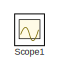
[diagram: root canvas - part 1/7, top left region]
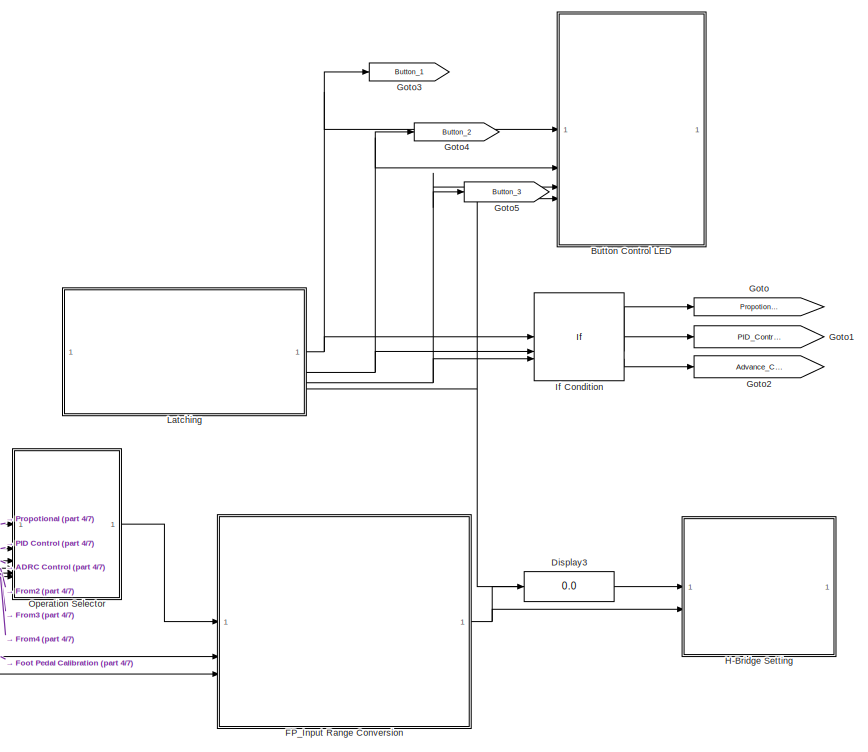
[diagram: root canvas - part 2/7, top center region]
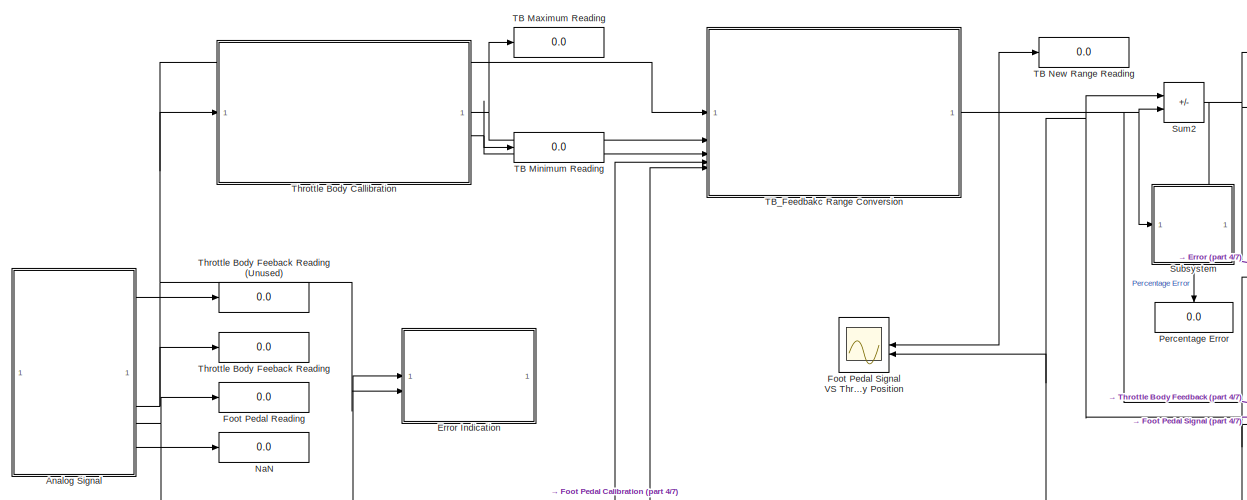
[diagram: root canvas - part 3/7, top left region]
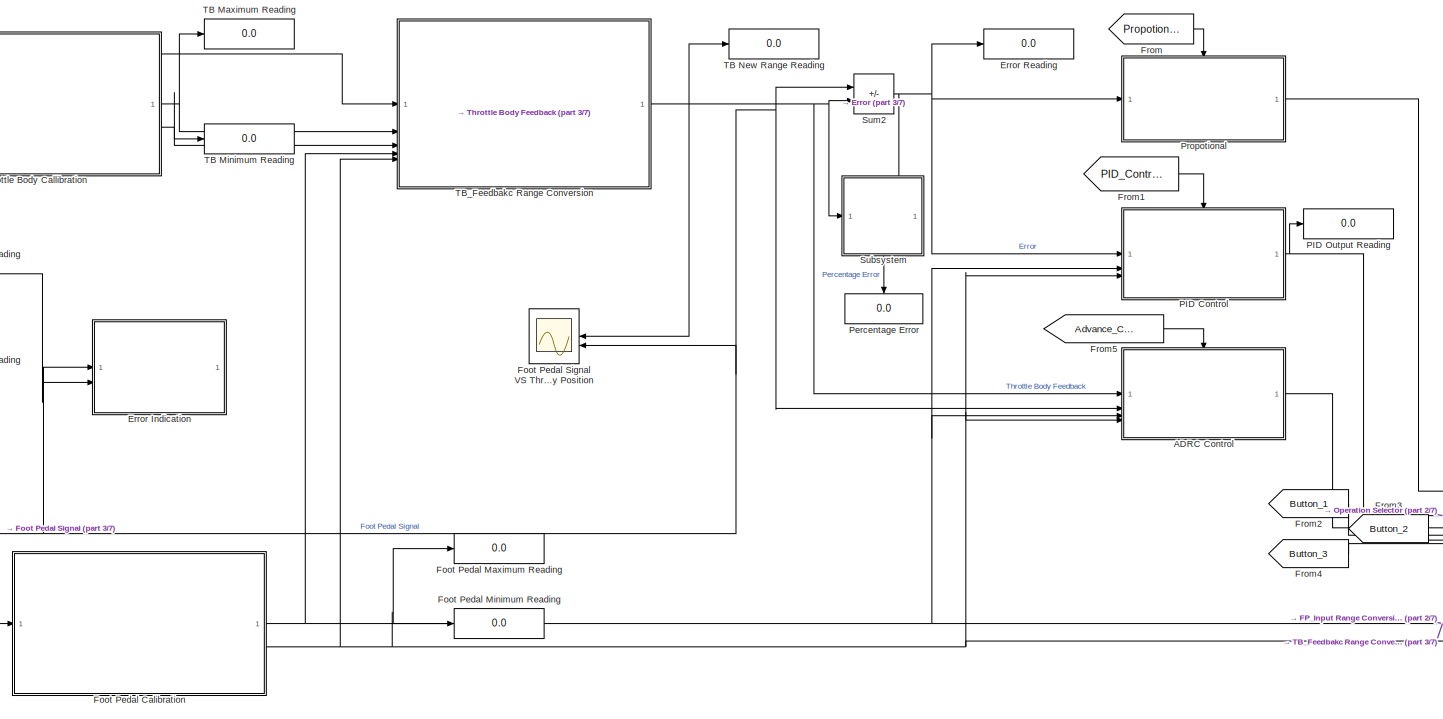
[diagram: root canvas - part 4/7, top center region]
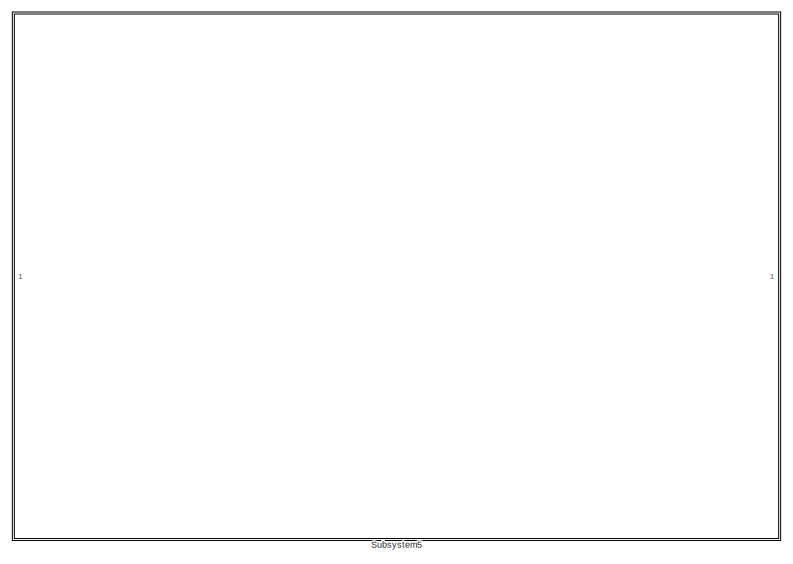
[diagram: root canvas - part 5/7, top right region]
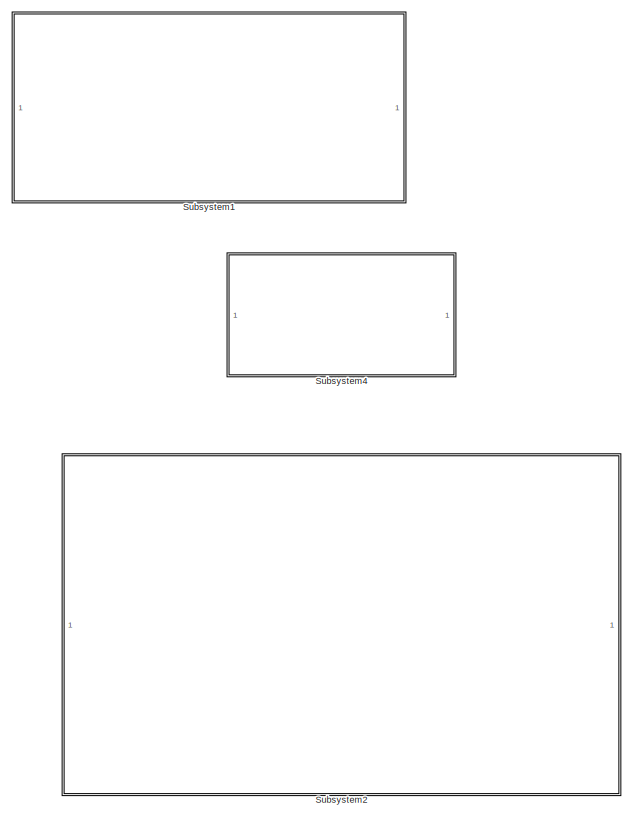
[diagram: root canvas - part 6/7, bottom center region]
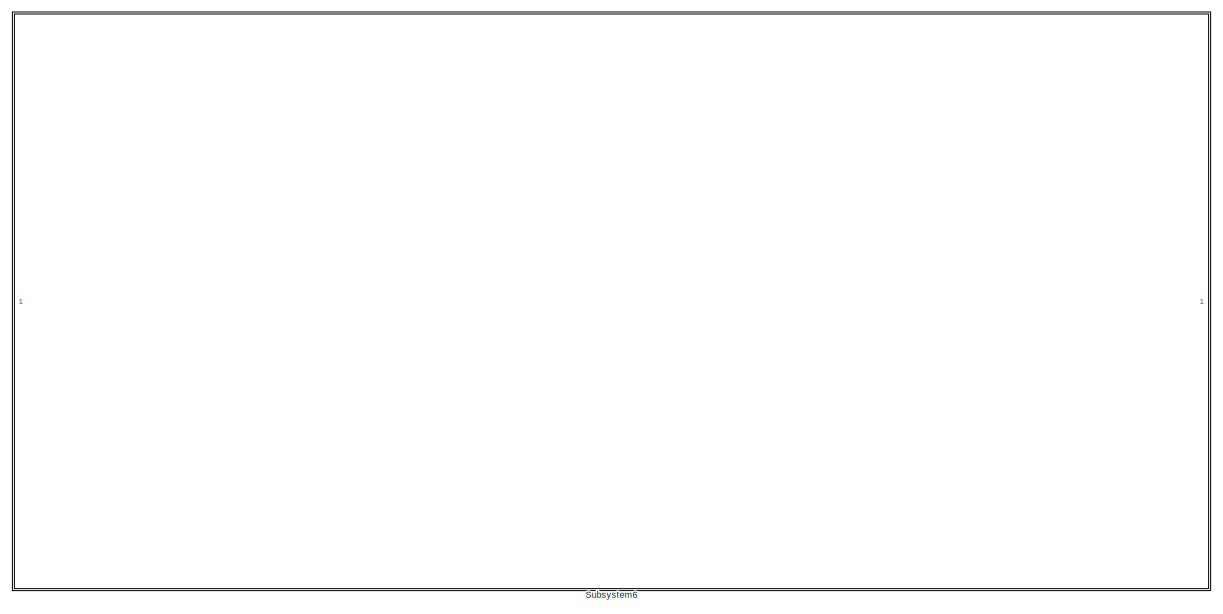
[diagram: root canvas - part 7/7, bottom left region]
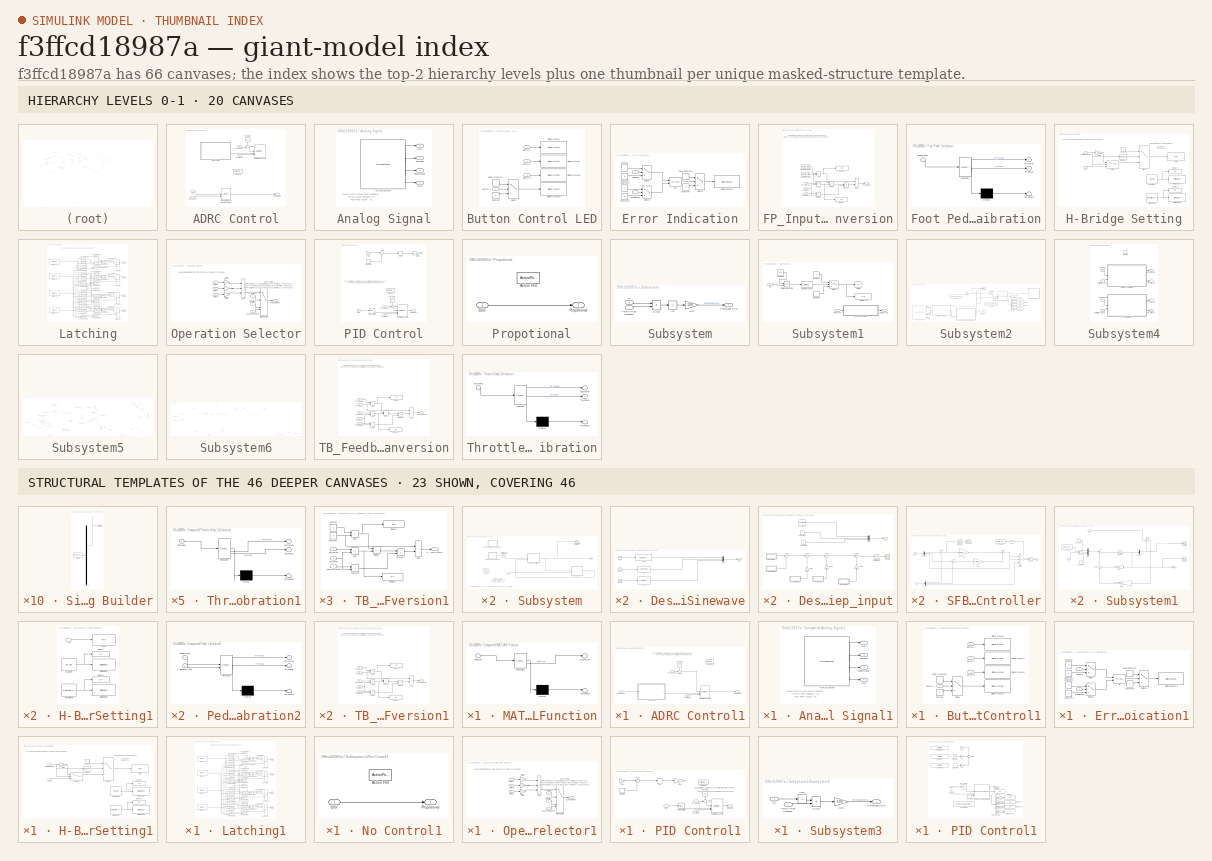
[diagram: thumbnail index - top-2 hierarchy levels (20 canvases) + 23 structural-template representatives of the remaining 46 canvases]
MODEL slx_f3ffcd18987a
KIND model
CONFIG AbsTol = auto
CONFIG EnableMultiTasking = off
CONFIG FixedStep = 0.01
CONFIG MaxStep = auto
CONFIG MinStep = auto
CONFIG RelTol = 1e-5
CONFIG SampleTimeConstraint = Unconstrained
CONFIG SolverName = ode1
CONFIG StartTime = 0.0
CONFIG StopTime = inf
BLOCK [SubSystem] ADRC Control
  Commented = on
BLOCK [Outport] ADRC Control/ADRC Output
BLOCK [ActionPort] ADRC Control/Action Port
  ActionPortLabel = elseif( u3 == 1)
BLOCK [Reference] ADRC Control/Active Disturbance Rejection Control  REF=slctrl_adaptive/Active Disturbance Rejection Control
  Commented = on
  LibrarySourceBlock = slctrlblks/Adaptive Control/Active Disturbance Rejection Control
  SourceBlock = slctrl_adaptive/Active Disturbance Rejection Control
  SourceType = Active Disturbance Rejection Control (ADRC)
BLOCK [Constant] ADRC Control/Constant
  Commented = on
  NameLocation = left
  Value = 0.01
BLOCK [Inport] ADRC Control/FP_maxVal
  Port = 3
BLOCK [Inport] ADRC Control/FP_minVal
  Port = 4
BLOCK [Inport] ADRC Control/Feedback
BLOCK [Inport] ADRC Control/In2
  Port = 2
BLOCK [Reference] ADRC Control/Saturation Dynamic  REF=simulink/Discontinuities/Saturation
Dynamic
  Commented = on
  SourceBlock = simulink/Discontinuities/Saturation\nDynamic
  SourceType = Saturation Dynamic
BLOCK [SubSystem] ADRC Control/Subsystem
  Commented = on
BLOCK [Scope] ADRC Control/Subsystem/Contro_input (Voltages)
  Floating = off
  NumInputPorts = 1
  ScopeSpecificationString = Simulink.scopes.TimeScopeBlockCfg('CurrentConfiguration', extmgr.ConfigurationSet(extmgr.Configuration('Core','General UI',true),extmgr.Configuration('Core','Source UI',true),extmgr.Configuration('Sources','WiredSimulink',true,'DataLogging',true,'DataLoggingVariableName','Scope_V_ADRC','DataLoggingSaveFormat','StructureWithTime','DataLoggingDecimation','1','DataLoggingDecimateData',true),extmgr.Co...<+898ch>
BLOCK [Reference] ADRC Control/Subsystem/Degrees to Radians1  REF=simulink_extras/Transformations/Degrees to
Radians
  SourceBlock = simulink_extras/Transformations/Degrees to\nRadians
  SourceType = DegreesToRadians
BLOCK [SubSystem] ADRC Control/Subsystem/Desired signals_Sinewave
BLOCK [Clock] ADRC Control/Subsystem/Desired signals_Sinewave/Clock
  DisplayTime = on
BLOCK [Clock] ADRC Control/Subsystem/Desired signals_Sinewave/Clock1
BLOCK [Clock] ADRC Control/Subsystem/Desired signals_Sinewave/Clock2
BLOCK [Fcn] ADRC Control/Subsystem/Desired signals_Sinewave/Fcn1
  Expr = 10*sin(2*u)+10+7
BLOCK [Fcn] ADRC Control/Subsystem/Desired signals_Sinewave/Fcn2
  Expr = 10*2*cos(2*u)
BLOCK [Fcn] ADRC Control/Subsystem/Desired signals_Sinewave/Fcn3
  Expr = -10*2*2*sin(2*u)
BLOCK [Mux] ADRC Control/Subsystem/Desired signals_Sinewave/Mux
  DisplayOption = bar
  Inputs = 3
BLOCK [Outport] ADRC Control/Subsystem/Desired signals_Sinewave/xi_d
BLOCK [SubSystem] ADRC Control/Subsystem/Desired_Reference_step_input
BLOCK [Constant] ADRC Control/Subsystem/Desired_Reference_step_input/Constant
  Value = 45*pi/180
BLOCK [Constant] ADRC Control/Subsystem/Desired_Reference_step_input/Constant1
  Value = 0
BLOCK [Constant] ADRC Control/Subsystem/Desired_Reference_step_input/Constant2
  Value = 0
BLOCK [Gain] ADRC Control/Subsystem/Desired_Reference_step_input/Gain
  Gain = -1
  NameLocation = right
BLOCK [Gain] ADRC Control/Subsystem/Desired_Reference_step_input/Gain1
  Gain = -1
  NameLocation = right
BLOCK [Gain] ADRC Control/Subsystem/Desired_Reference_step_input/Gain2
  NameLocation = right
BLOCK [Mux] ADRC Control/Subsystem/Desired_Reference_step_input/Mux
  DisplayOption = bar
  Inputs = 3
BLOCK [Reference] ADRC Control/Subsystem/Desired_Reference_step_input/Radians to Degrees2  REF=simulink_extras/Transformations/Radians
to Degrees
  SourceBlock = simulink_extras/Transformations/Radians\nto Degrees
  SourceType = RadiansToDegrees
BLOCK [Scope] ADRC Control/Subsystem/Desired_Reference_step_input/Scope
  Floating = off
  NumInputPorts = 1
  ScopeSpecificationString = C++SS(StrPVP('Location','[10, 60, 1376, 738]'),StrPVP('Open','off'),MxPVP('AxesTitles',54,'struct(''axes1'',''%<SignalLabel>'')'),MxPVP('ScopeGraphics',57,'struct(''FigureColor'',''[0.5 0.5 0.5]'',''AxesColor'',''[0 0 0]'',''AxesTickColor'',''[1 1 1]'',''LineColors'',''[1 1 0;1 0 1;0 1 1;1 0 0;0 1 0;0 0 1]'',''LineStyles'',''-|-|-|-|-|-'',''LineWidths'',''[0.5 0.5 0.5 0.5 0.5 0.5]'',''MarkerStyles...<+275ch>
BLOCK [SubSystem] ADRC Control/Subsystem/Desired_Reference_step_input/Signal Builder
  ClipboardFcn = sigbuilder_block('clipboard');
  CloseFcn = sigbuilder_block('close');
  ContinueFcn = sigbuilder_block('continue')
  CopyFcn = sigbuilder_block('copy');
  DeleteFcn = sigbuilder_block('delete');
  LoadFcn = sigbuilder_block('load');
  MaskHideContents = on
  ModelCloseFcn = sigbuilder_block('modelClose');
  NameChangeFcn = sigbuilder_block('namechange');
  OpenFcn = sigbuilder_block('open',[437.25 117.75 550.5 394.5 ]);
  PauseFcn = sigbuilder_block('pause')
  PreSaveFcn = sigbuilder_block('preSave');
  StartFcn = sigbuilder_block('start');
  StopFcn = sigbuilder_block('stop');
  Tag = STV Subsys
BLOCK [Demux] ADRC Control/Subsystem/Desired_Reference_step_input/Signal Builder/Demux
  DisplayOption = none
  Outputs = 1
  Tag = STV Demux
BLOCK [FromWorkspace] ADRC Control/Subsystem/Desired_Reference_step_input/Signal Builder/FromWs
  Tag = STV FromWs
  VariableName = tuvar
BLOCK [Outport] ADRC Control/Subsystem/Desired_Reference_step_input/Signal Builder/Signal 1
  Tag = STV Outport
BLOCK [SubSystem] ADRC Control/Subsystem/Desired_Reference_step_input/Signal Builder1
  ClipboardFcn = sigbuilder_block('clipboard');
  CloseFcn = sigbuilder_block('close');
  ContinueFcn = sigbuilder_block('continue')
  CopyFcn = sigbuilder_block('copy');
  DeleteFcn = sigbuilder_block('delete');
  LoadFcn = sigbuilder_block('load');
  MaskHideContents = on
  ModelCloseFcn = sigbuilder_block('modelClose');
  NameChangeFcn = sigbuilder_block('namechange');
  OpenFcn = sigbuilder_block('open',[153 72 550.2 394.8 ]);
  PauseFcn = sigbuilder_block('pause')
  PreSaveFcn = sigbuilder_block('preSave');
  StartFcn = sigbuilder_block('start');
  StopFcn = sigbuilder_block('stop');
  Tag = STV Subsys
BLOCK [Demux] ADRC Control/Subsystem/Desired_Reference_step_input/Signal Builder1/Demux
  DisplayOption = none
  Outputs = 1
  Tag = STV Demux
BLOCK [FromWorkspace] ADRC Control/Subsystem/Desired_Reference_step_input/Signal Builder1/FromWs
  Tag = STV FromWs
  VariableName = tuvar
BLOCK [Outport] ADRC Control/Subsystem/Desired_Reference_step_input/Signal Builder1/Signal 1
  Tag = STV Outport
BLOCK [SubSystem] ADRC Control/Subsystem/Desired_Reference_step_input/Signal Builder2
  ClipboardFcn = sigbuilder_block('clipboard');
  CloseFcn = sigbuilder_block('close');
  ContinueFcn = sigbuilder_block('continue')
  CopyFcn = sigbuilder_block('copy');
  DeleteFcn = sigbuilder_block('delete');
  LoadFcn = sigbuilder_block('load');
  MaskHideContents = on
  ModelCloseFcn = sigbuilder_block('modelClose');
  NameChangeFcn = sigbuilder_block('namechange');
  OpenFcn = sigbuilder_block('open',[437.25 117.75 550.5 394.5 ]);
  PauseFcn = sigbuilder_block('pause')
  PreSaveFcn = sigbuilder_block('preSave');
  StartFcn = sigbuilder_block('start');
  StopFcn = sigbuilder_block('stop');
  Tag = STV Subsys
BLOCK [Demux] ADRC Control/Subsystem/Desired_Reference_step_input/Signal Builder2/Demux
  DisplayOption = none
  Outputs = 1
  Tag = STV Demux
BLOCK [FromWorkspace] ADRC Control/Subsystem/Desired_Reference_step_input/Signal Builder2/FromWs
  Tag = STV FromWs
  VariableName = tuvar
BLOCK [Outport] ADRC Control/Subsystem/Desired_Reference_step_input/Signal Builder2/Signal 1
  Tag = STV Outport
BLOCK [SubSystem] ADRC Control/Subsystem/Desired_Reference_step_input/Signal Builder3
  ClipboardFcn = sigbuilder_block('clipboard');
  CloseFcn = sigbuilder_block('close');
  ContinueFcn = sigbuilder_block('continue')
  CopyFcn = sigbuilder_block('copy');
  DeleteFcn = sigbuilder_block('delete');
  LoadFcn = sigbuilder_block('load');
  MaskHideContents = on
  ModelCloseFcn = sigbuilder_block('modelClose');
  NameChangeFcn = sigbuilder_block('namechange');
  OpenFcn = sigbuilder_block('open',[437.25 117.75 550.5 394.5 ]);
  PauseFcn = sigbuilder_block('pause')
  PreSaveFcn = sigbuilder_block('preSave');
  StartFcn = sigbuilder_block('start');
  StopFcn = sigbuilder_block('stop');
  Tag = STV Subsys
BLOCK [Demux] ADRC Control/Subsystem/Desired_Reference_step_input/Signal Builder3/Demux
  DisplayOption = none
  Outputs = 1
  Tag = STV Demux
BLOCK [FromWorkspace] ADRC Control/Subsystem/Desired_Reference_step_input/Signal Builder3/FromWs
  Tag = STV FromWs
  VariableName = tuvar
BLOCK [Outport] ADRC Control/Subsystem/Desired_Reference_step_input/Signal Builder3/Signal 1
  Tag = STV Outport
BLOCK [SubSystem] ADRC Control/Subsystem/Desired_Reference_step_input/Signal Builder4
  ClipboardFcn = sigbuilder_block('clipboard');
  CloseFcn = sigbuilder_block('close');
  ContinueFcn = sigbuilder_block('continue')
  CopyFcn = sigbuilder_block('copy');
  DeleteFcn = sigbuilder_block('delete');
  LoadFcn = sigbuilder_block('load');
  MaskHideContents = on
  ModelCloseFcn = sigbuilder_block('modelClose');
  NameChangeFcn = sigbuilder_block('namechange');
  OpenFcn = sigbuilder_block('open',[437.25 117.75 550.5 394.5 ]);
  PauseFcn = sigbuilder_block('pause')
  PreSaveFcn = sigbuilder_block('preSave');
  StartFcn = sigbuilder_block('start');
  StopFcn = sigbuilder_block('stop');
  Tag = STV Subsys
BLOCK [Demux] ADRC Control/Subsystem/Desired_Reference_step_input/Signal Builder4/Demux
  DisplayOption = none
  Outputs = 1
  Tag = STV Demux
BLOCK [FromWorkspace] ADRC Control/Subsystem/Desired_Reference_step_input/Signal Builder4/FromWs
  Tag = STV FromWs
  VariableName = tuvar
BLOCK [Outport] ADRC Control/Subsystem/Desired_Reference_step_input/Signal Builder4/Signal 1
  Tag = STV Outport
BLOCK [Sum] ADRC Control/Subsystem/Desired_Reference_step_input/Sum2
  Inputs = |++
BLOCK [Sum] ADRC Control/Subsystem/Desired_Reference_step_input/Sum3
  Inputs = |++
BLOCK [Sum] ADRC Control/Subsystem/Desired_Reference_step_input/Sum4
  Inputs = |++
BLOCK [Sum] ADRC Control/Subsystem/Desired_Reference_step_input/Sum5
  Inputs = |+-
BLOCK [Outport] ADRC Control/Subsystem/Desired_Reference_step_input/xi_d
BLOCK [SubSystem] ADRC Control/Subsystem/SFBC_Controller
BLOCK [Constant] ADRC Control/Subsystem/SFBC_Controller/Constant2
  Value = roa/J_aet
BLOCK [Demux] ADRC Control/Subsystem/SFBC_Controller/Demux
  Outputs = 3
BLOCK [Demux] ADRC Control/Subsystem/SFBC_Controller/Demux1
  Outputs = 3
BLOCK [Fcn] ADRC Control/Subsystem/SFBC_Controller/Fcn
  Expr = 1/u
BLOCK [Gain] ADRC Control/Subsystem/SFBC_Controller/Gain
  Gain = (omga_c)^2
BLOCK [Gain] ADRC Control/Subsystem/SFBC_Controller/Gain1
  Gain = (2*(omga_c))
BLOCK [Product] ADRC Control/Subsystem/SFBC_Controller/Product
  RndMeth = Zero
BLOCK [Reference] ADRC Control/Subsystem/SFBC_Controller/Radians to Degrees4  REF=simulink_extras/Transformations/Radians
to Degrees
  NameLocation = top
  SourceBlock = simulink_extras/Transformations/Radians\nto Degrees
  SourceType = RadiansToDegrees
BLOCK [Sum] ADRC Control/Subsystem/SFBC_Controller/Sum1
  Inputs = |++
BLOCK [Sum] ADRC Control/Subsystem/SFBC_Controller/Sum2
  IconShape = rectangular
  Inputs = |++-
BLOCK [Sum] ADRC Control/Subsystem/SFBC_Controller/Sum3
  Inputs = |+-
BLOCK [Sum] ADRC Control/Subsystem/SFBC_Controller/Sum4
  Inputs = |+-
BLOCK [Scope] ADRC Control/Subsystem/SFBC_Controller/Tracking erro
  Floating = off
  NumInputPorts = 1
  ScopeSpecificationString = C++SS(StrPVP('Location','[188, 390, 512, 629]'),StrPVP('Open','off'),MxPVP('AxesTitles',54,'struct(''axes1'',''%<SignalLabel>'')'),MxPVP('ScopeGraphics',57,'struct(''FigureColor'',''[0.5 0.5 0.5]'',''AxesColor'',''[0 0 0]'',''AxesTickColor'',''[1 1 1]'',''LineColors'',''[1 1 0;1 0 1;0 1 1;1 0 0;0 1 0;0 0 1]'',''LineStyles'',''-|-|-|-|-|-'',''LineWidths'',''[0.5 0.5 0.5 0.5 0.5 0.5]'',''MarkerStyle...<+277ch>
BLOCK [Outport] ADRC Control/Subsystem/SFBC_Controller/V(t)
BLOCK [Inport] ADRC Control/Subsystem/SFBC_Controller/Xd_i
BLOCK [Inport] ADRC Control/Subsystem/SFBC_Controller/Xi^
  Port = 2
BLOCK [SubSystem] ADRC Control/Subsystem/Subsystem1
  NameLocation = top
BLOCK [Constant] ADRC Control/Subsystem/Subsystem1/Constant
  Value = 0
BLOCK [Constant] ADRC Control/Subsystem/Subsystem1/Constant1
  Value = 0
BLOCK [Constant] ADRC Control/Subsystem/Subsystem1/Constant2
  Value = roa/J_aet
BLOCK [Demux] ADRC Control/Subsystem/Subsystem1/Demux
  Outputs = 3
BLOCK [Gain] ADRC Control/Subsystem/Subsystem1/Gain
  Gain = [0 1 0;0 0 1;0 0 0]
  Multiplication = Matrix(K*u)
  NameLocation = top
BLOCK [Gain] ADRC Control/Subsystem/Subsystem1/Gain2
  Gain = [Beta1 Beta2 Beta3]'
  NameLocation = top
BLOCK [Integrator] ADRC Control/Subsystem/Subsystem1/Integrator1
  InitialCondition = [12*pi/180 0 0]'
BLOCK [Mux] ADRC Control/Subsystem/Subsystem1/Mux
  DisplayOption = bar
  Inputs = 3
BLOCK [Product] ADRC Control/Subsystem/Subsystem1/Product
  RndMeth = Zero
BLOCK [Scope] ADRC Control/Subsystem/Subsystem1/Scope
  Floating = off
  NumInputPorts = 1
  ScopeSpecificationString = C++SS(StrPVP('Location','[188, 390, 512, 629]'),StrPVP('Open','off'),MxPVP('AxesTitles',54,'struct(''axes1'',''%<SignalLabel>'')'),StrPVP('SaveName','ScopeData3'),StrPVP('DataFormat','StructureWithTime'),StrPVP('BlockParamSampleTime','0'),StrPVP('LimitDataPoints','on'),StrPVP('Decimation','1'),StrPVP('BlockParamSampleInput','off'))
BLOCK [Scope] ADRC Control/Subsystem/Subsystem1/Scope1
  Floating = off
  NumInputPorts = 1
  ScopeSpecificationString = C++SS(StrPVP('Location','[188, 390, 512, 629]'),StrPVP('Open','off'),MxPVP('AxesTitles',54,'struct(''axes1'',''%<SignalLabel>'')'),MxPVP('ScopeGraphics',57,'struct(''FigureColor'',''[0.5 0.5 0.5]'',''AxesColor'',''[0 0 0]'',''AxesTickColor'',''[1 1 1]'',''LineColors'',''[1 1 0;1 0 1;0 1 1;1 0 0;0 1 0;0 0 1]'',''LineStyles'',''-|-|-|-|-|-'',''LineWidths'',''[0.5 0.5 0.5 0.5 0.5 0.5]'',''MarkerStyle...<+243ch>
BLOCK [Sum] ADRC Control/Subsystem/Subsystem1/Sum
  Inputs = |++
BLOCK [Sum] ADRC Control/Subsystem/Subsystem1/Sum1
  Inputs = |++
  NameLocation = right
BLOCK [Sum] ADRC Control/Subsystem/Subsystem1/Sum2
  Inputs = |+-
BLOCK [Inport] ADRC Control/Subsystem/Subsystem1/U(t)
BLOCK [Inport] ADRC Control/Subsystem/Subsystem1/X1(t)
  Port = 2
BLOCK [Outport] ADRC Control/Subsystem/Subsystem1/Xi^
BLOCK [Outport] ADRC Control/Subsystem/V(t)
BLOCK [Inport] ADRC Control/Subsystem/X1(t)
BLOCK [Sum] ADRC Control/Sum1
  Commented = on
  Inputs = ++|
BLOCK [SubSystem] Analog Signal
BLOCK [MATLABSystem] Analog Signal/MATLAB System
  MaskDisplay = color('white');plot([100,100,100,100]*1,[100,100,100,100]*1);plot([100,100,100,100]*0,[100,100,100,100]*0);color('blue');text(38, 92, 'IO Device Builder','horizontalAlignment', 'right');\ncolor('black');text(52,50,' ADS1115_Vread','horizontalAlignment','center');\nport_label('output',1,'V0');port_label('output',2,'V1');port_label('output',3,'V2');port_label('output',4,'V3');  <repeated x4 — deduplicated; at blocks: MATLAB System, MATLAB System1, MATLAB System2>
  MaskType = ADS1115_Vread
  SampleTime = -1
  SetGain = int16( 16 )
  System = ADS1115_Vread
BLOCK [Outport] Analog Signal/Out1
BLOCK [Outport] Analog Signal/Out4
  Port = 4
BLOCK [Outport] Analog Signal/PedalRange
  Port = 3
BLOCK [Outport] Analog Signal/TBRange
  Port = 2
BLOCK [SubSystem] Button Control LED
BLOCK [Inport] Button Control LED/Bottun 2
  Port = 2
BLOCK [Inport] Button Control LED/Button 1
BLOCK [Inport] Button Control LED/Button 3
  Port = 3
BLOCK [Inport] Button Control LED/Button 4
  Port = 4
BLOCK [Constant] Button Control LED/Constant
  Value = 0
BLOCK [Reference] Button Control LED/Digital Output  REF=arduinolib/Digital Output
  SourceBlock = arduinolib/Digital Output
  SourceType = Arduino Digital Output
BLOCK [Reference] Button Control LED/Digital Output1  REF=arduinolib/Digital Output
  SourceBlock = arduinolib/Digital Output
  SourceType = Arduino Digital Output
BLOCK [Reference] Button Control LED/Digital Output2  REF=arduinolib/Digital Output
  SourceBlock = arduinolib/Digital Output
  SourceType = Arduino Digital Output
BLOCK [Reference] Button Control LED/Digital Output3  REF=arduinolib/Digital Output
  SourceBlock = arduinolib/Digital Output
  SourceType = Arduino Digital Output
BLOCK [DiscretePulseGenerator] Button Control LED/Pulse Generator
  Period = 0.5
  PulseType = Time based
  PulseWidth = 50
BLOCK [Switch] Button Control LED/Switch
  Criteria = u2 ~= 0
  InputSameDT = off
  SaturateOnIntegerOverflow = off
BLOCK [Display] Display3
  Decimation = 2
BLOCK [SubSystem] Error Indication
  PortSchema = {"entries":[{"content":{"sides":[{"content":{},"type":"ConnectorPlacement.EquallySpacedRectSide","uuid":"6bb27259-0fc4-412b-bd28-187413250838"},{"content":{"connectorIds":["In1","In2"],"side":"RIGHT"},"type":"ConnectorPlacement.EquallySpacedRectSide","uuid":"b38a583a-7cdb-4b72-8a0e-445370b0f03f"},{"content":{"side":"TOP"},"type":"ConnectorPlacement.EquallySpacedRectSide","uuid":"477ad40e-8e68-4653...<+205ch>
BLOCK [Constant] Error Indication/Constant
BLOCK [Constant] Error Indication/Constant1
  Value = 0
BLOCK [Constant] Error Indication/Constant2
BLOCK [Constant] Error Indication/Constant3
  Value = 0
BLOCK [Constant] Error Indication/Constant4
  Value = 0
BLOCK [Reference] Error Indication/Digital Output4  REF=arduinolib/Digital Output
  SourceBlock = arduinolib/Digital Output
  SourceType = Arduino Digital Output
BLOCK [Logic] Error Indication/OR
  AllPortsSameDT = off
  IconShape = distinctive
  Operator = NAND
  OutDataTypeStr = boolean
BLOCK [Inport] Error Indication/PedalRange
BLOCK [DiscretePulseGenerator] Error Indication/Pulse Generator
  Period = 0.1
  PulseType = Time based
  PulseWidth = 50
BLOCK [Switch] Error Indication/Switch
  Criteria = u2 > Threshold
  InputSameDT = off
  SaturateOnIntegerOverflow = off
BLOCK [Switch] Error Indication/Switch2
  Criteria = u2 > Threshold
  InputSameDT = off
  SaturateOnIntegerOverflow = off
BLOCK [Switch] Error Indication/Switch3
  Criteria = u2 > Threshold
  InputSameDT = off
  SaturateOnIntegerOverflow = off
BLOCK [Inport] Error Indication/TBRange
  Port = 2
BLOCK [Display] Error Reading
  Decimation = 2
BLOCK [SubSystem] FP_Input Range Conversion
BLOCK [Outport] FP_Input Range Conversion/0 - 255 Output
BLOCK [Sum] FP_Input Range Conversion/Add2
  IconShape = rectangular
  Inputs = +-
BLOCK [Sum] FP_Input Range Conversion/Add3
  IconShape = rectangular
  Inputs = +-
BLOCK [Inport] FP_Input Range Conversion/Control Output
BLOCK [Constant] FP_Input Range Conversion/Desire Max Value
  Value = Desire_Max
BLOCK [Constant] FP_Input Range Conversion/Desire Min Value
  Value = Desire_Min
BLOCK [Display] FP_Input Range Conversion/Display1
  Decimation = 1
BLOCK [Display] FP_Input Range Conversion/Display3
  Decimation = 1
BLOCK [Product] FP_Input Range Conversion/Divide1
  Inputs = */
BLOCK [Inport] FP_Input Range Conversion/FP_maxVal
  Port = 2
BLOCK [Inport] FP_Input Range Conversion/FP_minVal
  Port = 3
BLOCK [Product] FP_Input Range Conversion/Product1
BLOCK [Sum] FP_Input Range Conversion/Subtract
  IconShape = rectangular
  Inputs = +-
BLOCK [Sum] FP_Input Range Conversion/Sum
  IconShape = rectangular
BLOCK [SubSystem] Foot Pedal Calibration
  ErrorFcn = Stateflow.Translate.translate
  PermitHierarchicalResolution = ExplicitOnly
  SFBlockType = MATLAB Function
  TreatAsAtomicUnit = on
BLOCK [Demux] Foot Pedal Calibration/ Demux 
  Outputs = 1
BLOCK [S-Function] Foot Pedal Calibration/ SFunction 
  EnableBusSupport = on
  FunctionName = sf_sfun
  PortCounts = [1 3]
  SFcnIsStateOwnerBlock = off
  SFunctionDeploymentMode = off
  Tag = Stateflow S-Function 9
BLOCK [Terminator] Foot Pedal Calibration/ Terminator 
BLOCK [Outport] Foot Pedal Calibration/FP_maxVal
BLOCK [Outport] Foot Pedal Calibration/FP_minVal
  Port = 2
BLOCK [Inport] Foot Pedal Calibration/PedalRange
BLOCK [Display] Foot Pedal Maximum Reading
  Decimation = 2
BLOCK [Display] Foot Pedal Minimum Reading
  Decimation = 2
BLOCK [Display] Foot Pedal Reading
  Decimation = 2
BLOCK [Scope] Foot Pedal Signal VS Throttle Body Position
  Floating = off
  NameLocation = top
  NumInputPorts = 2
  ScopeSpecificationString = Simulink.scopes.TimeScopeBlockCfg('CurrentConfiguration', extmgr.ConfigurationSet(extmgr.Configuration('Core','General UI',true),extmgr.Configuration('Core','Source UI',true),extmgr.Configuration('Sources','WiredSimulink',true,'DataLoggingVariableName','ScopeData1'),extmgr.Configuration('Visuals','Time Domain',true,'SerializedDisplays',{struct('MinYLimReal','0.01441','MaxYLimReal','0.23215','YLabe...<+1911ch>
BLOCK [From] From
  GotoTag = Propotional
BLOCK [From] From1
  GotoTag = PID_Control
BLOCK [From] From2
  GotoTag = Button_1
BLOCK [From] From3
  GotoTag = Button_2
BLOCK [From] From4
  GotoTag = Button_3
BLOCK [From] From5
  GotoTag = Advance_Control
BLOCK [Goto] Goto
  GotoTag = Propotional
BLOCK [Goto] Goto1
  GotoTag = PID_Control
BLOCK [Goto] Goto2
  GotoTag = Advance_Control
BLOCK [Goto] Goto3
  GotoTag = Button_1
BLOCK [Goto] Goto4
  GotoTag = Button_2
BLOCK [Goto] Goto5
  GotoTag = Button_3
BLOCK [SubSystem] H-Bridge Setting
BLOCK [Inport] H-Bridge Setting/0 - 255
  Port = 2
BLOCK [Inport] H-Bridge Setting/Calibration Mode
BLOCK [Constant] H-Bridge Setting/Constant
  Value = 0
BLOCK [Reference] H-Bridge Setting/Digital Output  REF=arduinolib/Digital Output
  SourceBlock = arduinolib/Digital Output
  SourceType = Arduino Digital Output
BLOCK [Reference] H-Bridge Setting/Digital Output1  REF=arduinolib/Digital Output
  SourceBlock = arduinolib/Digital Output
  SourceType = Arduino Digital Output
BLOCK [Constant] H-Bridge Setting/Direction Pin
  Value = Direction_Pin
BLOCK [Display] H-Bridge Setting/Display3
  Decimation = 1
BLOCK [Display] H-Bridge Setting/Display4
  Decimation = 1
BLOCK [Constant] H-Bridge Setting/Enable Pin
  Value = EN_Pin
BLOCK [Gain] H-Bridge Setting/Gain
  Gain = 100
BLOCK [Reference] H-Bridge Setting/On Delay  REF=spsOnDelayLib/On Delay
  LibrarySourceBlock = sps_lib/Control/On Delay
  SourceBlock = spsOnDelayLib/On Delay
  SourceType = On/Off Delay
BLOCK [Reference] H-Bridge Setting/PWM  REF=arduinolib/PWM
  SourceBlock = arduinolib/PWM
  SourceType = Arduino PWM
BLOCK [Switch] H-Bridge Setting/Switch1
  Criteria = u2 ~= 0
  InputSameDT = off
  SaturateOnIntegerOverflow = off
BLOCK [Switch] H-Bridge Setting/Switch2
  Criteria = u2 ~= 0
  InputSameDT = off
  SaturateOnIntegerOverflow = off
BLOCK [If] If Condition
  ElseIfExpressions = u2 == 1, u3 == 1
  IfExpression = u1 == 1
  NumInputs = 3
  ShowElse = off
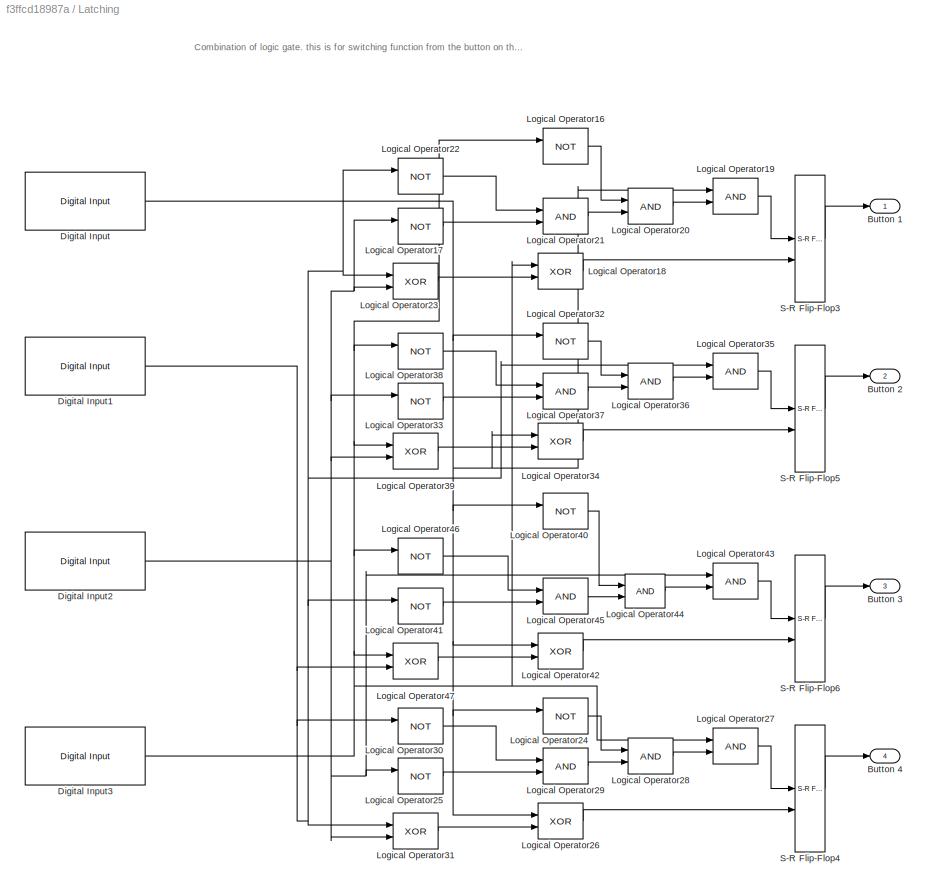
BLOCK [SubSystem] Latching
BLOCK [Outport] Latching/Button 1
BLOCK [Outport] Latching/Button 2
  Port = 2
BLOCK [Outport] Latching/Button 3
  Port = 3
BLOCK [Outport] Latching/Button 4
  Port = 4
BLOCK [Reference] Latching/Digital Input  REF=arduinolib/Digital Input
  SourceBlock = arduinolib/Digital Input
  SourceType = Arduino Digital Input
BLOCK [Reference] Latching/Digital Input1  REF=arduinolib/Digital Input
  SourceBlock = arduinolib/Digital Input
  SourceType = Arduino Digital Input
BLOCK [Reference] Latching/Digital Input2  REF=arduinolib/Digital Input
  SourceBlock = arduinolib/Digital Input
  SourceType = Arduino Digital Input
BLOCK [Reference] Latching/Digital Input3  REF=arduinolib/Digital Input
  SourceBlock = arduinolib/Digital Input
  SourceType = Arduino Digital Input
BLOCK [Logic] Latching/Logical Operator16
  AllPortsSameDT = off
  IconShape = distinctive
  Operator = NOT
  OutDataTypeStr = boolean
BLOCK [Logic] Latching/Logical Operator17
  AllPortsSameDT = off
  IconShape = distinctive
  Operator = NOT
  OutDataTypeStr = boolean
BLOCK [Logic] Latching/Logical Operator18
  AllPortsSameDT = off
  IconShape = distinctive
  Operator = XOR
  OutDataTypeStr = boolean
BLOCK [Logic] Latching/Logical Operator19
  AllPortsSameDT = off
  IconShape = distinctive
  OutDataTypeStr = boolean
BLOCK [Logic] Latching/Logical Operator20
  AllPortsSameDT = off
  IconShape = distinctive
  OutDataTypeStr = boolean
BLOCK [Logic] Latching/Logical Operator21
  AllPortsSameDT = off
  IconShape = distinctive
  OutDataTypeStr = boolean
BLOCK [Logic] Latching/Logical Operator22
  AllPortsSameDT = off
  IconShape = distinctive
  Operator = NOT
  OutDataTypeStr = boolean
BLOCK [Logic] Latching/Logical Operator23
  AllPortsSameDT = off
  IconShape = distinctive
  Operator = XOR
  OutDataTypeStr = boolean
BLOCK [Logic] Latching/Logical Operator24
  AllPortsSameDT = off
  IconShape = distinctive
  Operator = NOT
  OutDataTypeStr = boolean
BLOCK [Logic] Latching/Logical Operator25
  AllPortsSameDT = off
  IconShape = distinctive
  Operator = NOT
  OutDataTypeStr = boolean
BLOCK [Logic] Latching/Logical Operator26
  AllPortsSameDT = off
  IconShape = distinctive
  Operator = XOR
  OutDataTypeStr = boolean
BLOCK [Logic] Latching/Logical Operator27
  AllPortsSameDT = off
  IconShape = distinctive
  OutDataTypeStr = boolean
BLOCK [Logic] Latching/Logical Operator28
  AllPortsSameDT = off
  IconShape = distinctive
  OutDataTypeStr = boolean
BLOCK [Logic] Latching/Logical Operator29
  AllPortsSameDT = off
  IconShape = distinctive
  OutDataTypeStr = boolean
BLOCK [Logic] Latching/Logical Operator30
  AllPortsSameDT = off
  IconShape = distinctive
  Operator = NOT
  OutDataTypeStr = boolean
BLOCK [Logic] Latching/Logical Operator31
  AllPortsSameDT = off
  IconShape = distinctive
  Operator = XOR
  OutDataTypeStr = boolean
BLOCK [Logic] Latching/Logical Operator32
  AllPortsSameDT = off
  IconShape = distinctive
  Operator = NOT
  OutDataTypeStr = boolean
BLOCK [Logic] Latching/Logical Operator33
  AllPortsSameDT = off
  IconShape = distinctive
  Operator = NOT
  OutDataTypeStr = boolean
BLOCK [Logic] Latching/Logical Operator34
  AllPortsSameDT = off
  IconShape = distinctive
  Operator = XOR
  OutDataTypeStr = boolean
BLOCK [Logic] Latching/Logical Operator35
  AllPortsSameDT = off
  IconShape = distinctive
  OutDataTypeStr = boolean
BLOCK [Logic] Latching/Logical Operator36
  AllPortsSameDT = off
  IconShape = distinctive
  OutDataTypeStr = boolean
BLOCK [Logic] Latching/Logical Operator37
  AllPortsSameDT = off
  IconShape = distinctive
  OutDataTypeStr = boolean
BLOCK [Logic] Latching/Logical Operator38
  AllPortsSameDT = off
  IconShape = distinctive
  Operator = NOT
  OutDataTypeStr = boolean
BLOCK [Logic] Latching/Logical Operator39
  AllPortsSameDT = off
  IconShape = distinctive
  Operator = XOR
  OutDataTypeStr = boolean
BLOCK [Logic] Latching/Logical Operator40
  AllPortsSameDT = off
  IconShape = distinctive
  Operator = NOT
  OutDataTypeStr = boolean
BLOCK [Logic] Latching/Logical Operator41
  AllPortsSameDT = off
  IconShape = distinctive
  Operator = NOT
  OutDataTypeStr = boolean
BLOCK [Logic] Latching/Logical Operator42
  AllPortsSameDT = off
  IconShape = distinctive
  Operator = XOR
  OutDataTypeStr = boolean
BLOCK [Logic] Latching/Logical Operator43
  AllPortsSameDT = off
  IconShape = distinctive
  OutDataTypeStr = boolean
BLOCK [Logic] Latching/Logical Operator44
  AllPortsSameDT = off
  IconShape = distinctive
  OutDataTypeStr = boolean
BLOCK [Logic] Latching/Logical Operator45
  AllPortsSameDT = off
  IconShape = distinctive
  OutDataTypeStr = boolean
BLOCK [Logic] Latching/Logical Operator46
  AllPortsSameDT = off
  IconShape = distinctive
  Operator = NOT
  OutDataTypeStr = boolean
BLOCK [Logic] Latching/Logical Operator47
  AllPortsSameDT = off
  IconShape = distinctive
  Operator = XOR
  OutDataTypeStr = boolean
BLOCK [Reference] Latching/S-R Flip-Flop3  REF=simulink_extras/Flip Flops/S-R
Flip-Flop
  SourceBlock = simulink_extras/Flip Flops/S-R\nFlip-Flop
  SourceType = SRFlipFlop
BLOCK [Reference] Latching/S-R Flip-Flop4  REF=simulink_extras/Flip Flops/S-R
Flip-Flop
  SourceBlock = simulink_extras/Flip Flops/S-R\nFlip-Flop
  SourceType = SRFlipFlop
BLOCK [Reference] Latching/S-R Flip-Flop5  REF=simulink_extras/Flip Flops/S-R
Flip-Flop
  SourceBlock = simulink_extras/Flip Flops/S-R\nFlip-Flop
  SourceType = SRFlipFlop
BLOCK [Reference] Latching/S-R Flip-Flop6  REF=simulink_extras/Flip Flops/S-R
Flip-Flop
  SourceBlock = simulink_extras/Flip Flops/S-R\nFlip-Flop
  SourceType = SRFlipFlop
BLOCK [Display] NaN
  Decimation = 2
BLOCK [SubSystem] Operation Selector
BLOCK [Sum] Operation Selector/Add
  IconShape = rectangular
  Inputs = +++
BLOCK [Inport] Operation Selector/Advanced Control
  Port = 3
BLOCK [Outport] Operation Selector/Control Output
BLOCK [Gain] Operation Selector/Multiply
BLOCK [Gain] Operation Selector/Multiply1
  Gain = 2
BLOCK [Gain] Operation Selector/Multiply2
  Gain = 3
BLOCK [MultiPortSwitch] Operation Selector/Multiport Switch
  DiagnosticForDefault = None
  InputSameDT = off
  SaturateOnIntegerOverflow = off
BLOCK [Inport] Operation Selector/PID Output
  Port = 2
BLOCK [Inport] Operation Selector/Propotional
BLOCK [Inport] Operation Selector/Switch 1
  Port = 4
BLOCK [Inport] Operation Selector/Switch 2
  Port = 5
BLOCK [Inport] Operation Selector/Switch 3
  Port = 6
BLOCK [SubSystem] PID Control
BLOCK [ActionPort] PID Control/Action Port
  ActionPortLabel = elseif(u2 == 1)
BLOCK [Constant] PID Control/Constant
  NameLocation = left
  Value = 0.01
BLOCK [Derivative] PID Control/Derivative
  Commented = on
BLOCK [Inport] PID Control/Error
BLOCK [Inport] PID Control/FP_maxVal
  Port = 2
BLOCK [Inport] PID Control/FP_minVal
  Port = 3
BLOCK [Gain] PID Control/Gain
  Commented = on
  Gain = 5
BLOCK [Gain] PID Control/Gain1
  Commented = on
  Gain = 0.1
BLOCK [Reference] PID Control/PID Controller1  REF=slpidlib/PID Controller
  LibrarySourceBlock = simulink/Continuous/PID Controller
  SourceBlock = slpidlib/PID Controller
  SourceType = PID 1dof
BLOCK [Outport] PID Control/PID Output
BLOCK [Reference] PID Control/Saturation Dynamic  REF=simulink/Discontinuities/Saturation
Dynamic
  SourceBlock = simulink/Discontinuities/Saturation\nDynamic
  SourceType = Saturation Dynamic
BLOCK [Signum] PID Control/Sign
  Commented = on
BLOCK [Sum] PID Control/Sum
  Commented = on
  Inputs = |++
BLOCK [Sum] PID Control/Sum1
  Inputs = ++|
BLOCK [Display] PID Output Reading
  Decimation = 2
BLOCK [Display] Percentage Error
  Decimation = 2
BLOCK [SubSystem] Propotional
  TreatAsAtomicUnit = on
BLOCK [ActionPort] Propotional/Action Port
  ActionPortLabel = if(u1 == 1)
BLOCK [Inport] Propotional/Error
BLOCK [Outport] Propotional/Propotional
BLOCK [Scope] Scope1
  Floating = off
  IOType = viewer
  NumInputPorts = 1
  ScopeSpecificationString = Simulink.scopes.TimeScopeBlockCfg('CurrentConfiguration', extmgr.ConfigurationSet(extmgr.Configuration('Core','General UI',true),extmgr.Configuration('Core','Source UI',true),extmgr.Configuration('Sources','WiredSimulink',true,'DataLoggingVariableName','ScopeData2'),extmgr.Configuration('Visuals','Time Domain',true,'SerializedDisplays',{struct('MinYLimReal','-10','MaxYLimReal','10','YLabelReal',''...<+877ch>
BLOCK [SubSystem] Subsystem
  PortSchema = {"entries":[{"content":{"sides":[{"content":{},"type":"ConnectorPlacement.EquallySpacedRectSide","uuid":"06ab9b8c-dc11-4e78-9aea-2a49b899d383"},{"content":{"side":"RIGHT"},"type":"ConnectorPlacement.EquallySpacedRectSide","uuid":"ea81575a-6f3e-44ea-98d6-a15110b05ea2"},{"content":{"connectorIds":["In1","In2"],"side":"TOP"},"type":"ConnectorPlacement.EquallySpacedRectSide","uuid":"b4582e74-93d2-4cba...<+355ch>
BLOCK [Abs] Subsystem/Abs
  SaturateOnIntegerOverflow = off
BLOCK [Product] Subsystem/Divide
  Inputs = */
BLOCK [Gain] Subsystem/Gain
  Gain = 100
BLOCK [Inport] Subsystem/In1
  Port = 2
BLOCK [Outport] Subsystem/Percentage Error
  NameLocation = top
BLOCK [Inport] Subsystem/Throttle Body Feedback
BLOCK [SubSystem] Subsystem1
  Commented = on
BLOCK [Constant] Subsystem1/Constant
  Value = 0
BLOCK [Constant] Subsystem1/Constant1
BLOCK [Constant] Subsystem1/Constant2
  Value = 0.02
BLOCK [Outport] Subsystem1/Desire_Val
BLOCK [Reference] Subsystem1/Detect Increase1  REF=simulink/Logic and Bit
Operations/Detect
Increase
  SourceBlock = simulink/Logic and Bit\nOperations/Detect\nIncrease
  SourceType = Detect Increase
BLOCK [Display] Subsystem1/Display13
  Decimation = 2
BLOCK [Goto] Subsystem1/Goto5
  GotoTag = try
BLOCK [Inport] Subsystem1/In1
BLOCK [SubSystem] Subsystem1/MATLAB Function
  ErrorFcn = Stateflow.Translate.translate
  PermitHierarchicalResolution = ExplicitOnly
  SFBlockType = MATLAB Function
  TreatAsAtomicUnit = on
BLOCK [Demux] Subsystem1/MATLAB Function/ Demux 
  Outputs = 1
BLOCK [S-Function] Subsystem1/MATLAB Function/ SFunction 
  EnableBusSupport = on
  FunctionName = sf_sfun
  PortCounts = [1 2]
  SFcnIsStateOwnerBlock = off
  SFunctionDeploymentMode = off
  Tag = Stateflow S-Function 3
BLOCK [Terminator] Subsystem1/MATLAB Function/ Terminator 
BLOCK [Outport] Subsystem1/MATLAB Function/Desire_Val
BLOCK [Inport] Subsystem1/MATLAB Function/Pedal_Val
BLOCK [Inport] Subsystem1/Pedal_Val
  Port = 2
BLOCK [RelationalOperator] Subsystem1/Relational Operator
  InputSameDT = off
  OutDataTypeStr = boolean
  RndMeth = Simplest
BLOCK [Switch] Subsystem1/Switch
  Criteria = u2 ~= 0
  InputSameDT = off
  SaturateOnIntegerOverflow = off
  Threshold = 1
BLOCK [SubSystem] Subsystem2
  Commented = on
BLOCK [BusSelector] Subsystem2/Bus Selector
  OutputSignals = P,I,D,N
BLOCK [Reference] Subsystem2/Closed-Loop PID Autotuner  REF=slctrl_autotuning/Closed-Loop PID Autotuner
  LibrarySourceBlock = slctrlblks/Autotuning/Closed-Loop PID Autotuner
  SourceBlock = slctrl_autotuning/Closed-Loop PID Autotuner
  SourceType = ClosedLoopOnlinePIDTuner
BLOCK [Constant] Subsystem2/Constant
  Value = 0
BLOCK [Constant] Subsystem2/Constant1
BLOCK [Display] Subsystem2/Display
  Decimation = 1
BLOCK [Display] Subsystem2/Display11
  Decimation = 1
BLOCK [Display] Subsystem2/Display15
  Decimation = 1
BLOCK [Display] Subsystem2/Display16
  Decimation = 1
BLOCK [Display] Subsystem2/Display17
  Decimation = 1
BLOCK [Display] Subsystem2/Display18
  Decimation = 1
BLOCK [SubSystem] Subsystem2/H-Bridge Setting1
BLOCK [Inport] Subsystem2/H-Bridge Setting1/1 - 100
BLOCK [Reference] Subsystem2/H-Bridge Setting1/Digital Output  REF=arduinolib/Digital Output
  SourceBlock = arduinolib/Digital Output
  SourceType = Arduino Digital Output
BLOCK [Reference] Subsystem2/H-Bridge Setting1/Digital Output1  REF=arduinolib/Digital Output
  SourceBlock = arduinolib/Digital Output
  SourceType = Arduino Digital Output
BLOCK [Constant] Subsystem2/H-Bridge Setting1/Direction Pin
  Value = Direction_Pin
BLOCK [Display] Subsystem2/H-Bridge Setting1/Display3
  Decimation = 1
BLOCK [Display] Subsystem2/H-Bridge Setting1/Display4
  Decimation = 1
BLOCK [Constant] Subsystem2/H-Bridge Setting1/Enable Pin
  Value = EN_Pin
BLOCK [Reference] Subsystem2/H-Bridge Setting1/PWM  REF=arduinolib/PWM
  SourceBlock = arduinolib/PWM
  SourceType = Arduino PWM
BLOCK [MATLABSystem] Subsystem2/MATLAB System1
  MaskType = ADS1115_Vread
  SampleTime = -1
  SetGain = int16( 16 )
  System = ADS1115_Vread
BLOCK [Outport] Subsystem2/Out1
BLOCK [Outport] Subsystem2/Out2
  Port = 2
BLOCK [Outport] Subsystem2/Out3
  Port = 3
BLOCK [Reference] Subsystem2/PID Controller1  REF=slpidlib/PID Controller
  LibrarySourceBlock = simulink/Continuous/PID Controller
  SourceBlock = slpidlib/PID Controller
  SourceType = PID 1dof
BLOCK [CustomTuningWebBlock] Subsystem2/Push Button
  Configuration = {"components":[{"name":"BackgroundImageComponent","settings":{"image":{"size":[0,0],"src":"default","srcOrientation":"horizontal"},"position":[0,0,1,1],"scaleMode":"0"}},{"name":"ButtonStateComponent","settings":{"buttonType":"latch","clickFcn":"","image":{"size":[180,45],"srcOrientation":"Right"},"latched":false,"offValue":null,"onValue":"1","position":[0,0,1,1],"pressDelay":"500","pressFcn":"","...<+16099ch>
  LabelPosition = Hide
  ShowInitialText = on
BLOCK [CustomTuningWebBlock] Subsystem2/Push Button1
  Configuration = {"components":[{"name":"BackgroundImageComponent","settings":{"image":{"size":[0,0],"src":"default","srcOrientation":"horizontal"},"position":[0,0,1,1],"scaleMode":"0"}},{"name":"ButtonStateComponent","settings":{"buttonType":"latch","clickFcn":"","image":{"size":[180,45],"srcOrientation":"Right"},"latched":true,"offValue":0,"onValue":"1","position":[0,0,1,1],"pressDelay":"500","pressFcn":"","repe...<+16095ch>
  LabelPosition = Hide
  ShowInitialText = on
BLOCK [Scope] Subsystem2/Scope
  Floating = off
  NumInputPorts = 2
  ScopeSpecificationString = Simulink.scopes.TimeScopeBlockCfg('CurrentConfiguration', extmgr.ConfigurationSet(extmgr.Configuration('Core','General UI',true),extmgr.Configuration('Core','Source UI',true),extmgr.Configuration('Sources','WiredSimulink',true),extmgr.Configuration('Visuals','Time Domain',true,'SerializedDisplays',{struct('MinYLimReal','-0.08281','MaxYLimReal','1.12031','YLabelReal','','MinYLimMag','0.00000','MaxY...<+1463ch>
BLOCK [SignalConversion] Subsystem2/Signal Copy
  OverrideOpt = off
BLOCK [SignalConversion] Subsystem2/Signal Copy1
  OverrideOpt = off
BLOCK [SignalConversion] Subsystem2/Signal Copy2
  OverrideOpt = off
BLOCK [SignalConversion] Subsystem2/Signal Copy3
  OverrideOpt = off
BLOCK [Sum] Subsystem2/Sum
  Inputs = |+-
BLOCK [SubSystem] Subsystem2/TB_Feedbakc Range Conversion1
BLOCK [Outport] Subsystem2/TB_Feedbakc Range Conversion1/0 - 100 Output1
BLOCK [Sum] Subsystem2/TB_Feedbakc Range Conversion1/Add2
  IconShape = rectangular
  Inputs = +-
BLOCK [Sum] Subsystem2/TB_Feedbakc Range Conversion1/Add3
  IconShape = rectangular
  Inputs = +-
BLOCK [Constant] Subsystem2/TB_Feedbakc Range Conversion1/Constant
BLOCK [Constant] Subsystem2/TB_Feedbakc Range Conversion1/Constant1
  Value = 0
BLOCK [Inport] Subsystem2/TB_Feedbakc Range Conversion1/Control Output
BLOCK [Display] Subsystem2/TB_Feedbakc Range Conversion1/Display1
  Decimation = 1
BLOCK [Display] Subsystem2/TB_Feedbakc Range Conversion1/Display3
  Decimation = 1
BLOCK [Product] Subsystem2/TB_Feedbakc Range Conversion1/Divide1
  Inputs = */
BLOCK [Product] Subsystem2/TB_Feedbakc Range Conversion1/Product1
BLOCK [Sum] Subsystem2/TB_Feedbakc Range Conversion1/Subtract
  IconShape = rectangular
  Inputs = +-
BLOCK [Sum] Subsystem2/TB_Feedbakc Range Conversion1/Sum
  IconShape = rectangular
BLOCK [Inport] Subsystem2/TB_Feedbakc Range Conversion1/TB_maxVal
  Port = 2
BLOCK [Inport] Subsystem2/TB_Feedbakc Range Conversion1/TB_minVal
  Port = 3
BLOCK [SubSystem] Subsystem2/Throttle Body Callibration1
  ErrorFcn = Stateflow.Translate.translate
  PermitHierarchicalResolution = ExplicitOnly
  SFBlockType = MATLAB Function
  TreatAsAtomicUnit = on
BLOCK [Demux] Subsystem2/Throttle Body Callibration1/ Demux 
  Outputs = 1
BLOCK [S-Function] Subsystem2/Throttle Body Callibration1/ SFunction 
  EnableBusSupport = on
  FunctionName = sf_sfun
  PortCounts = [1 3]
  SFcnIsStateOwnerBlock = off
  SFunctionDeploymentMode = off
  Tag = Stateflow S-Function 4
BLOCK [Terminator] Subsystem2/Throttle Body Callibration1/ Terminator 
BLOCK [Inport] Subsystem2/Throttle Body Callibration1/TBRange
BLOCK [Outport] Subsystem2/Throttle Body Callibration1/TB_maxVal
BLOCK [Outport] Subsystem2/Throttle Body Callibration1/TB_minVal
  Port = 2
BLOCK [SubSystem] Subsystem4
  Commented = on
BLOCK [Inport] Subsystem4/Calibration_Input
  Port = 2
BLOCK [Inport] Subsystem4/Calibration_Input1
  Port = 4
BLOCK [EnablePort] Subsystem4/Enable
BLOCK [Outport] Subsystem4/FP_maxVal
  Port = 3
BLOCK [Outport] Subsystem4/FP_minVal
  Port = 4
BLOCK [SubSystem] Subsystem4/Pedal Calibration2
  ErrorFcn = Stateflow.Translate.translate
  PermitHierarchicalResolution = ExplicitOnly
  SFBlockType = MATLAB Function
  TreatAsAtomicUnit = on
BLOCK [Demux] Subsystem4/Pedal Calibration2/ Demux 
  Outputs = 1
BLOCK [S-Function] Subsystem4/Pedal Calibration2/ SFunction 
  EnableBusSupport = on
  FunctionName = sf_sfun
  PortCounts = [2 3]
  SFcnIsStateOwnerBlock = off
  SFunctionDeploymentMode = off
  Tag = Stateflow S-Function 6
BLOCK [Terminator] Subsystem4/Pedal Calibration2/ Terminator 
BLOCK [Inport] Subsystem4/Pedal Calibration2/Calibration_Input
  Port = 2
BLOCK [Outport] Subsystem4/Pedal Calibration2/FP_maxVal
BLOCK [Outport] Subsystem4/Pedal Calibration2/FP_minVal
  Port = 2
BLOCK [Inport] Subsystem4/Pedal Calibration2/PedalRange
BLOCK [Inport] Subsystem4/PedalRange
  Port = 3
BLOCK [Inport] Subsystem4/TBRange
BLOCK [Outport] Subsystem4/TB_maxVal
BLOCK [Outport] Subsystem4/TB_minVal
  Port = 2
BLOCK [SubSystem] Subsystem4/Throttle Body Callibration1
  ErrorFcn = Stateflow.Translate.translate
  PermitHierarchicalResolution = ExplicitOnly
  SFBlockType = MATLAB Function
  TreatAsAtomicUnit = on
BLOCK [Demux] Subsystem4/Throttle Body Callibration1/ Demux 
  Outputs = 1
BLOCK [S-Function] Subsystem4/Throttle Body Callibration1/ SFunction 
  EnableBusSupport = on
  FunctionName = sf_sfun
  PortCounts = [2 3]
  SFcnIsStateOwnerBlock = off
  SFunctionDeploymentMode = off
  Tag = Stateflow S-Function 8
BLOCK [Terminator] Subsystem4/Throttle Body Callibration1/ Terminator 
BLOCK [Inport] Subsystem4/Throttle Body Callibration1/Calibration_Input
  Port = 2
BLOCK [Inport] Subsystem4/Throttle Body Callibration1/TBRange
BLOCK [Outport] Subsystem4/Throttle Body Callibration1/TB_maxVal
BLOCK [Outport] Subsystem4/Throttle Body Callibration1/TB_minVal
  Port = 2
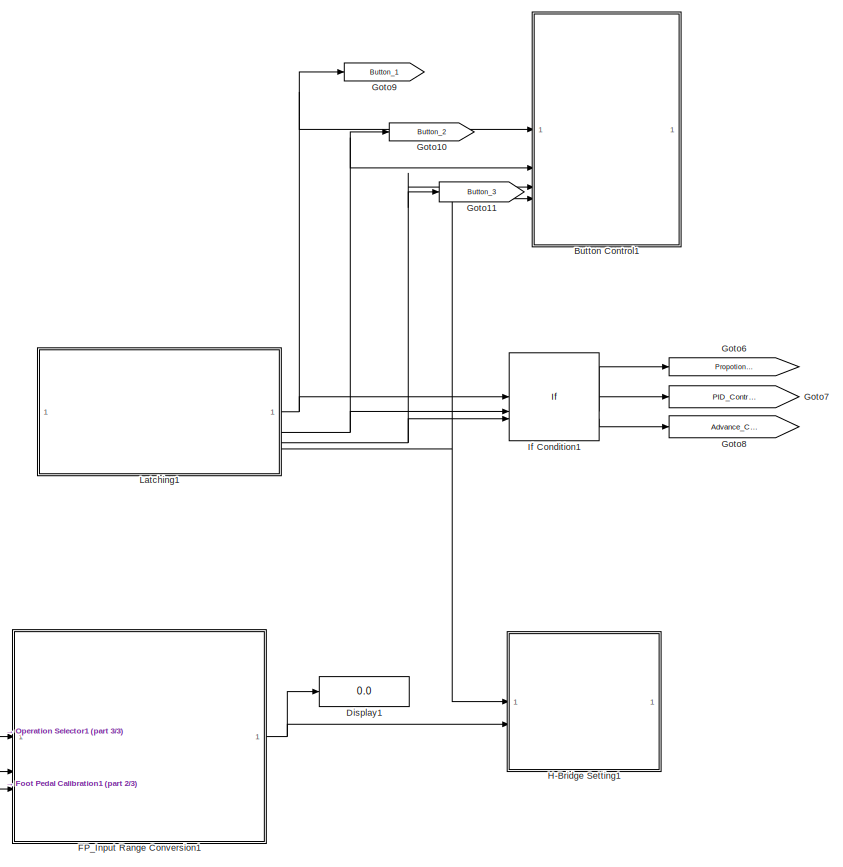
[diagram: Subsystem5 - part 1/3, right side, full height]
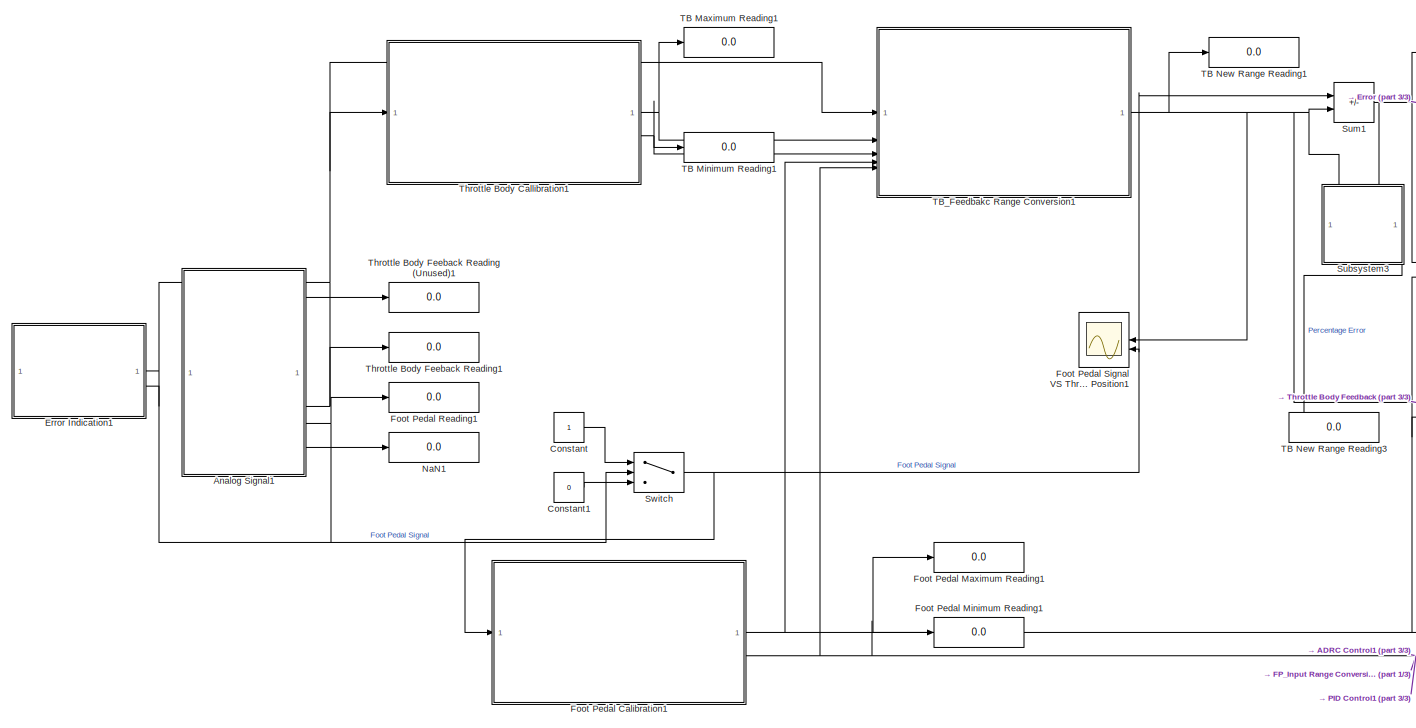
[diagram: Subsystem5 - part 2/3, left side, full height]
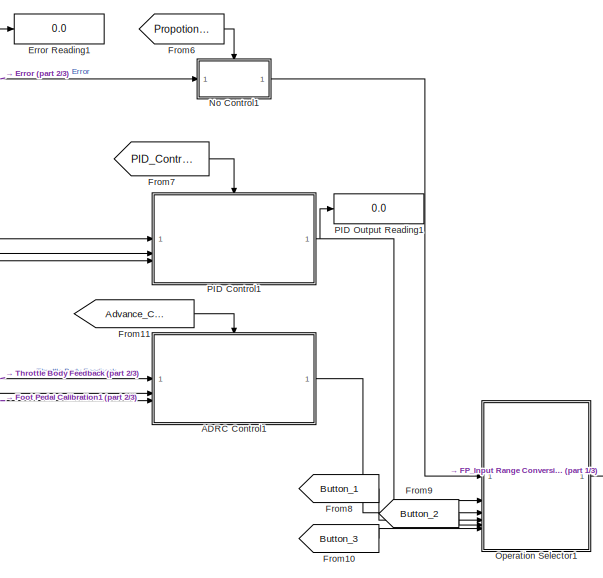
[diagram: Subsystem5 - part 3/3, central region]
BLOCK [SubSystem] Subsystem5
  Commented = on
BLOCK [SubSystem] Subsystem5/ADRC Control1
BLOCK [Outport] Subsystem5/ADRC Control1/ADRC Output
BLOCK [ActionPort] Subsystem5/ADRC Control1/Action Port
  ActionPortLabel = elseif( u3 == 1)
BLOCK [Constant] Subsystem5/ADRC Control1/Constant
  NameLocation = left
  Value = 0.01
BLOCK [Inport] Subsystem5/ADRC Control1/FP_maxVal
  Port = 2
BLOCK [Inport] Subsystem5/ADRC Control1/FP_minVal
  Port = 3
BLOCK [Inport] Subsystem5/ADRC Control1/Feedback
BLOCK [Reference] Subsystem5/ADRC Control1/Saturation Dynamic  REF=simulink/Discontinuities/Saturation
Dynamic
  SourceBlock = simulink/Discontinuities/Saturation\nDynamic
  SourceType = Saturation Dynamic
BLOCK [SubSystem] Subsystem5/ADRC Control1/Subsystem
BLOCK [Scope] Subsystem5/ADRC Control1/Subsystem/Contro_input (Voltages)
  Floating = off
  NumInputPorts = 1
  ScopeSpecificationString = Simulink.scopes.TimeScopeBlockCfg('CurrentConfiguration', extmgr.ConfigurationSet(extmgr.Configuration('Core','General UI',true),extmgr.Configuration('Core','Source UI',true),extmgr.Configuration('Sources','WiredSimulink',true,'DataLogging',true,'DataLoggingVariableName','Scope_V_ADRC','DataLoggingSaveFormat','StructureWithTime','DataLoggingDecimation','1','DataLoggingDecimateData',true),extmgr.Co...<+898ch>
BLOCK [Reference] Subsystem5/ADRC Control1/Subsystem/Degrees to Radians1  REF=simulink_extras/Transformations/Degrees to
Radians
  SourceBlock = simulink_extras/Transformations/Degrees to\nRadians
  SourceType = DegreesToRadians
BLOCK [SubSystem] Subsystem5/ADRC Control1/Subsystem/Desired signals_Sinewave
BLOCK [Clock] Subsystem5/ADRC Control1/Subsystem/Desired signals_Sinewave/Clock
  DisplayTime = on
BLOCK [Clock] Subsystem5/ADRC Control1/Subsystem/Desired signals_Sinewave/Clock1
BLOCK [Clock] Subsystem5/ADRC Control1/Subsystem/Desired signals_Sinewave/Clock2
BLOCK [Fcn] Subsystem5/ADRC Control1/Subsystem/Desired signals_Sinewave/Fcn1
  Expr = 10*sin(2*u)+10+7
BLOCK [Fcn] Subsystem5/ADRC Control1/Subsystem/Desired signals_Sinewave/Fcn2
  Expr = 10*2*cos(2*u)
BLOCK [Fcn] Subsystem5/ADRC Control1/Subsystem/Desired signals_Sinewave/Fcn3
  Expr = -10*2*2*sin(2*u)
BLOCK [Mux] Subsystem5/ADRC Control1/Subsystem/Desired signals_Sinewave/Mux
  DisplayOption = bar
  Inputs = 3
BLOCK [Outport] Subsystem5/ADRC Control1/Subsystem/Desired signals_Sinewave/xi_d
BLOCK [SubSystem] Subsystem5/ADRC Control1/Subsystem/Desired_Reference_step_input
BLOCK [Constant] Subsystem5/ADRC Control1/Subsystem/Desired_Reference_step_input/Constant
  Value = 45*pi/180
BLOCK [Constant] Subsystem5/ADRC Control1/Subsystem/Desired_Reference_step_input/Constant1
  Value = 0
BLOCK [Constant] Subsystem5/ADRC Control1/Subsystem/Desired_Reference_step_input/Constant2
  Value = 0
BLOCK [Gain] Subsystem5/ADRC Control1/Subsystem/Desired_Reference_step_input/Gain
  Gain = -1
  NameLocation = right
BLOCK [Gain] Subsystem5/ADRC Control1/Subsystem/Desired_Reference_step_input/Gain1
  Gain = -1
  NameLocation = right
BLOCK [Gain] Subsystem5/ADRC Control1/Subsystem/Desired_Reference_step_input/Gain2
  NameLocation = right
BLOCK [Mux] Subsystem5/ADRC Control1/Subsystem/Desired_Reference_step_input/Mux
  DisplayOption = bar
  Inputs = 3
BLOCK [Reference] Subsystem5/ADRC Control1/Subsystem/Desired_Reference_step_input/Radians to Degrees2  REF=simulink_extras/Transformations/Radians
to Degrees
  SourceBlock = simulink_extras/Transformations/Radians\nto Degrees
  SourceType = RadiansToDegrees
BLOCK [Scope] Subsystem5/ADRC Control1/Subsystem/Desired_Reference_step_input/Scope
  Floating = off
  NumInputPorts = 1
  ScopeSpecificationString = C++SS(StrPVP('Location','[10, 60, 1376, 738]'),StrPVP('Open','off'),MxPVP('AxesTitles',54,'struct(''axes1'',''%<SignalLabel>'')'),MxPVP('ScopeGraphics',57,'struct(''FigureColor'',''[0.5 0.5 0.5]'',''AxesColor'',''[0 0 0]'',''AxesTickColor'',''[1 1 1]'',''LineColors'',''[1 1 0;1 0 1;0 1 1;1 0 0;0 1 0;0 0 1]'',''LineStyles'',''-|-|-|-|-|-'',''LineWidths'',''[0.5 0.5 0.5 0.5 0.5 0.5]'',''MarkerStyles...<+275ch>
BLOCK [SubSystem] Subsystem5/ADRC Control1/Subsystem/Desired_Reference_step_input/Signal Builder
  ClipboardFcn = sigbuilder_block('clipboard');
  CloseFcn = sigbuilder_block('close');
  ContinueFcn = sigbuilder_block('continue')
  CopyFcn = sigbuilder_block('copy');
  DeleteFcn = sigbuilder_block('delete');
  LoadFcn = sigbuilder_block('load');
  MaskHideContents = on
  ModelCloseFcn = sigbuilder_block('modelClose');
  NameChangeFcn = sigbuilder_block('namechange');
  OpenFcn = sigbuilder_block('open',[437.25 117.75 550.5 394.5 ]);
  PauseFcn = sigbuilder_block('pause')
  PreSaveFcn = sigbuilder_block('preSave');
  StartFcn = sigbuilder_block('start');
  StopFcn = sigbuilder_block('stop');
  Tag = STV Subsys
BLOCK [Demux] Subsystem5/ADRC Control1/Subsystem/Desired_Reference_step_input/Signal Builder/Demux
  DisplayOption = none
  Outputs = 1
  Tag = STV Demux
BLOCK [FromWorkspace] Subsystem5/ADRC Control1/Subsystem/Desired_Reference_step_input/Signal Builder/FromWs
  Tag = STV FromWs
  VariableName = tuvar
BLOCK [Outport] Subsystem5/ADRC Control1/Subsystem/Desired_Reference_step_input/Signal Builder/Signal 1
  Tag = STV Outport
BLOCK [SubSystem] Subsystem5/ADRC Control1/Subsystem/Desired_Reference_step_input/Signal Builder1
  ClipboardFcn = sigbuilder_block('clipboard');
  CloseFcn = sigbuilder_block('close');
  ContinueFcn = sigbuilder_block('continue')
  CopyFcn = sigbuilder_block('copy');
  DeleteFcn = sigbuilder_block('delete');
  LoadFcn = sigbuilder_block('load');
  MaskHideContents = on
  ModelCloseFcn = sigbuilder_block('modelClose');
  NameChangeFcn = sigbuilder_block('namechange');
  OpenFcn = sigbuilder_block('open',[153 72 550.2 394.8 ]);
  PauseFcn = sigbuilder_block('pause')
  PreSaveFcn = sigbuilder_block('preSave');
  StartFcn = sigbuilder_block('start');
  StopFcn = sigbuilder_block('stop');
  Tag = STV Subsys
BLOCK [Demux] Subsystem5/ADRC Control1/Subsystem/Desired_Reference_step_input/Signal Builder1/Demux
  DisplayOption = none
  Outputs = 1
  Tag = STV Demux
BLOCK [FromWorkspace] Subsystem5/ADRC Control1/Subsystem/Desired_Reference_step_input/Signal Builder1/FromWs
  Tag = STV FromWs
  VariableName = tuvar
BLOCK [Outport] Subsystem5/ADRC Control1/Subsystem/Desired_Reference_step_input/Signal Builder1/Signal 1
  Tag = STV Outport
BLOCK [SubSystem] Subsystem5/ADRC Control1/Subsystem/Desired_Reference_step_input/Signal Builder2
  ClipboardFcn = sigbuilder_block('clipboard');
  CloseFcn = sigbuilder_block('close');
  ContinueFcn = sigbuilder_block('continue')
  CopyFcn = sigbuilder_block('copy');
  DeleteFcn = sigbuilder_block('delete');
  LoadFcn = sigbuilder_block('load');
  MaskHideContents = on
  ModelCloseFcn = sigbuilder_block('modelClose');
  NameChangeFcn = sigbuilder_block('namechange');
  OpenFcn = sigbuilder_block('open',[437.25 117.75 550.5 394.5 ]);
  PauseFcn = sigbuilder_block('pause')
  PreSaveFcn = sigbuilder_block('preSave');
  StartFcn = sigbuilder_block('start');
  StopFcn = sigbuilder_block('stop');
  Tag = STV Subsys
BLOCK [Demux] Subsystem5/ADRC Control1/Subsystem/Desired_Reference_step_input/Signal Builder2/Demux
  DisplayOption = none
  Outputs = 1
  Tag = STV Demux
BLOCK [FromWorkspace] Subsystem5/ADRC Control1/Subsystem/Desired_Reference_step_input/Signal Builder2/FromWs
  Tag = STV FromWs
  VariableName = tuvar
BLOCK [Outport] Subsystem5/ADRC Control1/Subsystem/Desired_Reference_step_input/Signal Builder2/Signal 1
  Tag = STV Outport
BLOCK [SubSystem] Subsystem5/ADRC Control1/Subsystem/Desired_Reference_step_input/Signal Builder3
  ClipboardFcn = sigbuilder_block('clipboard');
  CloseFcn = sigbuilder_block('close');
  ContinueFcn = sigbuilder_block('continue')
  CopyFcn = sigbuilder_block('copy');
  DeleteFcn = sigbuilder_block('delete');
  LoadFcn = sigbuilder_block('load');
  MaskHideContents = on
  ModelCloseFcn = sigbuilder_block('modelClose');
  NameChangeFcn = sigbuilder_block('namechange');
  OpenFcn = sigbuilder_block('open',[437.25 117.75 550.5 394.5 ]);
  PauseFcn = sigbuilder_block('pause')
  PreSaveFcn = sigbuilder_block('preSave');
  StartFcn = sigbuilder_block('start');
  StopFcn = sigbuilder_block('stop');
  Tag = STV Subsys
BLOCK [Demux] Subsystem5/ADRC Control1/Subsystem/Desired_Reference_step_input/Signal Builder3/Demux
  DisplayOption = none
  Outputs = 1
  Tag = STV Demux
BLOCK [FromWorkspace] Subsystem5/ADRC Control1/Subsystem/Desired_Reference_step_input/Signal Builder3/FromWs
  Tag = STV FromWs
  VariableName = tuvar
BLOCK [Outport] Subsystem5/ADRC Control1/Subsystem/Desired_Reference_step_input/Signal Builder3/Signal 1
  Tag = STV Outport
BLOCK [SubSystem] Subsystem5/ADRC Control1/Subsystem/Desired_Reference_step_input/Signal Builder4
  ClipboardFcn = sigbuilder_block('clipboard');
  CloseFcn = sigbuilder_block('close');
  ContinueFcn = sigbuilder_block('continue')
  CopyFcn = sigbuilder_block('copy');
  DeleteFcn = sigbuilder_block('delete');
  LoadFcn = sigbuilder_block('load');
  MaskHideContents = on
  ModelCloseFcn = sigbuilder_block('modelClose');
  NameChangeFcn = sigbuilder_block('namechange');
  OpenFcn = sigbuilder_block('open',[437.25 117.75 550.5 394.5 ]);
  PauseFcn = sigbuilder_block('pause')
  PreSaveFcn = sigbuilder_block('preSave');
  StartFcn = sigbuilder_block('start');
  StopFcn = sigbuilder_block('stop');
  Tag = STV Subsys
BLOCK [Demux] Subsystem5/ADRC Control1/Subsystem/Desired_Reference_step_input/Signal Builder4/Demux
  DisplayOption = none
  Outputs = 1
  Tag = STV Demux
BLOCK [FromWorkspace] Subsystem5/ADRC Control1/Subsystem/Desired_Reference_step_input/Signal Builder4/FromWs
  Tag = STV FromWs
  VariableName = tuvar
BLOCK [Outport] Subsystem5/ADRC Control1/Subsystem/Desired_Reference_step_input/Signal Builder4/Signal 1
  Tag = STV Outport
BLOCK [Sum] Subsystem5/ADRC Control1/Subsystem/Desired_Reference_step_input/Sum2
  Inputs = |++
BLOCK [Sum] Subsystem5/ADRC Control1/Subsystem/Desired_Reference_step_input/Sum3
  Inputs = |++
BLOCK [Sum] Subsystem5/ADRC Control1/Subsystem/Desired_Reference_step_input/Sum4
  Inputs = |++
BLOCK [Sum] Subsystem5/ADRC Control1/Subsystem/Desired_Reference_step_input/Sum5
  Inputs = |+-
BLOCK [Outport] Subsystem5/ADRC Control1/Subsystem/Desired_Reference_step_input/xi_d
BLOCK [SubSystem] Subsystem5/ADRC Control1/Subsystem/SFBC_Controller
BLOCK [Constant] Subsystem5/ADRC Control1/Subsystem/SFBC_Controller/Constant2
  Value = roa/J_aet
BLOCK [Demux] Subsystem5/ADRC Control1/Subsystem/SFBC_Controller/Demux
  Outputs = 3
BLOCK [Demux] Subsystem5/ADRC Control1/Subsystem/SFBC_Controller/Demux1
  Outputs = 3
BLOCK [Fcn] Subsystem5/ADRC Control1/Subsystem/SFBC_Controller/Fcn
  Expr = 1/u
BLOCK [Gain] Subsystem5/ADRC Control1/Subsystem/SFBC_Controller/Gain
  Gain = (omga_c)^2
BLOCK [Gain] Subsystem5/ADRC Control1/Subsystem/SFBC_Controller/Gain1
  Gain = (2*(omga_c))
BLOCK [Product] Subsystem5/ADRC Control1/Subsystem/SFBC_Controller/Product
  RndMeth = Zero
BLOCK [Reference] Subsystem5/ADRC Control1/Subsystem/SFBC_Controller/Radians to Degrees4  REF=simulink_extras/Transformations/Radians
to Degrees
  NameLocation = top
  SourceBlock = simulink_extras/Transformations/Radians\nto Degrees
  SourceType = RadiansToDegrees
BLOCK [Sum] Subsystem5/ADRC Control1/Subsystem/SFBC_Controller/Sum1
  Inputs = |++
BLOCK [Sum] Subsystem5/ADRC Control1/Subsystem/SFBC_Controller/Sum2
  IconShape = rectangular
  Inputs = |++-
BLOCK [Sum] Subsystem5/ADRC Control1/Subsystem/SFBC_Controller/Sum3
  Inputs = |+-
BLOCK [Sum] Subsystem5/ADRC Control1/Subsystem/SFBC_Controller/Sum4
  Inputs = |+-
BLOCK [Scope] Subsystem5/ADRC Control1/Subsystem/SFBC_Controller/Tracking erro
  Floating = off
  NumInputPorts = 1
  ScopeSpecificationString = C++SS(StrPVP('Location','[188, 390, 512, 629]'),StrPVP('Open','off'),MxPVP('AxesTitles',54,'struct(''axes1'',''%<SignalLabel>'')'),MxPVP('ScopeGraphics',57,'struct(''FigureColor'',''[0.5 0.5 0.5]'',''AxesColor'',''[0 0 0]'',''AxesTickColor'',''[1 1 1]'',''LineColors'',''[1 1 0;1 0 1;0 1 1;1 0 0;0 1 0;0 0 1]'',''LineStyles'',''-|-|-|-|-|-'',''LineWidths'',''[0.5 0.5 0.5 0.5 0.5 0.5]'',''MarkerStyle...<+277ch>
BLOCK [Outport] Subsystem5/ADRC Control1/Subsystem/SFBC_Controller/V(t)
BLOCK [Inport] Subsystem5/ADRC Control1/Subsystem/SFBC_Controller/Xd_i
BLOCK [Inport] Subsystem5/ADRC Control1/Subsystem/SFBC_Controller/Xi^
  Port = 2
BLOCK [SubSystem] Subsystem5/ADRC Control1/Subsystem/Subsystem1
  NameLocation = top
BLOCK [Constant] Subsystem5/ADRC Control1/Subsystem/Subsystem1/Constant
  Value = 0
BLOCK [Constant] Subsystem5/ADRC Control1/Subsystem/Subsystem1/Constant1
  Value = 0
BLOCK [Constant] Subsystem5/ADRC Control1/Subsystem/Subsystem1/Constant2
  Value = roa/J_aet
BLOCK [Demux] Subsystem5/ADRC Control1/Subsystem/Subsystem1/Demux
  Outputs = 3
BLOCK [Gain] Subsystem5/ADRC Control1/Subsystem/Subsystem1/Gain
  Gain = [0 1 0;0 0 1;0 0 0]
  Multiplication = Matrix(K*u)
  NameLocation = top
BLOCK [Gain] Subsystem5/ADRC Control1/Subsystem/Subsystem1/Gain2
  Gain = [Beta1 Beta2 Beta3]'
  NameLocation = top
BLOCK [Integrator] Subsystem5/ADRC Control1/Subsystem/Subsystem1/Integrator1
  InitialCondition = [12*pi/180 0 0]'
BLOCK [Mux] Subsystem5/ADRC Control1/Subsystem/Subsystem1/Mux
  DisplayOption = bar
  Inputs = 3
BLOCK [Product] Subsystem5/ADRC Control1/Subsystem/Subsystem1/Product
  RndMeth = Zero
BLOCK [Scope] Subsystem5/ADRC Control1/Subsystem/Subsystem1/Scope
  Floating = off
  NumInputPorts = 1
  ScopeSpecificationString = C++SS(StrPVP('Location','[188, 390, 512, 629]'),StrPVP('Open','off'),MxPVP('AxesTitles',54,'struct(''axes1'',''%<SignalLabel>'')'),StrPVP('SaveName','ScopeData3'),StrPVP('DataFormat','StructureWithTime'),StrPVP('BlockParamSampleTime','0'),StrPVP('LimitDataPoints','on'),StrPVP('Decimation','1'),StrPVP('BlockParamSampleInput','off'))
BLOCK [Scope] Subsystem5/ADRC Control1/Subsystem/Subsystem1/Scope1
  Floating = off
  NumInputPorts = 1
  ScopeSpecificationString = C++SS(StrPVP('Location','[188, 390, 512, 629]'),StrPVP('Open','off'),MxPVP('AxesTitles',54,'struct(''axes1'',''%<SignalLabel>'')'),MxPVP('ScopeGraphics',57,'struct(''FigureColor'',''[0.5 0.5 0.5]'',''AxesColor'',''[0 0 0]'',''AxesTickColor'',''[1 1 1]'',''LineColors'',''[1 1 0;1 0 1;0 1 1;1 0 0;0 1 0;0 0 1]'',''LineStyles'',''-|-|-|-|-|-'',''LineWidths'',''[0.5 0.5 0.5 0.5 0.5 0.5]'',''MarkerStyle...<+243ch>
BLOCK [Sum] Subsystem5/ADRC Control1/Subsystem/Subsystem1/Sum
  Inputs = |++
BLOCK [Sum] Subsystem5/ADRC Control1/Subsystem/Subsystem1/Sum1
  Inputs = |++
  NameLocation = right
BLOCK [Sum] Subsystem5/ADRC Control1/Subsystem/Subsystem1/Sum2
  Inputs = |+-
BLOCK [Inport] Subsystem5/ADRC Control1/Subsystem/Subsystem1/U(t)
BLOCK [Inport] Subsystem5/ADRC Control1/Subsystem/Subsystem1/X1(t)
  Port = 2
BLOCK [Outport] Subsystem5/ADRC Control1/Subsystem/Subsystem1/Xi^
BLOCK [Outport] Subsystem5/ADRC Control1/Subsystem/V(t)
BLOCK [Inport] Subsystem5/ADRC Control1/Subsystem/X1(t)
BLOCK [Sum] Subsystem5/ADRC Control1/Sum1
  Inputs = ++|
BLOCK [SubSystem] Subsystem5/Analog Signal1
BLOCK [MATLABSystem] Subsystem5/Analog Signal1/MATLAB System
  MaskType = ADS1115_Vread
  SampleTime = -1
  SetGain = int16( 16 )
  System = ADS1115_Vread
BLOCK [Outport] Subsystem5/Analog Signal1/Out1
BLOCK [Outport] Subsystem5/Analog Signal1/Out4
  Port = 4
BLOCK [Outport] Subsystem5/Analog Signal1/PedalRange
  Port = 3
BLOCK [Outport] Subsystem5/Analog Signal1/TBRange
  Port = 2
BLOCK [SubSystem] Subsystem5/Button Control1
BLOCK [Inport] Subsystem5/Button Control1/Bottun 2
  Port = 2
BLOCK [Inport] Subsystem5/Button Control1/Button 1
BLOCK [Inport] Subsystem5/Button Control1/Button 3
  Port = 3
BLOCK [Inport] Subsystem5/Button Control1/Button 4
  Port = 4
BLOCK [Constant] Subsystem5/Button Control1/Constant
  Value = 0
BLOCK [Reference] Subsystem5/Button Control1/Digital Output  REF=arduinolib/Digital Output
  SourceBlock = arduinolib/Digital Output
  SourceType = Arduino Digital Output
BLOCK [Reference] Subsystem5/Button Control1/Digital Output1  REF=arduinolib/Digital Output
  SourceBlock = arduinolib/Digital Output
  SourceType = Arduino Digital Output
BLOCK [Reference] Subsystem5/Button Control1/Digital Output2  REF=arduinolib/Digital Output
  SourceBlock = arduinolib/Digital Output
  SourceType = Arduino Digital Output
BLOCK [Reference] Subsystem5/Button Control1/Digital Output3  REF=arduinolib/Digital Output
  SourceBlock = arduinolib/Digital Output
  SourceType = Arduino Digital Output
BLOCK [DiscretePulseGenerator] Subsystem5/Button Control1/Pulse Generator
  Period = 0.5
  PulseType = Time based
  PulseWidth = 50
BLOCK [Switch] Subsystem5/Button Control1/Switch
  Criteria = u2 ~= 0
  InputSameDT = off
  SaturateOnIntegerOverflow = off
BLOCK [Constant] Subsystem5/Constant
BLOCK [Constant] Subsystem5/Constant1
  Value = 0
BLOCK [Display] Subsystem5/Display1
  Decimation = 2
BLOCK [SubSystem] Subsystem5/Error Indication1
  PortSchema = {"entries":[{"content":{"sides":[{"content":{},"type":"ConnectorPlacement.EquallySpacedRectSide","uuid":"6bb27259-0fc4-412b-bd28-187413250838"},{"content":{"connectorIds":["In1","In2"],"side":"RIGHT"},"type":"ConnectorPlacement.EquallySpacedRectSide","uuid":"b38a583a-7cdb-4b72-8a0e-445370b0f03f"},{"content":{"side":"TOP"},"type":"ConnectorPlacement.EquallySpacedRectSide","uuid":"477ad40e-8e68-4653...<+205ch>
BLOCK [Constant] Subsystem5/Error Indication1/Constant
BLOCK [Constant] Subsystem5/Error Indication1/Constant1
  Value = 0
BLOCK [Constant] Subsystem5/Error Indication1/Constant2
BLOCK [Constant] Subsystem5/Error Indication1/Constant3
  Value = 0
BLOCK [Constant] Subsystem5/Error Indication1/Constant4
  Value = 0
BLOCK [Reference] Subsystem5/Error Indication1/Digital Output4  REF=arduinolib/Digital Output
  SourceBlock = arduinolib/Digital Output
  SourceType = Arduino Digital Output
BLOCK [Logic] Subsystem5/Error Indication1/OR
  AllPortsSameDT = off
  IconShape = distinctive
  Operator = NAND
  OutDataTypeStr = boolean
BLOCK [Inport] Subsystem5/Error Indication1/PedalRange
  Port = 2
BLOCK [DiscretePulseGenerator] Subsystem5/Error Indication1/Pulse Generator
  Period = 0.1
  PulseType = Time based
  PulseWidth = 50
BLOCK [Switch] Subsystem5/Error Indication1/Switch
  Criteria = u2 > Threshold
  InputSameDT = off
  SaturateOnIntegerOverflow = off
BLOCK [Switch] Subsystem5/Error Indication1/Switch2
  Criteria = u2 > Threshold
  InputSameDT = off
  SaturateOnIntegerOverflow = off
BLOCK [Switch] Subsystem5/Error Indication1/Switch3
  Criteria = u2 > Threshold
  InputSameDT = off
  SaturateOnIntegerOverflow = off
BLOCK [Inport] Subsystem5/Error Indication1/TBRange
BLOCK [Display] Subsystem5/Error Reading1
  Decimation = 2
BLOCK [SubSystem] Subsystem5/FP_Input Range Conversion1
BLOCK [Outport] Subsystem5/FP_Input Range Conversion1/0 - 255 Output
BLOCK [Sum] Subsystem5/FP_Input Range Conversion1/Add2
  IconShape = rectangular
  Inputs = +-
BLOCK [Sum] Subsystem5/FP_Input Range Conversion1/Add3
  IconShape = rectangular
  Inputs = +-
BLOCK [Inport] Subsystem5/FP_Input Range Conversion1/Control Output
BLOCK [Constant] Subsystem5/FP_Input Range Conversion1/Desire Max Value
  Value = Desire_Max
BLOCK [Constant] Subsystem5/FP_Input Range Conversion1/Desire Min Value
  Value = Desire_Min
BLOCK [Display] Subsystem5/FP_Input Range Conversion1/Display1
  Decimation = 1
BLOCK [Display] Subsystem5/FP_Input Range Conversion1/Display3
  Decimation = 1
BLOCK [Product] Subsystem5/FP_Input Range Conversion1/Divide1
  Inputs = */
BLOCK [Inport] Subsystem5/FP_Input Range Conversion1/FP_maxVal
  Port = 2
BLOCK [Inport] Subsystem5/FP_Input Range Conversion1/FP_minVal
  Port = 3
BLOCK [Product] Subsystem5/FP_Input Range Conversion1/Product1
BLOCK [Sum] Subsystem5/FP_Input Range Conversion1/Subtract
  IconShape = rectangular
  Inputs = +-
BLOCK [Sum] Subsystem5/FP_Input Range Conversion1/Sum
  IconShape = rectangular
BLOCK [SubSystem] Subsystem5/Foot Pedal Calibration1
  ErrorFcn = Stateflow.Translate.translate
  PermitHierarchicalResolution = ExplicitOnly
  SFBlockType = MATLAB Function
  TreatAsAtomicUnit = on
BLOCK [Demux] Subsystem5/Foot Pedal Calibration1/ Demux 
  Outputs = 1
BLOCK [S-Function] Subsystem5/Foot Pedal Calibration1/ SFunction 
  EnableBusSupport = on
  FunctionName = sf_sfun
  PortCounts = [1 3]
  SFcnIsStateOwnerBlock = off
  SFunctionDeploymentMode = off
  Tag = Stateflow S-Function 1
BLOCK [Terminator] Subsystem5/Foot Pedal Calibration1/ Terminator 
BLOCK [Outport] Subsystem5/Foot Pedal Calibration1/FP_maxVal
BLOCK [Outport] Subsystem5/Foot Pedal Calibration1/FP_minVal
  Port = 2
BLOCK [Inport] Subsystem5/Foot Pedal Calibration1/PedalRange
BLOCK [Display] Subsystem5/Foot Pedal Maximum Reading1
  Decimation = 2
BLOCK [Display] Subsystem5/Foot Pedal Minimum Reading1
  Decimation = 2
BLOCK [Display] Subsystem5/Foot Pedal Reading1
  Decimation = 2
BLOCK [Scope] Subsystem5/Foot Pedal Signal VS Throttle Body Position1
  Floating = off
  NameLocation = top
  NumInputPorts = 2
  ScopeSpecificationString = Simulink.scopes.TimeScopeBlockCfg('CurrentConfiguration', extmgr.ConfigurationSet(extmgr.Configuration('Core','General UI',true,'FigureColor',[1 1 1]),extmgr.Configuration('Core','Source UI',true),extmgr.Configuration('Sources','WiredSimulink',true,'DataLoggingVariableName','ScopeData1'),extmgr.Configuration('Visuals','Time Domain',true,'SerializedDisplays',{struct('MinYLimReal','-0.125','MaxYLimR...<+2520ch>
BLOCK [From] Subsystem5/From10
  GotoTag = Button_3
BLOCK [From] Subsystem5/From11
  GotoTag = Advance_Control
BLOCK [From] Subsystem5/From6
  GotoTag = Propotional
BLOCK [From] Subsystem5/From7
  GotoTag = PID_Control
BLOCK [From] Subsystem5/From8
  GotoTag = Button_1
BLOCK [From] Subsystem5/From9
  GotoTag = Button_2
BLOCK [Goto] Subsystem5/Goto10
  GotoTag = Button_2
BLOCK [Goto] Subsystem5/Goto11
  GotoTag = Button_3
BLOCK [Goto] Subsystem5/Goto6
  GotoTag = Propotional
BLOCK [Goto] Subsystem5/Goto7
  GotoTag = PID_Control
BLOCK [Goto] Subsystem5/Goto8
  GotoTag = Advance_Control
BLOCK [Goto] Subsystem5/Goto9
  GotoTag = Button_1
BLOCK [SubSystem] Subsystem5/H-Bridge Setting1
BLOCK [Inport] Subsystem5/H-Bridge Setting1/0 - 255
  Port = 2
BLOCK [Inport] Subsystem5/H-Bridge Setting1/Calibration Mode
BLOCK [Constant] Subsystem5/H-Bridge Setting1/Constant
  Value = 0
BLOCK [Reference] Subsystem5/H-Bridge Setting1/Digital Output  REF=arduinolib/Digital Output
  SourceBlock = arduinolib/Digital Output
  SourceType = Arduino Digital Output
BLOCK [Reference] Subsystem5/H-Bridge Setting1/Digital Output1  REF=arduinolib/Digital Output
  SourceBlock = arduinolib/Digital Output
  SourceType = Arduino Digital Output
BLOCK [Constant] Subsystem5/H-Bridge Setting1/Direction Pin
  Value = Direction_Pin
BLOCK [Display] Subsystem5/H-Bridge Setting1/Display3
  Decimation = 1
BLOCK [Display] Subsystem5/H-Bridge Setting1/Display4
  Decimation = 1
BLOCK [Constant] Subsystem5/H-Bridge Setting1/Enable Pin
  Value = EN_Pin
BLOCK [Gain] Subsystem5/H-Bridge Setting1/Gain
  Gain = 100
BLOCK [Reference] Subsystem5/H-Bridge Setting1/On Delay  REF=spsOnDelayLib/On Delay
  LibrarySourceBlock = sps_lib/Control/On Delay
  SourceBlock = spsOnDelayLib/On Delay
  SourceType = On/Off Delay
BLOCK [Reference] Subsystem5/H-Bridge Setting1/PWM  REF=arduinolib/PWM
  SourceBlock = arduinolib/PWM
  SourceType = Arduino PWM
BLOCK [Switch] Subsystem5/H-Bridge Setting1/Switch1
  Criteria = u2 ~= 0
  InputSameDT = off
  SaturateOnIntegerOverflow = off
BLOCK [Switch] Subsystem5/H-Bridge Setting1/Switch2
  Criteria = u2 ~= 0
  InputSameDT = off
  SaturateOnIntegerOverflow = off
BLOCK [If] Subsystem5/If Condition1
  ElseIfExpressions = u2 == 1, u3 == 1
  IfExpression = u1 == 1
  NumInputs = 3
  ShowElse = off
BLOCK [SubSystem] Subsystem5/Latching1
BLOCK [Outport] Subsystem5/Latching1/Button 1
BLOCK [Outport] Subsystem5/Latching1/Button 2
  Port = 2
BLOCK [Outport] Subsystem5/Latching1/Button 3
  Port = 3
BLOCK [Outport] Subsystem5/Latching1/Button 4
  Port = 4
BLOCK [Reference] Subsystem5/Latching1/Digital Input  REF=arduinolib/Digital Input
  SourceBlock = arduinolib/Digital Input
  SourceType = Arduino Digital Input
BLOCK [Reference] Subsystem5/Latching1/Digital Input1  REF=arduinolib/Digital Input
  SourceBlock = arduinolib/Digital Input
  SourceType = Arduino Digital Input
BLOCK [Reference] Subsystem5/Latching1/Digital Input2  REF=arduinolib/Digital Input
  SourceBlock = arduinolib/Digital Input
  SourceType = Arduino Digital Input
BLOCK [Reference] Subsystem5/Latching1/Digital Input3  REF=arduinolib/Digital Input
  SourceBlock = arduinolib/Digital Input
  SourceType = Arduino Digital Input
BLOCK [Logic] Subsystem5/Latching1/Logical Operator16
  AllPortsSameDT = off
  IconShape = distinctive
  Operator = NOT
  OutDataTypeStr = boolean
BLOCK [Logic] Subsystem5/Latching1/Logical Operator17
  AllPortsSameDT = off
  IconShape = distinctive
  Operator = NOT
  OutDataTypeStr = boolean
BLOCK [Logic] Subsystem5/Latching1/Logical Operator18
  AllPortsSameDT = off
  IconShape = distinctive
  Operator = XOR
  OutDataTypeStr = boolean
BLOCK [Logic] Subsystem5/Latching1/Logical Operator19
  AllPortsSameDT = off
  IconShape = distinctive
  OutDataTypeStr = boolean
BLOCK [Logic] Subsystem5/Latching1/Logical Operator20
  AllPortsSameDT = off
  IconShape = distinctive
  OutDataTypeStr = boolean
BLOCK [Logic] Subsystem5/Latching1/Logical Operator21
  AllPortsSameDT = off
  IconShape = distinctive
  OutDataTypeStr = boolean
BLOCK [Logic] Subsystem5/Latching1/Logical Operator22
  AllPortsSameDT = off
  IconShape = distinctive
  Operator = NOT
  OutDataTypeStr = boolean
BLOCK [Logic] Subsystem5/Latching1/Logical Operator23
  AllPortsSameDT = off
  IconShape = distinctive
  Operator = XOR
  OutDataTypeStr = boolean
BLOCK [Logic] Subsystem5/Latching1/Logical Operator24
  AllPortsSameDT = off
  IconShape = distinctive
  Operator = NOT
  OutDataTypeStr = boolean
BLOCK [Logic] Subsystem5/Latching1/Logical Operator25
  AllPortsSameDT = off
  IconShape = distinctive
  Operator = NOT
  OutDataTypeStr = boolean
BLOCK [Logic] Subsystem5/Latching1/Logical Operator26
  AllPortsSameDT = off
  IconShape = distinctive
  Operator = XOR
  OutDataTypeStr = boolean
BLOCK [Logic] Subsystem5/Latching1/Logical Operator27
  AllPortsSameDT = off
  IconShape = distinctive
  OutDataTypeStr = boolean
BLOCK [Logic] Subsystem5/Latching1/Logical Operator28
  AllPortsSameDT = off
  IconShape = distinctive
  OutDataTypeStr = boolean
BLOCK [Logic] Subsystem5/Latching1/Logical Operator29
  AllPortsSameDT = off
  IconShape = distinctive
  OutDataTypeStr = boolean
BLOCK [Logic] Subsystem5/Latching1/Logical Operator30
  AllPortsSameDT = off
  IconShape = distinctive
  Operator = NOT
  OutDataTypeStr = boolean
BLOCK [Logic] Subsystem5/Latching1/Logical Operator31
  AllPortsSameDT = off
  IconShape = distinctive
  Operator = XOR
  OutDataTypeStr = boolean
BLOCK [Logic] Subsystem5/Latching1/Logical Operator32
  AllPortsSameDT = off
  IconShape = distinctive
  Operator = NOT
  OutDataTypeStr = boolean
BLOCK [Logic] Subsystem5/Latching1/Logical Operator33
  AllPortsSameDT = off
  IconShape = distinctive
  Operator = NOT
  OutDataTypeStr = boolean
BLOCK [Logic] Subsystem5/Latching1/Logical Operator34
  AllPortsSameDT = off
  IconShape = distinctive
  Operator = XOR
  OutDataTypeStr = boolean
BLOCK [Logic] Subsystem5/Latching1/Logical Operator35
  AllPortsSameDT = off
  IconShape = distinctive
  OutDataTypeStr = boolean
BLOCK [Logic] Subsystem5/Latching1/Logical Operator36
  AllPortsSameDT = off
  IconShape = distinctive
  OutDataTypeStr = boolean
BLOCK [Logic] Subsystem5/Latching1/Logical Operator37
  AllPortsSameDT = off
  IconShape = distinctive
  OutDataTypeStr = boolean
BLOCK [Logic] Subsystem5/Latching1/Logical Operator38
  AllPortsSameDT = off
  IconShape = distinctive
  Operator = NOT
  OutDataTypeStr = boolean
BLOCK [Logic] Subsystem5/Latching1/Logical Operator39
  AllPortsSameDT = off
  IconShape = distinctive
  Operator = XOR
  OutDataTypeStr = boolean
BLOCK [Logic] Subsystem5/Latching1/Logical Operator40
  AllPortsSameDT = off
  IconShape = distinctive
  Operator = NOT
  OutDataTypeStr = boolean
BLOCK [Logic] Subsystem5/Latching1/Logical Operator41
  AllPortsSameDT = off
  IconShape = distinctive
  Operator = NOT
  OutDataTypeStr = boolean
BLOCK [Logic] Subsystem5/Latching1/Logical Operator42
  AllPortsSameDT = off
  IconShape = distinctive
  Operator = XOR
  OutDataTypeStr = boolean
BLOCK [Logic] Subsystem5/Latching1/Logical Operator43
  AllPortsSameDT = off
  IconShape = distinctive
  OutDataTypeStr = boolean
BLOCK [Logic] Subsystem5/Latching1/Logical Operator44
  AllPortsSameDT = off
  IconShape = distinctive
  OutDataTypeStr = boolean
BLOCK [Logic] Subsystem5/Latching1/Logical Operator45
  AllPortsSameDT = off
  IconShape = distinctive
  OutDataTypeStr = boolean
BLOCK [Logic] Subsystem5/Latching1/Logical Operator46
  AllPortsSameDT = off
  IconShape = distinctive
  Operator = NOT
  OutDataTypeStr = boolean
BLOCK [Logic] Subsystem5/Latching1/Logical Operator47
  AllPortsSameDT = off
  IconShape = distinctive
  Operator = XOR
  OutDataTypeStr = boolean
BLOCK [Reference] Subsystem5/Latching1/S-R Flip-Flop3  REF=simulink_extras/Flip Flops/S-R
Flip-Flop
  SourceBlock = simulink_extras/Flip Flops/S-R\nFlip-Flop
  SourceType = SRFlipFlop
BLOCK [Reference] Subsystem5/Latching1/S-R Flip-Flop4  REF=simulink_extras/Flip Flops/S-R
Flip-Flop
  SourceBlock = simulink_extras/Flip Flops/S-R\nFlip-Flop
  SourceType = SRFlipFlop
BLOCK [Reference] Subsystem5/Latching1/S-R Flip-Flop5  REF=simulink_extras/Flip Flops/S-R
Flip-Flop
  SourceBlock = simulink_extras/Flip Flops/S-R\nFlip-Flop
  SourceType = SRFlipFlop
BLOCK [Reference] Subsystem5/Latching1/S-R Flip-Flop6  REF=simulink_extras/Flip Flops/S-R
Flip-Flop
  SourceBlock = simulink_extras/Flip Flops/S-R\nFlip-Flop
  SourceType = SRFlipFlop
BLOCK [Display] Subsystem5/NaN1
  Decimation = 2
BLOCK [SubSystem] Subsystem5/No Control1
  TreatAsAtomicUnit = on
BLOCK [ActionPort] Subsystem5/No Control1/Action Port
  ActionPortLabel = if(u1 == 1)
BLOCK [Inport] Subsystem5/No Control1/Error
BLOCK [Outport] Subsystem5/No Control1/Propotional
BLOCK [SubSystem] Subsystem5/Operation Selector1
BLOCK [Sum] Subsystem5/Operation Selector1/Add
  IconShape = rectangular
  Inputs = +++
BLOCK [Inport] Subsystem5/Operation Selector1/Advanced Control
  Port = 3
BLOCK [Outport] Subsystem5/Operation Selector1/Control Output
BLOCK [Gain] Subsystem5/Operation Selector1/Multiply
BLOCK [Gain] Subsystem5/Operation Selector1/Multiply1
  Gain = 2
BLOCK [Gain] Subsystem5/Operation Selector1/Multiply2
  Gain = 3
BLOCK [MultiPortSwitch] Subsystem5/Operation Selector1/Multiport Switch
  DiagnosticForDefault = None
  InputSameDT = off
  SaturateOnIntegerOverflow = off
BLOCK [Inport] Subsystem5/Operation Selector1/PID Output
  Port = 2
BLOCK [Inport] Subsystem5/Operation Selector1/Propotional
BLOCK [Inport] Subsystem5/Operation Selector1/Switch 1
  Port = 4
BLOCK [Inport] Subsystem5/Operation Selector1/Switch 2
  Port = 5
BLOCK [Inport] Subsystem5/Operation Selector1/Switch 3
  Port = 6
BLOCK [SubSystem] Subsystem5/PID Control1
BLOCK [ActionPort] Subsystem5/PID Control1/Action Port
  ActionPortLabel = elseif(u2 == 1)
BLOCK [Constant] Subsystem5/PID Control1/Constant
  NameLocation = left
  Value = 0.01
BLOCK [Derivative] Subsystem5/PID Control1/Derivative
  Commented = on
BLOCK [Inport] Subsystem5/PID Control1/Error
BLOCK [Inport] Subsystem5/PID Control1/FP_maxVal
  Port = 2
BLOCK [Inport] Subsystem5/PID Control1/FP_minVal
  Port = 3
BLOCK [Gain] Subsystem5/PID Control1/Gain
  Commented = on
  Gain = 5
BLOCK [Gain] Subsystem5/PID Control1/Gain1
  Commented = on
  Gain = 0.1
BLOCK [Reference] Subsystem5/PID Control1/PID Controller1  REF=slpidlib/PID Controller
  LibrarySourceBlock = simulink/Continuous/PID Controller
  SourceBlock = slpidlib/PID Controller
  SourceType = PID 1dof
BLOCK [Outport] Subsystem5/PID Control1/PID Output
BLOCK [Reference] Subsystem5/PID Control1/Saturation Dynamic  REF=simulink/Discontinuities/Saturation
Dynamic
  SourceBlock = simulink/Discontinuities/Saturation\nDynamic
  SourceType = Saturation Dynamic
BLOCK [Signum] Subsystem5/PID Control1/Sign
  Commented = on
BLOCK [Sum] Subsystem5/PID Control1/Sum
  Commented = on
  Inputs = |++
BLOCK [Sum] Subsystem5/PID Control1/Sum1
  Inputs = ++|
BLOCK [Display] Subsystem5/PID Output Reading1
  Decimation = 2
BLOCK [SubSystem] Subsystem5/Subsystem3
  PortSchema = {"entries":[{"content":{"sides":[{"content":{},"type":"ConnectorPlacement.EquallySpacedRectSide","uuid":"06ab9b8c-dc11-4e78-9aea-2a49b899d383"},{"content":{"side":"RIGHT"},"type":"ConnectorPlacement.EquallySpacedRectSide","uuid":"ea81575a-6f3e-44ea-98d6-a15110b05ea2"},{"content":{"connectorIds":["In1","In2"],"side":"TOP"},"type":"ConnectorPlacement.EquallySpacedRectSide","uuid":"b4582e74-93d2-4cba...<+355ch>
BLOCK [Abs] Subsystem5/Subsystem3/Abs1
  SaturateOnIntegerOverflow = off
BLOCK [Product] Subsystem5/Subsystem3/Divide
  Inputs = */
BLOCK [Gain] Subsystem5/Subsystem3/Gain
  Gain = 100
BLOCK [Inport] Subsystem5/Subsystem3/In1
  Port = 2
BLOCK [Outport] Subsystem5/Subsystem3/Percentage Error
  NameLocation = top
BLOCK [Inport] Subsystem5/Subsystem3/Throttle Body Feedback
BLOCK [Sum] Subsystem5/Sum1
  IconShape = rectangular
  Inputs = +-
BLOCK [Switch] Subsystem5/Switch
  Criteria = u2 > Threshold
  InputSameDT = off
  SaturateOnIntegerOverflow = off
  Threshold = 0.1
BLOCK [Display] Subsystem5/TB Maximum Reading1
  Decimation = 2
BLOCK [Display] Subsystem5/TB Minimum Reading1
  Decimation = 2
BLOCK [Display] Subsystem5/TB New Range Reading1
  Decimation = 2
BLOCK [Display] Subsystem5/TB New Range Reading3
  Decimation = 2
BLOCK [SubSystem] Subsystem5/TB_Feedbakc Range Conversion1
BLOCK [Sum] Subsystem5/TB_Feedbakc Range Conversion1/Add2
  IconShape = rectangular
  Inputs = +-
BLOCK [Sum] Subsystem5/TB_Feedbakc Range Conversion1/Add3
  IconShape = rectangular
  Inputs = +-
BLOCK [Inport] Subsystem5/TB_Feedbakc Range Conversion1/Control Output
BLOCK [Display] Subsystem5/TB_Feedbakc Range Conversion1/Display1
  Decimation = 1
BLOCK [Display] Subsystem5/TB_Feedbakc Range Conversion1/Display3
  Decimation = 1
BLOCK [Product] Subsystem5/TB_Feedbakc Range Conversion1/Divide1
  Inputs = */
BLOCK [Inport] Subsystem5/TB_Feedbakc Range Conversion1/FP_maxVal
  Port = 4
BLOCK [Inport] Subsystem5/TB_Feedbakc Range Conversion1/FP_minVal
  Port = 5
BLOCK [Product] Subsystem5/TB_Feedbakc Range Conversion1/Product1
BLOCK [Sum] Subsystem5/TB_Feedbakc Range Conversion1/Subtract
  IconShape = rectangular
  Inputs = +-
BLOCK [Sum] Subsystem5/TB_Feedbakc Range Conversion1/Sum
  IconShape = rectangular
BLOCK [Outport] Subsystem5/TB_Feedbakc Range Conversion1/TB New Range
BLOCK [Inport] Subsystem5/TB_Feedbakc Range Conversion1/TB_maxVal
  Port = 2
BLOCK [Inport] Subsystem5/TB_Feedbakc Range Conversion1/TB_minVal
  Port = 3
BLOCK [SubSystem] Subsystem5/Throttle Body Callibration1
  ErrorFcn = Stateflow.Translate.translate
  PermitHierarchicalResolution = ExplicitOnly
  SFBlockType = MATLAB Function
  TreatAsAtomicUnit = on
BLOCK [Demux] Subsystem5/Throttle Body Callibration1/ Demux 
  Outputs = 1
BLOCK [S-Function] Subsystem5/Throttle Body Callibration1/ SFunction 
  EnableBusSupport = on
  FunctionName = sf_sfun
  PortCounts = [1 3]
  SFcnIsStateOwnerBlock = off
  SFunctionDeploymentMode = off
  Tag = Stateflow S-Function 2
BLOCK [Terminator] Subsystem5/Throttle Body Callibration1/ Terminator 
BLOCK [Inport] Subsystem5/Throttle Body Callibration1/TB_Range
BLOCK [Outport] Subsystem5/Throttle Body Callibration1/TB_maxVal
BLOCK [Outport] Subsystem5/Throttle Body Callibration1/TB_minVal
  Port = 2
BLOCK [Display] Subsystem5/Throttle Body Feeback Reading (Unused)1
  Decimation = 2
BLOCK [Display] Subsystem5/Throttle Body Feeback Reading1
  Decimation = 2
BLOCK [SubSystem] Subsystem6
  Commented = on
BLOCK [Display] Subsystem6/Display19
  Decimation = 2
BLOCK [Display] Subsystem6/Display20
  Decimation = 2
BLOCK [Display] Subsystem6/Display22
  Decimation = 2
BLOCK [Display] Subsystem6/Display23
  Decimation = 2
BLOCK [Display] Subsystem6/Display24
  Decimation = 2
BLOCK [Display] Subsystem6/Display25
  Decimation = 2
BLOCK [Display] Subsystem6/Display26
  Decimation = 2
BLOCK [Display] Subsystem6/Display27
  Decimation = 2
BLOCK [Display] Subsystem6/Display28
  Decimation = 2
BLOCK [Display] Subsystem6/Display29
  Decimation = 2
BLOCK [Display] Subsystem6/Display30
  Decimation = 2
BLOCK [Display] Subsystem6/Display31
  Decimation = 2
BLOCK [SubSystem] Subsystem6/FP_Input Range Conversion2
BLOCK [Outport] Subsystem6/FP_Input Range Conversion2/0 - 255 Output
BLOCK [Sum] Subsystem6/FP_Input Range Conversion2/Add2
  IconShape = rectangular
  Inputs = +-
BLOCK [Sum] Subsystem6/FP_Input Range Conversion2/Add3
  IconShape = rectangular
  Inputs = +-
BLOCK [Inport] Subsystem6/FP_Input Range Conversion2/Control Output
BLOCK [Constant] Subsystem6/FP_Input Range Conversion2/Desire Max Value
  Value = Desire_Max
BLOCK [Constant] Subsystem6/FP_Input Range Conversion2/Desire Min Value
  Value = Desire_Min
BLOCK [Display] Subsystem6/FP_Input Range Conversion2/Display1
  Decimation = 1
BLOCK [Display] Subsystem6/FP_Input Range Conversion2/Display3
  Decimation = 1
BLOCK [Product] Subsystem6/FP_Input Range Conversion2/Divide1
  Inputs = */
BLOCK [Inport] Subsystem6/FP_Input Range Conversion2/FP_maxVal
  Port = 2
BLOCK [Inport] Subsystem6/FP_Input Range Conversion2/FP_minVal
  Port = 3
BLOCK [Product] Subsystem6/FP_Input Range Conversion2/Product1
BLOCK [Sum] Subsystem6/FP_Input Range Conversion2/Subtract
  IconShape = rectangular
  Inputs = +-
BLOCK [Sum] Subsystem6/FP_Input Range Conversion2/Sum
  IconShape = rectangular
BLOCK [SubSystem] Subsystem6/H-Bridge Setting2
BLOCK [Inport] Subsystem6/H-Bridge Setting2/1 - 100
BLOCK [Reference] Subsystem6/H-Bridge Setting2/Digital Output  REF=arduinolib/Digital Output
  SourceBlock = arduinolib/Digital Output
  SourceType = Arduino Digital Output
BLOCK [Reference] Subsystem6/H-Bridge Setting2/Digital Output1  REF=arduinolib/Digital Output
  SourceBlock = arduinolib/Digital Output
  SourceType = Arduino Digital Output
BLOCK [Constant] Subsystem6/H-Bridge Setting2/Direction Pin
  Value = Direction_Pin
BLOCK [Display] Subsystem6/H-Bridge Setting2/Display3
  Decimation = 1
BLOCK [Display] Subsystem6/H-Bridge Setting2/Display4
  Decimation = 1
BLOCK [Constant] Subsystem6/H-Bridge Setting2/Enable Pin
  Value = EN_Pin
BLOCK [Reference] Subsystem6/H-Bridge Setting2/PWM  REF=arduinolib/PWM
  SourceBlock = arduinolib/PWM
  SourceType = Arduino PWM
BLOCK [MATLABSystem] Subsystem6/MATLAB System2
  MaskType = ADS1115_Vread
  SampleTime = -1
  SetGain = int16( 16 )
  System = ADS1115_Vread
BLOCK [SubSystem] Subsystem6/PID Control1
BLOCK [BusSelector] Subsystem6/PID Control1/Bus Selector
  OutputSignals = P,I,D,N
BLOCK [Reference] Subsystem6/PID Control1/Closed-Loop PID Autotuner1  REF=slctrl_autotuning/Closed-Loop PID Autotuner
  LibrarySourceBlock = slctrlblks/Autotuning/Closed-Loop PID Autotuner
  SourceBlock = slctrl_autotuning/Closed-Loop PID Autotuner
  SourceType = ClosedLoopOnlinePIDTuner
BLOCK [Constant] Subsystem6/PID Control1/Constant
BLOCK [EditField] Subsystem6/PID Control1/Delivertive
  Alignment = Center
  Commented = on
  LabelPosition = Hide
  ShowInitialText = on
BLOCK [Derivative] Subsystem6/PID Control1/Derivative
  Commented = on
BLOCK [Display] Subsystem6/PID Control1/Display
  Decimation = 1
BLOCK [Display] Subsystem6/PID Control1/Display11
  Decimation = 1
BLOCK [Display] Subsystem6/PID Control1/Display15
  Decimation = 1
BLOCK [Display] Subsystem6/PID Control1/Display16
  Decimation = 1
BLOCK [Display] Subsystem6/PID Control1/Display17
  Decimation = 1
BLOCK [Inport] Subsystem6/PID Control1/In1
BLOCK [Inport] Subsystem6/PID Control1/Input
  Port = 2
BLOCK [EditField] Subsystem6/PID Control1/Integration
  Alignment = Center
  Commented = on
  LabelPosition = Hide
  ShowInitialText = on
BLOCK [Integrator] Subsystem6/PID Control1/Integrator
  Commented = on
BLOCK [Gain] Subsystem6/PID Control1/Kd
  Commented = on
  Gain = Kd
BLOCK [Gain] Subsystem6/PID Control1/Ki
  Commented = on
  Gain = Ki
BLOCK [Gain] Subsystem6/PID Control1/Kp
  Commented = on
  Gain = Kp
BLOCK [Reference] Subsystem6/PID Control1/PID Controller1  REF=slpidlib/PID Controller
  LibrarySourceBlock = simulink/Continuous/PID Controller
  SourceBlock = slpidlib/PID Controller
  SourceType = PID 1dof
BLOCK [Outport] Subsystem6/PID Control1/PID Output
BLOCK [EditField] Subsystem6/PID Control1/Proprotional
  Alignment = Center
  Commented = on
  LabelPosition = Hide
  ShowInitialText = on
BLOCK [CustomTuningWebBlock] Subsystem6/PID Control1/Push Button
  Configuration = {"components":[{"name":"BackgroundImageComponent","settings":{"image":{"size":[0,0],"src":"default","srcOrientation":"horizontal"},"position":[0,0,1,1],"scaleMode":"0"}},{"name":"ButtonStateComponent","settings":{"buttonType":"latch","clickFcn":"","image":{"size":[180,45],"srcOrientation":"Right"},"latched":true,"offValue":0,"onValue":"1","position":[0,0,1,1],"pressDelay":"500","pressFcn":"","repe...<+16095ch>
  LabelPosition = Hide
  ShowInitialText = on
BLOCK [SignalConversion] Subsystem6/PID Control1/Signal Copy
  OverrideOpt = off
BLOCK [SignalConversion] Subsystem6/PID Control1/Signal Copy1
  OverrideOpt = off
BLOCK [SignalConversion] Subsystem6/PID Control1/Signal Copy2
  OverrideOpt = off
BLOCK [SignalConversion] Subsystem6/PID Control1/Signal Copy3
  OverrideOpt = off
BLOCK [Sum] Subsystem6/PID Control1/Sum
  Commented = on
  Inputs = +++
BLOCK [SubSystem] Subsystem6/Pedal Calibration1
  ErrorFcn = Stateflow.Translate.translate
  PermitHierarchicalResolution = ExplicitOnly
  SFBlockType = MATLAB Function
  TreatAsAtomicUnit = on
BLOCK [Demux] Subsystem6/Pedal Calibration1/ Demux 
  Outputs = 1
BLOCK [S-Function] Subsystem6/Pedal Calibration1/ SFunction 
  EnableBusSupport = on
  FunctionName = sf_sfun
  PortCounts = [1 3]
  SFcnIsStateOwnerBlock = off
  SFunctionDeploymentMode = off
  Tag = Stateflow S-Function 5
BLOCK [Terminator] Subsystem6/Pedal Calibration1/ Terminator 
BLOCK [Outport] Subsystem6/Pedal Calibration1/FP_maxVal
BLOCK [Outport] Subsystem6/Pedal Calibration1/FP_minVal
  Port = 2
BLOCK [Inport] Subsystem6/Pedal Calibration1/PedalRange
BLOCK [Sum] Subsystem6/Sum1
  IconShape = rectangular
  Inputs = +-
BLOCK [SubSystem] Subsystem6/TB_Feedbakc Range Conversion1
BLOCK [Outport] Subsystem6/TB_Feedbakc Range Conversion1/0 - 100 Output1
BLOCK [Sum] Subsystem6/TB_Feedbakc Range Conversion1/Add2
  IconShape = rectangular
  Inputs = +-
BLOCK [Sum] Subsystem6/TB_Feedbakc Range Conversion1/Add3
  IconShape = rectangular
  Inputs = +-
BLOCK [Inport] Subsystem6/TB_Feedbakc Range Conversion1/Control Output
BLOCK [Display] Subsystem6/TB_Feedbakc Range Conversion1/Display1
  Decimation = 1
BLOCK [Display] Subsystem6/TB_Feedbakc Range Conversion1/Display3
  Decimation = 1
BLOCK [Product] Subsystem6/TB_Feedbakc Range Conversion1/Divide1
  Inputs = */
BLOCK [Inport] Subsystem6/TB_Feedbakc Range Conversion1/FP_maxVal
  Port = 4
BLOCK [Inport] Subsystem6/TB_Feedbakc Range Conversion1/FP_minVal
  Port = 5
BLOCK [Product] Subsystem6/TB_Feedbakc Range Conversion1/Product1
BLOCK [Sum] Subsystem6/TB_Feedbakc Range Conversion1/Subtract
  IconShape = rectangular
  Inputs = +-
BLOCK [Sum] Subsystem6/TB_Feedbakc Range Conversion1/Sum
  IconShape = rectangular
BLOCK [Inport] Subsystem6/TB_Feedbakc Range Conversion1/TB_maxVal
  Port = 2
BLOCK [Inport] Subsystem6/TB_Feedbakc Range Conversion1/TB_minVal
  Port = 3
BLOCK [SubSystem] Subsystem6/Throttle Body Callibration2
  ErrorFcn = Stateflow.Translate.translate
  PermitHierarchicalResolution = ExplicitOnly
  SFBlockType = MATLAB Function
  TreatAsAtomicUnit = on
BLOCK [Demux] Subsystem6/Throttle Body Callibration2/ Demux 
  Outputs = 1
BLOCK [S-Function] Subsystem6/Throttle Body Callibration2/ SFunction 
  EnableBusSupport = on
  FunctionName = sf_sfun
  PortCounts = [1 3]
  SFcnIsStateOwnerBlock = off
  SFunctionDeploymentMode = off
  Tag = Stateflow S-Function 7
BLOCK [Terminator] Subsystem6/Throttle Body Callibration2/ Terminator 
BLOCK [Inport] Subsystem6/Throttle Body Callibration2/TBRange
BLOCK [Outport] Subsystem6/Throttle Body Callibration2/TB_maxVal
BLOCK [Outport] Subsystem6/Throttle Body Callibration2/TB_minVal
  Port = 2
BLOCK [Sum] Sum2
  IconShape = rectangular
  Inputs = +-
BLOCK [Display] TB Maximum Reading
  Decimation = 2
BLOCK [Display] TB Minimum Reading
  Decimation = 2
BLOCK [Display] TB New Range Reading
  Decimation = 2
BLOCK [SubSystem] TB_Feedbakc Range Conversion
BLOCK [Sum] TB_Feedbakc Range Conversion/Add2
  IconShape = rectangular
  Inputs = +-
BLOCK [Sum] TB_Feedbakc Range Conversion/Add3
  IconShape = rectangular
  Inputs = +-
BLOCK [Inport] TB_Feedbakc Range Conversion/Control Output
BLOCK [Display] TB_Feedbakc Range Conversion/Display1
  Decimation = 1
BLOCK [Display] TB_Feedbakc Range Conversion/Display3
  Decimation = 1
BLOCK [Product] TB_Feedbakc Range Conversion/Divide1
  Inputs = */
BLOCK [Inport] TB_Feedbakc Range Conversion/FP_maxVal
  Port = 4
BLOCK [Inport] TB_Feedbakc Range Conversion/FP_minVal
  Port = 5
BLOCK [Product] TB_Feedbakc Range Conversion/Product1
BLOCK [Sum] TB_Feedbakc Range Conversion/Subtract
  IconShape = rectangular
  Inputs = +-
BLOCK [Sum] TB_Feedbakc Range Conversion/Sum
  IconShape = rectangular
BLOCK [Outport] TB_Feedbakc Range Conversion/TB New Range
BLOCK [Inport] TB_Feedbakc Range Conversion/TB_maxVal
  Port = 2
BLOCK [Inport] TB_Feedbakc Range Conversion/TB_minVal
  Port = 3
BLOCK [SubSystem] Throttle Body Callibration
  ErrorFcn = Stateflow.Translate.translate
  PermitHierarchicalResolution = ExplicitOnly
  SFBlockType = MATLAB Function
  TreatAsAtomicUnit = on
BLOCK [Demux] Throttle Body Callibration/ Demux 
  Outputs = 1
BLOCK [S-Function] Throttle Body Callibration/ SFunction 
  EnableBusSupport = on
  FunctionName = sf_sfun
  PortCounts = [1 3]
  SFcnIsStateOwnerBlock = off
  SFunctionDeploymentMode = off
  Tag = Stateflow S-Function 10
BLOCK [Terminator] Throttle Body Callibration/ Terminator 
BLOCK [Inport] Throttle Body Callibration/TB_Range
BLOCK [Outport] Throttle Body Callibration/TB_maxVal
BLOCK [Outport] Throttle Body Callibration/TB_minVal
  Port = 2
BLOCK [Display] Throttle Body Feeback Reading
  Decimation = 2
BLOCK [Display] Throttle Body Feeback Reading (Unused)
  Decimation = 2
ANNOTATION ADRC Control/Subsystem: Omega_o=120 >> Beta1=3*Omega_o >> Beta2=3*(Omega_o^2) >> Beta3=(Omega_o^3)
ANNOTATION ADRC Control/Subsystem: kb=0.016 >> Ra=2.8 >> kt=0.016 >> J=4.0e-6 >> ktf=4.8e-3 >> kf=4e-4 >> theta_o=0.0349 >> ksp=0.0247 >> n=16.95 >> kpre=0.107 >> Vbat=0.24 omga_c=40
ANNOTATION ADRC Control/Subsystem: plot(Scope_e_ADRC.time, squeeze(Scope_e_ADRC.signals.values),Scope_e_AADRC.time, squeeze(Scope_e_AADRC.signals.values))
ANNOTATION Analog Signal: Analog Read Custom Block reaading; - Throttle Body Feedback (V1) - Foot Padel Signal (V2)
ANNOTATION FP_Input Range Conversion: Interpolation Equation to convert one range of value to another. In this case, convert value range of foot padle to value range of 0-255 (which is how Arduino output port reads)
ANNOTATION H-Bridge Setting: Setting for H-Bridge to control the throttle body Enable Pin = 0 Direction Pin = 1
ANNOTATION H-Bridge Setting: The setup is for calibration the throttle body after pressing the calibration button (Button_4). This will force the throttle body to open for 2 seconds before it close
ANNOTATION Latching: Combination of logic gate. this is for switching function from the button on the hardware while prevent any conflict when buttons are pressed at the ssame time.
ANNOTATION Operation Selector: As the output of button is binary, therefore there are either 0 or 1. the simple equation for this is (Button_1 * 1) + (Button_2 * 2) + (Button_3 * 3) = Desired Mode
ANNOTATION Operation Selector: Switch condition: If the first button is pressed (output = 1), the system will run "No Control" mode If the second button is pressed (output = 2), the system will run "PID Control" Mode If the third button is pressed (output = 3), the system will run "Advanced Control" Mode
ANNOTATION PID Control: PID control, with the saturation block to control the integral wind-up or any over shooting the value of 0.01 is to give a room for slight over shooting value
ANNOTATION Subsystem5/ADRC Control1: PID control, with the saturation block to control the integral wind-up or any over shooting the value of 0.01 is to give a room for slight over shooting value
ANNOTATION Subsystem5/ADRC Control1/Subsystem: Omega_o=120 >> Beta1=3*Omega_o >> Beta2=3*(Omega_o^2) >> Beta3=(Omega_o^3)
ANNOTATION Subsystem5/ADRC Control1/Subsystem: kb=0.016 >> Ra=2.8 >> kt=0.016 >> J=4.0e-6 >> ktf=4.8e-3 >> kf=4e-4 >> theta_o=0.0349 >> ksp=0.0247 >> n=16.95 >> kpre=0.107 >> Vbat=0.24 omga_c=40
ANNOTATION Subsystem5/ADRC Control1/Subsystem: plot(Scope_e_ADRC.time, squeeze(Scope_e_ADRC.signals.values),Scope_e_AADRC.time, squeeze(Scope_e_AADRC.signals.values))
ANNOTATION Subsystem5/Analog Signal1: Analog Read Custom Block reaading; - Throttle Body Feedback (V1) - Foot Padel Signal (V2)
ANNOTATION Subsystem5/FP_Input Range Conversion1: Interpolation Equation to convert one range of value to another. In this case, convert value range of foot padle to value range of 0-255 (which is how Arduino output port reads)
ANNOTATION Subsystem5/H-Bridge Setting1: Setting for H-Bridge to control the throttle body Enable Pin = 0 Direction Pin = 1
ANNOTATION Subsystem5/H-Bridge Setting1: The setup is for calibration the throttle body after pressing the calibration button (Button_4). This will force the throttle body to open for 2 seconds before it close
ANNOTATION Subsystem5/Latching1: Combination of logic gate. this is for switching function from the button on the hardware while prevent any conflict when buttons are pressed at the ssame time.
ANNOTATION Subsystem5/Operation Selector1: As the output of button is binary, therefore there are either 0 or 1. the simple equation for this is (Button_1 * 1) + (Button_2 * 2) + (Button_3 * 3) = Desired Mode
ANNOTATION Subsystem5/Operation Selector1: Switch condition: If the first button is pressed (output = 1), the system will run "No Control" mode If the second button is pressed (output = 2), the system will run "PID Control" Mode If the third button is pressed (output = 3), the system will run "Advanced Control" Mode
ANNOTATION Subsystem5/PID Control1: PID control, with the saturation block to control the integral wind-up or any over shooting the value of 0.01 is to give a room for slight over shooting value
ANNOTATION Subsystem5/TB_Feedbakc Range Conversion1: Interpolation Equation to convert one range of value to another. In this case, convert value range of throttle body to value range of foot pade
ANNOTATION TB_Feedbakc Range Conversion: Interpolation Equation to convert one range of value to another. In this case, convert value range of throttle body to value range of foot pade
LINE ADRC Control/Active Disturbance Rejection Control:1 -> ADRC Control/ADRC Output:1
LINE ADRC Control/Constant:1 -> ADRC Control/Sum1:1
LINE ADRC Control/FP_maxVal:1 -> ADRC Control/Sum1:2
LINE ADRC Control/FP_minVal:1 -> ADRC Control/Saturation Dynamic:3
LINE ADRC Control/Feedback:1 -> ADRC Control/Active Disturbance Rejection Control:2
LINE ADRC Control/In2:1 -> ADRC Control/Active Disturbance Rejection Control:1
LINE ADRC Control/Subsystem/Degrees to Radians1:1 -> ADRC Control/Subsystem/SFBC_Controller:1
LINE ADRC Control/Subsystem/Desired signals_Sinewave/Clock1:1 -> ADRC Control/Subsystem/Desired signals_Sinewave/Fcn2:1
LINE ADRC Control/Subsystem/Desired signals_Sinewave/Clock2:1 -> ADRC Control/Subsystem/Desired signals_Sinewave/Fcn3:1
LINE ADRC Control/Subsystem/Desired signals_Sinewave/Clock:1 -> ADRC Control/Subsystem/Desired signals_Sinewave/Fcn1:1
LINE ADRC Control/Subsystem/Desired signals_Sinewave/Fcn1:1 -> ADRC Control/Subsystem/Desired signals_Sinewave/Mux:1
LINE ADRC Control/Subsystem/Desired signals_Sinewave/Fcn2:1 -> ADRC Control/Subsystem/Desired signals_Sinewave/Mux:2
LINE ADRC Control/Subsystem/Desired signals_Sinewave/Fcn3:1 -> ADRC Control/Subsystem/Desired signals_Sinewave/Mux:3
LINE ADRC Control/Subsystem/Desired signals_Sinewave/Mux:1 -> ADRC Control/Subsystem/Desired signals_Sinewave/xi_d:1
LINE ADRC Control/Subsystem/Desired signals_Sinewave:1 -> ADRC Control/Subsystem/Degrees to Radians1:1
LINE ADRC Control/Subsystem/Desired_Reference_step_input/Constant1:1 -> ADRC Control/Subsystem/Desired_Reference_step_input/Mux:2
LINE ADRC Control/Subsystem/Desired_Reference_step_input/Constant2:1 -> ADRC Control/Subsystem/Desired_Reference_step_input/Mux:3
LINE ADRC Control/Subsystem/Desired_Reference_step_input/Constant:1 -> ADRC Control/Subsystem/Desired_Reference_step_input/Mux:1
LINE ADRC Control/Subsystem/Desired_Reference_step_input/Gain1:1 -> ADRC Control/Subsystem/Desired_Reference_step_input/Sum3:2
LINE ADRC Control/Subsystem/Desired_Reference_step_input/Gain2:1 -> ADRC Control/Subsystem/Desired_Reference_step_input/Sum5:2
LINE ADRC Control/Subsystem/Desired_Reference_step_input/Gain:1 -> ADRC Control/Subsystem/Desired_Reference_step_input/Sum4:2
LINE ADRC Control/Subsystem/Desired_Reference_step_input/Mux:1 -> ADRC Control/Subsystem/Desired_Reference_step_input/xi_d:1
LINE ADRC Control/Subsystem/Desired_Reference_step_input/Radians to Degrees2:1 -> ADRC Control/Subsystem/Desired_Reference_step_input/Scope:1
LINE ADRC Control/Subsystem/Desired_Reference_step_input/Signal Builder1:1 -> ADRC Control/Subsystem/Desired_Reference_step_input/Sum2:2
LINE ADRC Control/Subsystem/Desired_Reference_step_input/Signal Builder2:1 -> ADRC Control/Subsystem/Desired_Reference_step_input/Gain:1
LINE ADRC Control/Subsystem/Desired_Reference_step_input/Signal Builder3:1 -> ADRC Control/Subsystem/Desired_Reference_step_input/Gain1:1
LINE ADRC Control/Subsystem/Desired_Reference_step_input/Signal Builder4:1 -> ADRC Control/Subsystem/Desired_Reference_step_input/Gain2:1
LINE ADRC Control/Subsystem/Desired_Reference_step_input/Signal Builder:1 -> ADRC Control/Subsystem/Desired_Reference_step_input/Sum2:1
LINE ADRC Control/Subsystem/Desired_Reference_step_input/Sum2:1 -> ADRC Control/Subsystem/Desired_Reference_step_input/Sum4:1
LINE ADRC Control/Subsystem/Desired_Reference_step_input/Sum3:1 -> ADRC Control/Subsystem/Desired_Reference_step_input/Sum5:1
LINE ADRC Control/Subsystem/Desired_Reference_step_input/Sum4:1 -> ADRC Control/Subsystem/Desired_Reference_step_input/Sum3:1
LINE ADRC Control/Subsystem/Desired_Reference_step_input/Sum5:1 -> ADRC Control/Subsystem/Desired_Reference_step_input/Radians to Degrees2:1
LINE ADRC Control/Subsystem/SFBC_Controller/Constant2:1 -> ADRC Control/Subsystem/SFBC_Controller/Fcn:1
LINE ADRC Control/Subsystem/SFBC_Controller/Demux1:1 -> ADRC Control/Subsystem/SFBC_Controller/Sum3:2
LINE ADRC Control/Subsystem/SFBC_Controller/Demux1:2 -> ADRC Control/Subsystem/SFBC_Controller/Sum4:2
LINE ADRC Control/Subsystem/SFBC_Controller/Demux1:3 -> ADRC Control/Subsystem/SFBC_Controller/Sum2:3
LINE ADRC Control/Subsystem/SFBC_Controller/Demux:1 -> ADRC Control/Subsystem/SFBC_Controller/Sum3:1
LINE ADRC Control/Subsystem/SFBC_Controller/Demux:2 -> ADRC Control/Subsystem/SFBC_Controller/Sum4:1
LINE ADRC Control/Subsystem/SFBC_Controller/Demux:3 -> ADRC Control/Subsystem/SFBC_Controller/Sum2:2
LINE ADRC Control/Subsystem/SFBC_Controller/Fcn:1 -> ADRC Control/Subsystem/SFBC_Controller/Product:1
LINE ADRC Control/Subsystem/SFBC_Controller/Gain1:1 -> ADRC Control/Subsystem/SFBC_Controller/Sum1:2
LINE ADRC Control/Subsystem/SFBC_Controller/Gain:1 -> ADRC Control/Subsystem/SFBC_Controller/Sum1:1
LINE ADRC Control/Subsystem/SFBC_Controller/Product:1 -> ADRC Control/Subsystem/SFBC_Controller/V(t):1
LINE ADRC Control/Subsystem/SFBC_Controller/Radians to Degrees4:1 -> ADRC Control/Subsystem/SFBC_Controller/Tracking erro:1
LINE ADRC Control/Subsystem/SFBC_Controller/Sum1:1 -> ADRC Control/Subsystem/SFBC_Controller/Sum2:1
LINE ADRC Control/Subsystem/SFBC_Controller/Sum2:1 -> ADRC Control/Subsystem/SFBC_Controller/Product:2
NET ADRC Control/Subsystem/SFBC_Controller/Sum3:1 -> ADRC Control/Subsystem/SFBC_Controller/Gain:1, ADRC Control/Subsystem/SFBC_Controller/Radians to Degrees4:1
LINE ADRC Control/Subsystem/SFBC_Controller/Sum4:1 -> ADRC Control/Subsystem/SFBC_Controller/Gain1:1
LINE ADRC Control/Subsystem/SFBC_Controller/Xd_i:1 -> ADRC Control/Subsystem/SFBC_Controller/Demux:1
LINE ADRC Control/Subsystem/SFBC_Controller/Xi^:1 -> ADRC Control/Subsystem/SFBC_Controller/Demux1:1
NET ADRC Control/Subsystem/SFBC_Controller:1 -> ADRC Control/Subsystem/Contro_input (Voltages):1, ADRC Control/Subsystem/Subsystem1:1, ADRC Control/Subsystem/V(t):1
LINE ADRC Control/Subsystem/Subsystem1/Constant1:1 -> ADRC Control/Subsystem/Subsystem1/Mux:3
LINE ADRC Control/Subsystem/Subsystem1/Constant2:1 -> ADRC Control/Subsystem/Subsystem1/Product:1
LINE ADRC Control/Subsystem/Subsystem1/Constant:1 -> ADRC Control/Subsystem/Subsystem1/Mux:1
NET ADRC Control/Subsystem/Subsystem1/Demux:1 -> ADRC Control/Subsystem/Subsystem1/Scope:1, ADRC Control/Subsystem/Subsystem1/Sum2:2
LINE ADRC Control/Subsystem/Subsystem1/Gain2:1 -> ADRC Control/Subsystem/Subsystem1/Sum1:1
LINE ADRC Control/Subsystem/Subsystem1/Gain:1 -> ADRC Control/Subsystem/Subsystem1/Sum1:2
NET ADRC Control/Subsystem/Subsystem1/Integrator1:1 -> ADRC Control/Subsystem/Subsystem1/Demux:1, ADRC Control/Subsystem/Subsystem1/Gain:1, ADRC Control/Subsystem/Subsystem1/Scope1:1, ADRC Control/Subsystem/Subsystem1/Xi^:1
LINE ADRC Control/Subsystem/Subsystem1/Mux:1 -> ADRC Control/Subsystem/Subsystem1/Sum:1
LINE ADRC Control/Subsystem/Subsystem1/Product:1 -> ADRC Control/Subsystem/Subsystem1/Mux:2
LINE ADRC Control/Subsystem/Subsystem1/Sum1:1 -> ADRC Control/Subsystem/Subsystem1/Sum:2
LINE ADRC Control/Subsystem/Subsystem1/Sum2:1 -> ADRC Control/Subsystem/Subsystem1/Gain2:1
LINE ADRC Control/Subsystem/Subsystem1/Sum:1 -> ADRC Control/Subsystem/Subsystem1/Integrator1:1
LINE ADRC Control/Subsystem/Subsystem1/U(t):1 -> ADRC Control/Subsystem/Subsystem1/Product:2
LINE ADRC Control/Subsystem/Subsystem1/X1(t):1 -> ADRC Control/Subsystem/Subsystem1/Sum2:1
LINE ADRC Control/Subsystem/Subsystem1:1 -> ADRC Control/Subsystem/SFBC_Controller:2
LINE ADRC Control/Subsystem/X1(t):1 -> ADRC Control/Subsystem/Subsystem1:2
LINE ADRC Control/Subsystem:1 -> ADRC Control/Saturation Dynamic:2
LINE ADRC Control/Sum1:1 -> ADRC Control/Saturation Dynamic:1
LINE ADRC Control:1 -> Operation Selector:3
LINE Analog Signal/MATLAB System:1 -> Analog Signal/Out1:1
LINE Analog Signal/MATLAB System:2 -> Analog Signal/TBRange:1
LINE Analog Signal/MATLAB System:3 -> Analog Signal/PedalRange:1
LINE Analog Signal/MATLAB System:4 -> Analog Signal/Out4:1
LINE Analog Signal:1 -> Throttle Body Feeback Reading (Unused):1
NET Analog Signal:2 -> Error Indication:2, TB_Feedbakc Range Conversion:1, Throttle Body Callibration:1, Throttle Body Feeback Reading:1
NET Analog Signal:3 -> ADRC Control:2, Error Indication:1, Foot Pedal Calibration:1, Foot Pedal Reading:1, Foot Pedal Signal VS Throttle Body Position:2, Sum2:1
LINE Analog Signal:4 -> NaN:1
LINE Button Control LED/Bottun 2:1 -> Button Control LED/Digital Output1:1
LINE Button Control LED/Button 1:1 -> Button Control LED/Digital Output:1
LINE Button Control LED/Button 3:1 -> Button Control LED/Digital Output2:1
LINE Button Control LED/Button 4:1 -> Button Control LED/Switch:2
LINE Button Control LED/Constant:1 -> Button Control LED/Switch:3
LINE Button Control LED/Pulse Generator:1 -> Button Control LED/Switch:1
LINE Button Control LED/Switch:1 -> Button Control LED/Digital Output3:1
LINE Error Indication/Constant1:1 -> Error Indication/Switch:3
LINE Error Indication/Constant2:1 -> Error Indication/Switch2:1
LINE Error Indication/Constant3:1 -> Error Indication/Switch2:3
LINE Error Indication/Constant4:1 -> Error Indication/Switch3:3
LINE Error Indication/Constant:1 -> Error Indication/Switch:1
LINE Error Indication/OR:1 -> Error Indication/Switch3:2
LINE Error Indication/PedalRange:1 -> Error Indication/Switch2:2
LINE Error Indication/Pulse Generator:1 -> Error Indication/Switch3:1
LINE Error Indication/Switch2:1 -> Error Indication/OR:2
LINE Error Indication/Switch3:1 -> Error Indication/Digital Output4:1
LINE Error Indication/Switch:1 -> Error Indication/OR:1
LINE Error Indication/TBRange:1 -> Error Indication/Switch:2
NET FP_Input Range Conversion/Add2:1 -> FP_Input Range Conversion/Display1:1, FP_Input Range Conversion/Divide1:1
NET FP_Input Range Conversion/Add3:1 -> FP_Input Range Conversion/Display3:1, FP_Input Range Conversion/Divide1:2
LINE FP_Input Range Conversion/Control Output:1 -> FP_Input Range Conversion/Subtract:1
LINE FP_Input Range Conversion/Desire Max Value:1 -> FP_Input Range Conversion/Add2:1
NET FP_Input Range Conversion/Desire Min Value:1 -> FP_Input Range Conversion/Add2:2, FP_Input Range Conversion/Sum:1
LINE FP_Input Range Conversion/Divide1:1 -> FP_Input Range Conversion/Product1:1
LINE FP_Input Range Conversion/FP_maxVal:1 -> FP_Input Range Conversion/Add3:1
NET FP_Input Range Conversion/FP_minVal:1 -> FP_Input Range Conversion/Add3:2, FP_Input Range Conversion/Subtract:2
LINE FP_Input Range Conversion/Product1:1 -> FP_Input Range Conversion/Sum:2
LINE FP_Input Range Conversion/Subtract:1 -> FP_Input Range Conversion/Product1:2
LINE FP_Input Range Conversion/Sum:1 -> FP_Input Range Conversion/0 - 255 Output:1
NET FP_Input Range Conversion:1 -> Display3:1, H-Bridge Setting:2
NET Foot Pedal Calibration:1 -> ADRC Control:3, FP_Input Range Conversion:2, Foot Pedal Maximum Reading:1, PID Control:2, TB_Feedbakc Range Conversion:4
NET Foot Pedal Calibration:2 -> ADRC Control:4, FP_Input Range Conversion:3, Foot Pedal Minimum Reading:1, PID Control:3, TB_Feedbakc Range Conversion:5
LINE From1:1 -> PID Control:ifaction
LINE From2:1 -> Operation Selector:4
LINE From3:1 -> Operation Selector:5
LINE From4:1 -> Operation Selector:6
LINE From5:1 -> ADRC Control:ifaction
LINE From:1 -> Propotional:ifaction
LINE H-Bridge Setting/0 - 255:1 -> H-Bridge Setting/Switch1:3
NET H-Bridge Setting/Calibration Mode:1 -> H-Bridge Setting/Gain:1, H-Bridge Setting/On Delay:1, H-Bridge Setting/Switch1:2
LINE H-Bridge Setting/Constant:1 -> H-Bridge Setting/Switch2:1
NET H-Bridge Setting/Direction Pin:1 -> H-Bridge Setting/Digital Output1:1, H-Bridge Setting/Display3:1
NET H-Bridge Setting/Enable Pin:1 -> H-Bridge Setting/Digital Output:1, H-Bridge Setting/Display4:1
LINE H-Bridge Setting/Gain:1 -> H-Bridge Setting/Switch1:1
LINE H-Bridge Setting/On Delay:1 -> H-Bridge Setting/Switch2:2
LINE H-Bridge Setting/Switch1:1 -> H-Bridge Setting/Switch2:3
LINE H-Bridge Setting/Switch2:1 -> H-Bridge Setting/PWM:1
LINE If Condition:1 -> Goto:1
LINE If Condition:2 -> Goto1:1
LINE If Condition:3 -> Goto2:1
NET Latching/Digital Input1:1 -> Latching/Logical Operator22:1, Latching/Logical Operator23:1, Latching/Logical Operator30:1, Latching/Logical Operator31:1, Latching/Logical Operator35:1, Latching/Logical Operator41:1, Latching/Logical Operator47:2
NET Latching/Digital Input2:1 -> Latching/Logical Operator17:1, Latching/Logical Operator23:2, Latching/Logical Operator25:1, Latching/Logical Operator31:2, Latching/Logical Operator33:1, Latching/Logical Operator39:2, Latching/Logical Operator43:1
NET Latching/Digital Input3:1 -> Latching/Logical Operator16:1, Latching/Logical Operator18:1, Latching/Logical Operator27:1, Latching/Logical Operator38:1, Latching/Logical Operator39:1, Latching/Logical Operator46:1, Latching/Logical Operator47:1
NET Latching/Digital Input:1 -> Latching/Logical Operator19:1, Latching/Logical Operator24:1, Latching/Logical Operator26:1, Latching/Logical Operator32:1, Latching/Logical Operator34:1, Latching/Logical Operator40:1, Latching/Logical Operator42:1
LINE Latching/Logical Operator16:1 -> Latching/Logical Operator20:1
LINE Latching/Logical Operator17:1 -> Latching/Logical Operator21:2
LINE Latching/Logical Operator18:1 -> Latching/S-R Flip-Flop3:2
LINE Latching/Logical Operator19:1 -> Latching/S-R Flip-Flop3:1
LINE Latching/Logical Operator20:1 -> Latching/Logical Operator19:2
LINE Latching/Logical Operator21:1 -> Latching/Logical Operator20:2
LINE Latching/Logical Operator22:1 -> Latching/Logical Operator21:1
LINE Latching/Logical Operator23:1 -> Latching/Logical Operator18:2
LINE Latching/Logical Operator24:1 -> Latching/Logical Operator28:1
LINE Latching/Logical Operator25:1 -> Latching/Logical Operator29:2
LINE Latching/Logical Operator26:1 -> Latching/S-R Flip-Flop4:2
LINE Latching/Logical Operator27:1 -> Latching/S-R Flip-Flop4:1
LINE Latching/Logical Operator28:1 -> Latching/Logical Operator27:2
LINE Latching/Logical Operator29:1 -> Latching/Logical Operator28:2
LINE Latching/Logical Operator30:1 -> Latching/Logical Operator29:1
LINE Latching/Logical Operator31:1 -> Latching/Logical Operator26:2
LINE Latching/Logical Operator32:1 -> Latching/Logical Operator36:1
LINE Latching/Logical Operator33:1 -> Latching/Logical Operator37:2
LINE Latching/Logical Operator34:1 -> Latching/S-R Flip-Flop5:2
LINE Latching/Logical Operator35:1 -> Latching/S-R Flip-Flop5:1
LINE Latching/Logical Operator36:1 -> Latching/Logical Operator35:2
LINE Latching/Logical Operator37:1 -> Latching/Logical Operator36:2
LINE Latching/Logical Operator38:1 -> Latching/Logical Operator37:1
LINE Latching/Logical Operator39:1 -> Latching/Logical Operator34:2
LINE Latching/Logical Operator40:1 -> Latching/Logical Operator44:1
LINE Latching/Logical Operator41:1 -> Latching/Logical Operator45:2
LINE Latching/Logical Operator42:1 -> Latching/S-R Flip-Flop6:2
LINE Latching/Logical Operator43:1 -> Latching/S-R Flip-Flop6:1
LINE Latching/Logical Operator44:1 -> Latching/Logical Operator43:2
LINE Latching/Logical Operator45:1 -> Latching/Logical Operator44:2
LINE Latching/Logical Operator46:1 -> Latching/Logical Operator45:1
LINE Latching/Logical Operator47:1 -> Latching/Logical Operator42:2
LINE Latching/S-R Flip-Flop3:1 -> Latching/Button 1:1
LINE Latching/S-R Flip-Flop4:1 -> Latching/Button 4:1
LINE Latching/S-R Flip-Flop5:1 -> Latching/Button 2:1
LINE Latching/S-R Flip-Flop6:1 -> Latching/Button 3:1
NET Latching:1 -> Button Control LED:1, Goto3:1, If Condition:1
NET Latching:2 -> Button Control LED:2, Goto4:1, If Condition:2
NET Latching:3 -> Button Control LED:3, Goto5:1, If Condition:3
NET Latching:4 -> Button Control LED:4, H-Bridge Setting:1
LINE Operation Selector/Add:1 -> Operation Selector/Multiport Switch:1
LINE Operation Selector/Advanced Control:1 -> Operation Selector/Multiport Switch:4
LINE Operation Selector/Multiply1:1 -> Operation Selector/Add:2
LINE Operation Selector/Multiply2:1 -> Operation Selector/Add:3
LINE Operation Selector/Multiply:1 -> Operation Selector/Add:1
LINE Operation Selector/Multiport Switch:1 -> Operation Selector/Control Output:1
LINE Operation Selector/PID Output:1 -> Operation Selector/Multiport Switch:3
LINE Operation Selector/Propotional:1 -> Operation Selector/Multiport Switch:2
LINE Operation Selector/Switch 1:1 -> Operation Selector/Multiply:1
LINE Operation Selector/Switch 2:1 -> Operation Selector/Multiply1:1
LINE Operation Selector/Switch 3:1 -> Operation Selector/Multiply2:1
LINE Operation Selector:1 -> FP_Input Range Conversion:1
LINE PID Control/Constant:1 -> PID Control/Sum1:1
LINE PID Control/Derivative:1 -> PID Control/Sum:2
LINE PID Control/Error:1 -> PID Control/PID Controller1:1
LINE PID Control/FP_maxVal:1 -> PID Control/Sum1:2
LINE PID Control/FP_minVal:1 -> PID Control/Saturation Dynamic:3
LINE PID Control/Gain:1 -> PID Control/Sum:1
LINE PID Control/PID Controller1:1 -> PID Control/Saturation Dynamic:2
LINE PID Control/Saturation Dynamic:1 -> PID Control/PID Output:1
LINE PID Control/Sign:1 -> PID Control/Gain1:1
LINE PID Control/Sum1:1 -> PID Control/Saturation Dynamic:1
LINE PID Control/Sum:1 -> PID Control/Sign:1
NET PID Control:1 -> Operation Selector:2, PID Output Reading:1
LINE Propotional/Error:1 -> Propotional/Propotional:1
LINE Propotional:1 -> Operation Selector:1
LINE Subsystem/Abs:1 -> Subsystem/Gain:1
LINE Subsystem/Divide:1 -> Subsystem/Abs:1
LINE Subsystem/Gain:1 -> Subsystem/Percentage Error:1
LINE Subsystem/In1:1 -> Subsystem/Divide:1
LINE Subsystem/Throttle Body Feedback:1 -> Subsystem/Divide:2
LINE Subsystem1/Constant1:1 -> Subsystem1/Switch:3
LINE Subsystem1/Constant2:1 -> Subsystem1/Relational Operator:1
LINE Subsystem1/Constant:1 -> Subsystem1/Switch:1
LINE Subsystem1/Detect Increase1:1 -> Subsystem1/Switch:2
LINE Subsystem1/In1:1 -> Subsystem1/Relational Operator:2
LINE Subsystem1/MATLAB Function:1 -> Subsystem1/Desire_Val:1
LINE Subsystem1/Pedal_Val:1 -> Subsystem1/MATLAB Function:1
LINE Subsystem1/Relational Operator:1 -> Subsystem1/Detect Increase1:1
NET Subsystem1/Switch:1 -> Subsystem1/Display13:1, Subsystem1/Goto5:1
LINE Subsystem2/Bus Selector:1 -> Subsystem2/Signal Copy:1
LINE Subsystem2/Bus Selector:2 -> Subsystem2/Signal Copy1:1
LINE Subsystem2/Bus Selector:3 -> Subsystem2/Signal Copy2:1
LINE Subsystem2/Bus Selector:4 -> Subsystem2/Signal Copy3:1
LINE Subsystem2/Closed-Loop PID Autotuner:1 -> Subsystem2/H-Bridge Setting1:1
LINE Subsystem2/Closed-Loop PID Autotuner:2 -> Subsystem2/Display17:1
LINE Subsystem2/Closed-Loop PID Autotuner:3 -> Subsystem2/Bus Selector:1
NET Subsystem2/Constant1:1 -> Subsystem2/Scope:1, Subsystem2/Sum:1
LINE Subsystem2/Constant:1 -> Subsystem2/Closed-Loop PID Autotuner:3
LINE Subsystem2/H-Bridge Setting1/1 - 100:1 -> Subsystem2/H-Bridge Setting1/PWM:1
NET Subsystem2/H-Bridge Setting1/Direction Pin:1 -> Subsystem2/H-Bridge Setting1/Digital Output1:1, Subsystem2/H-Bridge Setting1/Display3:1
NET Subsystem2/H-Bridge Setting1/Enable Pin:1 -> Subsystem2/H-Bridge Setting1/Digital Output:1, Subsystem2/H-Bridge Setting1/Display4:1
LINE Subsystem2/MATLAB System1:1 -> Subsystem2/Out1:1
NET Subsystem2/MATLAB System1:2 -> Subsystem2/Closed-Loop PID Autotuner:2, Subsystem2/Display18:1, Subsystem2/Scope:2, Subsystem2/Sum:2, Subsystem2/Throttle Body Callibration1:1
LINE Subsystem2/MATLAB System1:3 -> Subsystem2/Out2:1
LINE Subsystem2/MATLAB System1:4 -> Subsystem2/Out3:1
LINE Subsystem2/PID Controller1:1 -> Subsystem2/Closed-Loop PID Autotuner:1
LINE Subsystem2/Signal Copy1:1 -> Subsystem2/Display11:1
LINE Subsystem2/Signal Copy2:1 -> Subsystem2/Display15:1
LINE Subsystem2/Signal Copy3:1 -> Subsystem2/Display16:1
LINE Subsystem2/Signal Copy:1 -> Subsystem2/Display:1
LINE Subsystem2/Sum:1 -> Subsystem2/PID Controller1:1
NET Subsystem2/TB_Feedbakc Range Conversion1/Add2:1 -> Subsystem2/TB_Feedbakc Range Conversion1/Display1:1, Subsystem2/TB_Feedbakc Range Conversion1/Divide1:1
NET Subsystem2/TB_Feedbakc Range Conversion1/Add3:1 -> Subsystem2/TB_Feedbakc Range Conversion1/Display3:1, Subsystem2/TB_Feedbakc Range Conversion1/Divide1:2
NET Subsystem2/TB_Feedbakc Range Conversion1/Constant1:1 -> Subsystem2/TB_Feedbakc Range Conversion1/Add2:2, Subsystem2/TB_Feedbakc Range Conversion1/Sum:1
LINE Subsystem2/TB_Feedbakc Range Conversion1/Constant:1 -> Subsystem2/TB_Feedbakc Range Conversion1/Add2:1
LINE Subsystem2/TB_Feedbakc Range Conversion1/Control Output:1 -> Subsystem2/TB_Feedbakc Range Conversion1/Subtract:1
LINE Subsystem2/TB_Feedbakc Range Conversion1/Divide1:1 -> Subsystem2/TB_Feedbakc Range Conversion1/Product1:1
LINE Subsystem2/TB_Feedbakc Range Conversion1/Product1:1 -> Subsystem2/TB_Feedbakc Range Conversion1/Sum:2
LINE Subsystem2/TB_Feedbakc Range Conversion1/Subtract:1 -> Subsystem2/TB_Feedbakc Range Conversion1/Product1:2
LINE Subsystem2/TB_Feedbakc Range Conversion1/Sum:1 -> Subsystem2/TB_Feedbakc Range Conversion1/0 - 100 Output1:1
LINE Subsystem2/TB_Feedbakc Range Conversion1/TB_maxVal:1 -> Subsystem2/TB_Feedbakc Range Conversion1/Add3:1
NET Subsystem2/TB_Feedbakc Range Conversion1/TB_minVal:1 -> Subsystem2/TB_Feedbakc Range Conversion1/Add3:2, Subsystem2/TB_Feedbakc Range Conversion1/Subtract:2
LINE Subsystem2/Throttle Body Callibration1:1 -> Subsystem2/TB_Feedbakc Range Conversion1:2
LINE Subsystem2/Throttle Body Callibration1:2 -> Subsystem2/TB_Feedbakc Range Conversion1:3
LINE Subsystem4/Calibration_Input1:1 -> Subsystem4/Pedal Calibration2:2
LINE Subsystem4/Calibration_Input:1 -> Subsystem4/Throttle Body Callibration1:2
LINE Subsystem4/Pedal Calibration2:1 -> Subsystem4/FP_maxVal:1
LINE Subsystem4/Pedal Calibration2:2 -> Subsystem4/FP_minVal:1
LINE Subsystem4/PedalRange:1 -> Subsystem4/Pedal Calibration2:1
LINE Subsystem4/TBRange:1 -> Subsystem4/Throttle Body Callibration1:1
LINE Subsystem4/Throttle Body Callibration1:1 -> Subsystem4/TB_maxVal:1
LINE Subsystem4/Throttle Body Callibration1:2 -> Subsystem4/TB_minVal:1
LINE Subsystem5/ADRC Control1/Constant:1 -> Subsystem5/ADRC Control1/Sum1:1
LINE Subsystem5/ADRC Control1/FP_maxVal:1 -> Subsystem5/ADRC Control1/Sum1:2
LINE Subsystem5/ADRC Control1/FP_minVal:1 -> Subsystem5/ADRC Control1/Saturation Dynamic:3
LINE Subsystem5/ADRC Control1/Feedback:1 -> Subsystem5/ADRC Control1/Subsystem:1
LINE Subsystem5/ADRC Control1/Saturation Dynamic:1 -> Subsystem5/ADRC Control1/ADRC Output:1
LINE Subsystem5/ADRC Control1/Subsystem/Degrees to Radians1:1 -> Subsystem5/ADRC Control1/Subsystem/SFBC_Controller:1
LINE Subsystem5/ADRC Control1/Subsystem/Desired signals_Sinewave/Clock1:1 -> Subsystem5/ADRC Control1/Subsystem/Desired signals_Sinewave/Fcn2:1
LINE Subsystem5/ADRC Control1/Subsystem/Desired signals_Sinewave/Clock2:1 -> Subsystem5/ADRC Control1/Subsystem/Desired signals_Sinewave/Fcn3:1
LINE Subsystem5/ADRC Control1/Subsystem/Desired signals_Sinewave/Clock:1 -> Subsystem5/ADRC Control1/Subsystem/Desired signals_Sinewave/Fcn1:1
LINE Subsystem5/ADRC Control1/Subsystem/Desired signals_Sinewave/Fcn1:1 -> Subsystem5/ADRC Control1/Subsystem/Desired signals_Sinewave/Mux:1
LINE Subsystem5/ADRC Control1/Subsystem/Desired signals_Sinewave/Fcn2:1 -> Subsystem5/ADRC Control1/Subsystem/Desired signals_Sinewave/Mux:2
LINE Subsystem5/ADRC Control1/Subsystem/Desired signals_Sinewave/Fcn3:1 -> Subsystem5/ADRC Control1/Subsystem/Desired signals_Sinewave/Mux:3
LINE Subsystem5/ADRC Control1/Subsystem/Desired signals_Sinewave/Mux:1 -> Subsystem5/ADRC Control1/Subsystem/Desired signals_Sinewave/xi_d:1
LINE Subsystem5/ADRC Control1/Subsystem/Desired signals_Sinewave:1 -> Subsystem5/ADRC Control1/Subsystem/Degrees to Radians1:1
LINE Subsystem5/ADRC Control1/Subsystem/Desired_Reference_step_input/Constant1:1 -> Subsystem5/ADRC Control1/Subsystem/Desired_Reference_step_input/Mux:2
LINE Subsystem5/ADRC Control1/Subsystem/Desired_Reference_step_input/Constant2:1 -> Subsystem5/ADRC Control1/Subsystem/Desired_Reference_step_input/Mux:3
LINE Subsystem5/ADRC Control1/Subsystem/Desired_Reference_step_input/Constant:1 -> Subsystem5/ADRC Control1/Subsystem/Desired_Reference_step_input/Mux:1
LINE Subsystem5/ADRC Control1/Subsystem/Desired_Reference_step_input/Gain1:1 -> Subsystem5/ADRC Control1/Subsystem/Desired_Reference_step_input/Sum3:2
LINE Subsystem5/ADRC Control1/Subsystem/Desired_Reference_step_input/Gain2:1 -> Subsystem5/ADRC Control1/Subsystem/Desired_Reference_step_input/Sum5:2
LINE Subsystem5/ADRC Control1/Subsystem/Desired_Reference_step_input/Gain:1 -> Subsystem5/ADRC Control1/Subsystem/Desired_Reference_step_input/Sum4:2
LINE Subsystem5/ADRC Control1/Subsystem/Desired_Reference_step_input/Mux:1 -> Subsystem5/ADRC Control1/Subsystem/Desired_Reference_step_input/xi_d:1
LINE Subsystem5/ADRC Control1/Subsystem/Desired_Reference_step_input/Radians to Degrees2:1 -> Subsystem5/ADRC Control1/Subsystem/Desired_Reference_step_input/Scope:1
LINE Subsystem5/ADRC Control1/Subsystem/Desired_Reference_step_input/Signal Builder1:1 -> Subsystem5/ADRC Control1/Subsystem/Desired_Reference_step_input/Sum2:2
LINE Subsystem5/ADRC Control1/Subsystem/Desired_Reference_step_input/Signal Builder2:1 -> Subsystem5/ADRC Control1/Subsystem/Desired_Reference_step_input/Gain:1
LINE Subsystem5/ADRC Control1/Subsystem/Desired_Reference_step_input/Signal Builder3:1 -> Subsystem5/ADRC Control1/Subsystem/Desired_Reference_step_input/Gain1:1
LINE Subsystem5/ADRC Control1/Subsystem/Desired_Reference_step_input/Signal Builder4:1 -> Subsystem5/ADRC Control1/Subsystem/Desired_Reference_step_input/Gain2:1
LINE Subsystem5/ADRC Control1/Subsystem/Desired_Reference_step_input/Signal Builder:1 -> Subsystem5/ADRC Control1/Subsystem/Desired_Reference_step_input/Sum2:1
LINE Subsystem5/ADRC Control1/Subsystem/Desired_Reference_step_input/Sum2:1 -> Subsystem5/ADRC Control1/Subsystem/Desired_Reference_step_input/Sum4:1
LINE Subsystem5/ADRC Control1/Subsystem/Desired_Reference_step_input/Sum3:1 -> Subsystem5/ADRC Control1/Subsystem/Desired_Reference_step_input/Sum5:1
LINE Subsystem5/ADRC Control1/Subsystem/Desired_Reference_step_input/Sum4:1 -> Subsystem5/ADRC Control1/Subsystem/Desired_Reference_step_input/Sum3:1
LINE Subsystem5/ADRC Control1/Subsystem/Desired_Reference_step_input/Sum5:1 -> Subsystem5/ADRC Control1/Subsystem/Desired_Reference_step_input/Radians to Degrees2:1
LINE Subsystem5/ADRC Control1/Subsystem/SFBC_Controller/Constant2:1 -> Subsystem5/ADRC Control1/Subsystem/SFBC_Controller/Fcn:1
LINE Subsystem5/ADRC Control1/Subsystem/SFBC_Controller/Demux1:1 -> Subsystem5/ADRC Control1/Subsystem/SFBC_Controller/Sum3:2
LINE Subsystem5/ADRC Control1/Subsystem/SFBC_Controller/Demux1:2 -> Subsystem5/ADRC Control1/Subsystem/SFBC_Controller/Sum4:2
LINE Subsystem5/ADRC Control1/Subsystem/SFBC_Controller/Demux1:3 -> Subsystem5/ADRC Control1/Subsystem/SFBC_Controller/Sum2:3
LINE Subsystem5/ADRC Control1/Subsystem/SFBC_Controller/Demux:1 -> Subsystem5/ADRC Control1/Subsystem/SFBC_Controller/Sum3:1
LINE Subsystem5/ADRC Control1/Subsystem/SFBC_Controller/Demux:2 -> Subsystem5/ADRC Control1/Subsystem/SFBC_Controller/Sum4:1
LINE Subsystem5/ADRC Control1/Subsystem/SFBC_Controller/Demux:3 -> Subsystem5/ADRC Control1/Subsystem/SFBC_Controller/Sum2:2
LINE Subsystem5/ADRC Control1/Subsystem/SFBC_Controller/Fcn:1 -> Subsystem5/ADRC Control1/Subsystem/SFBC_Controller/Product:1
LINE Subsystem5/ADRC Control1/Subsystem/SFBC_Controller/Gain1:1 -> Subsystem5/ADRC Control1/Subsystem/SFBC_Controller/Sum1:2
LINE Subsystem5/ADRC Control1/Subsystem/SFBC_Controller/Gain:1 -> Subsystem5/ADRC Control1/Subsystem/SFBC_Controller/Sum1:1
LINE Subsystem5/ADRC Control1/Subsystem/SFBC_Controller/Product:1 -> Subsystem5/ADRC Control1/Subsystem/SFBC_Controller/V(t):1
LINE Subsystem5/ADRC Control1/Subsystem/SFBC_Controller/Radians to Degrees4:1 -> Subsystem5/ADRC Control1/Subsystem/SFBC_Controller/Tracking erro:1
LINE Subsystem5/ADRC Control1/Subsystem/SFBC_Controller/Sum1:1 -> Subsystem5/ADRC Control1/Subsystem/SFBC_Controller/Sum2:1
LINE Subsystem5/ADRC Control1/Subsystem/SFBC_Controller/Sum2:1 -> Subsystem5/ADRC Control1/Subsystem/SFBC_Controller/Product:2
NET Subsystem5/ADRC Control1/Subsystem/SFBC_Controller/Sum3:1 -> Subsystem5/ADRC Control1/Subsystem/SFBC_Controller/Gain:1, Subsystem5/ADRC Control1/Subsystem/SFBC_Controller/Radians to Degrees4:1
LINE Subsystem5/ADRC Control1/Subsystem/SFBC_Controller/Sum4:1 -> Subsystem5/ADRC Control1/Subsystem/SFBC_Controller/Gain1:1
LINE Subsystem5/ADRC Control1/Subsystem/SFBC_Controller/Xd_i:1 -> Subsystem5/ADRC Control1/Subsystem/SFBC_Controller/Demux:1
LINE Subsystem5/ADRC Control1/Subsystem/SFBC_Controller/Xi^:1 -> Subsystem5/ADRC Control1/Subsystem/SFBC_Controller/Demux1:1
NET Subsystem5/ADRC Control1/Subsystem/SFBC_Controller:1 -> Subsystem5/ADRC Control1/Subsystem/Contro_input (Voltages):1, Subsystem5/ADRC Control1/Subsystem/Subsystem1:1, Subsystem5/ADRC Control1/Subsystem/V(t):1
LINE Subsystem5/ADRC Control1/Subsystem/Subsystem1/Constant1:1 -> Subsystem5/ADRC Control1/Subsystem/Subsystem1/Mux:3
LINE Subsystem5/ADRC Control1/Subsystem/Subsystem1/Constant2:1 -> Subsystem5/ADRC Control1/Subsystem/Subsystem1/Product:1
LINE Subsystem5/ADRC Control1/Subsystem/Subsystem1/Constant:1 -> Subsystem5/ADRC Control1/Subsystem/Subsystem1/Mux:1
NET Subsystem5/ADRC Control1/Subsystem/Subsystem1/Demux:1 -> Subsystem5/ADRC Control1/Subsystem/Subsystem1/Scope:1, Subsystem5/ADRC Control1/Subsystem/Subsystem1/Sum2:2
LINE Subsystem5/ADRC Control1/Subsystem/Subsystem1/Gain2:1 -> Subsystem5/ADRC Control1/Subsystem/Subsystem1/Sum1:1
LINE Subsystem5/ADRC Control1/Subsystem/Subsystem1/Gain:1 -> Subsystem5/ADRC Control1/Subsystem/Subsystem1/Sum1:2
NET Subsystem5/ADRC Control1/Subsystem/Subsystem1/Integrator1:1 -> Subsystem5/ADRC Control1/Subsystem/Subsystem1/Demux:1, Subsystem5/ADRC Control1/Subsystem/Subsystem1/Gain:1, Subsystem5/ADRC Control1/Subsystem/Subsystem1/Scope1:1, Subsystem5/ADRC Control1/Subsystem/Subsystem1/Xi^:1
LINE Subsystem5/ADRC Control1/Subsystem/Subsystem1/Mux:1 -> Subsystem5/ADRC Control1/Subsystem/Subsystem1/Sum:1
LINE Subsystem5/ADRC Control1/Subsystem/Subsystem1/Product:1 -> Subsystem5/ADRC Control1/Subsystem/Subsystem1/Mux:2
LINE Subsystem5/ADRC Control1/Subsystem/Subsystem1/Sum1:1 -> Subsystem5/ADRC Control1/Subsystem/Subsystem1/Sum:2
LINE Subsystem5/ADRC Control1/Subsystem/Subsystem1/Sum2:1 -> Subsystem5/ADRC Control1/Subsystem/Subsystem1/Gain2:1
LINE Subsystem5/ADRC Control1/Subsystem/Subsystem1/Sum:1 -> Subsystem5/ADRC Control1/Subsystem/Subsystem1/Integrator1:1
LINE Subsystem5/ADRC Control1/Subsystem/Subsystem1/U(t):1 -> Subsystem5/ADRC Control1/Subsystem/Subsystem1/Product:2
LINE Subsystem5/ADRC Control1/Subsystem/Subsystem1/X1(t):1 -> Subsystem5/ADRC Control1/Subsystem/Subsystem1/Sum2:1
LINE Subsystem5/ADRC Control1/Subsystem/Subsystem1:1 -> Subsystem5/ADRC Control1/Subsystem/SFBC_Controller:2
LINE Subsystem5/ADRC Control1/Subsystem/X1(t):1 -> Subsystem5/ADRC Control1/Subsystem/Subsystem1:2
LINE Subsystem5/ADRC Control1/Subsystem:1 -> Subsystem5/ADRC Control1/Saturation Dynamic:2
LINE Subsystem5/ADRC Control1/Sum1:1 -> Subsystem5/ADRC Control1/Saturation Dynamic:1
LINE Subsystem5/ADRC Control1:1 -> Subsystem5/Operation Selector1:3
LINE Subsystem5/Analog Signal1/MATLAB System:1 -> Subsystem5/Analog Signal1/Out1:1
LINE Subsystem5/Analog Signal1/MATLAB System:2 -> Subsystem5/Analog Signal1/TBRange:1
LINE Subsystem5/Analog Signal1/MATLAB System:3 -> Subsystem5/Analog Signal1/PedalRange:1
LINE Subsystem5/Analog Signal1/MATLAB System:4 -> Subsystem5/Analog Signal1/Out4:1
LINE Subsystem5/Analog Signal1:1 -> Subsystem5/Throttle Body Feeback Reading (Unused)1:1
NET Subsystem5/Analog Signal1:2 -> Subsystem5/Error Indication1:1, Subsystem5/TB_Feedbakc Range Conversion1:1, Subsystem5/Throttle Body Callibration1:1, Subsystem5/Throttle Body Feeback Reading1:1
NET Subsystem5/Analog Signal1:3 -> Subsystem5/Error Indication1:2, Subsystem5/Foot Pedal Reading1:1, Subsystem5/Switch:2
LINE Subsystem5/Analog Signal1:4 -> Subsystem5/NaN1:1
LINE Subsystem5/Button Control1/Bottun 2:1 -> Subsystem5/Button Control1/Digital Output1:1
LINE Subsystem5/Button Control1/Button 1:1 -> Subsystem5/Button Control1/Digital Output:1
LINE Subsystem5/Button Control1/Button 3:1 -> Subsystem5/Button Control1/Digital Output2:1
LINE Subsystem5/Button Control1/Button 4:1 -> Subsystem5/Button Control1/Switch:2
LINE Subsystem5/Button Control1/Constant:1 -> Subsystem5/Button Control1/Switch:3
LINE Subsystem5/Button Control1/Pulse Generator:1 -> Subsystem5/Button Control1/Switch:1
LINE Subsystem5/Button Control1/Switch:1 -> Subsystem5/Button Control1/Digital Output3:1
LINE Subsystem5/Constant1:1 -> Subsystem5/Switch:3
LINE Subsystem5/Constant:1 -> Subsystem5/Switch:1
LINE Subsystem5/Error Indication1/Constant1:1 -> Subsystem5/Error Indication1/Switch:3
LINE Subsystem5/Error Indication1/Constant2:1 -> Subsystem5/Error Indication1/Switch2:1
LINE Subsystem5/Error Indication1/Constant3:1 -> Subsystem5/Error Indication1/Switch2:3
LINE Subsystem5/Error Indication1/Constant4:1 -> Subsystem5/Error Indication1/Switch3:3
LINE Subsystem5/Error Indication1/Constant:1 -> Subsystem5/Error Indication1/Switch:1
LINE Subsystem5/Error Indication1/OR:1 -> Subsystem5/Error Indication1/Switch3:2
LINE Subsystem5/Error Indication1/PedalRange:1 -> Subsystem5/Error Indication1/Switch2:2
LINE Subsystem5/Error Indication1/Pulse Generator:1 -> Subsystem5/Error Indication1/Switch3:1
LINE Subsystem5/Error Indication1/Switch2:1 -> Subsystem5/Error Indication1/OR:2
LINE Subsystem5/Error Indication1/Switch3:1 -> Subsystem5/Error Indication1/Digital Output4:1
LINE Subsystem5/Error Indication1/Switch:1 -> Subsystem5/Error Indication1/OR:1
LINE Subsystem5/Error Indication1/TBRange:1 -> Subsystem5/Error Indication1/Switch:2
NET Subsystem5/FP_Input Range Conversion1/Add2:1 -> Subsystem5/FP_Input Range Conversion1/Display1:1, Subsystem5/FP_Input Range Conversion1/Divide1:1
NET Subsystem5/FP_Input Range Conversion1/Add3:1 -> Subsystem5/FP_Input Range Conversion1/Display3:1, Subsystem5/FP_Input Range Conversion1/Divide1:2
LINE Subsystem5/FP_Input Range Conversion1/Control Output:1 -> Subsystem5/FP_Input Range Conversion1/Subtract:1
LINE Subsystem5/FP_Input Range Conversion1/Desire Max Value:1 -> Subsystem5/FP_Input Range Conversion1/Add2:1
NET Subsystem5/FP_Input Range Conversion1/Desire Min Value:1 -> Subsystem5/FP_Input Range Conversion1/Add2:2, Subsystem5/FP_Input Range Conversion1/Sum:1
LINE Subsystem5/FP_Input Range Conversion1/Divide1:1 -> Subsystem5/FP_Input Range Conversion1/Product1:1
LINE Subsystem5/FP_Input Range Conversion1/FP_maxVal:1 -> Subsystem5/FP_Input Range Conversion1/Add3:1
NET Subsystem5/FP_Input Range Conversion1/FP_minVal:1 -> Subsystem5/FP_Input Range Conversion1/Add3:2, Subsystem5/FP_Input Range Conversion1/Subtract:2
LINE Subsystem5/FP_Input Range Conversion1/Product1:1 -> Subsystem5/FP_Input Range Conversion1/Sum:2
LINE Subsystem5/FP_Input Range Conversion1/Subtract:1 -> Subsystem5/FP_Input Range Conversion1/Product1:2
LINE Subsystem5/FP_Input Range Conversion1/Sum:1 -> Subsystem5/FP_Input Range Conversion1/0 - 255 Output:1
NET Subsystem5/FP_Input Range Conversion1:1 -> Subsystem5/Display1:1, Subsystem5/H-Bridge Setting1:2
NET Subsystem5/Foot Pedal Calibration1:1 -> Subsystem5/ADRC Control1:2, Subsystem5/FP_Input Range Conversion1:2, Subsystem5/Foot Pedal Maximum Reading1:1, Subsystem5/PID Control1:2, Subsystem5/TB_Feedbakc Range Conversion1:4
NET Subsystem5/Foot Pedal Calibration1:2 -> Subsystem5/ADRC Control1:3, Subsystem5/FP_Input Range Conversion1:3, Subsystem5/Foot Pedal Minimum Reading1:1, Subsystem5/PID Control1:3, Subsystem5/TB_Feedbakc Range Conversion1:5
LINE Subsystem5/From10:1 -> Subsystem5/Operation Selector1:6
LINE Subsystem5/From11:1 -> Subsystem5/ADRC Control1:ifaction
LINE Subsystem5/From6:1 -> Subsystem5/No Control1:ifaction
LINE Subsystem5/From7:1 -> Subsystem5/PID Control1:ifaction
LINE Subsystem5/From8:1 -> Subsystem5/Operation Selector1:4
LINE Subsystem5/From9:1 -> Subsystem5/Operation Selector1:5
LINE Subsystem5/H-Bridge Setting1/0 - 255:1 -> Subsystem5/H-Bridge Setting1/Switch1:3
NET Subsystem5/H-Bridge Setting1/Calibration Mode:1 -> Subsystem5/H-Bridge Setting1/Gain:1, Subsystem5/H-Bridge Setting1/On Delay:1, Subsystem5/H-Bridge Setting1/Switch1:2
LINE Subsystem5/H-Bridge Setting1/Constant:1 -> Subsystem5/H-Bridge Setting1/Switch2:1
NET Subsystem5/H-Bridge Setting1/Direction Pin:1 -> Subsystem5/H-Bridge Setting1/Digital Output1:1, Subsystem5/H-Bridge Setting1/Display3:1
NET Subsystem5/H-Bridge Setting1/Enable Pin:1 -> Subsystem5/H-Bridge Setting1/Digital Output:1, Subsystem5/H-Bridge Setting1/Display4:1
LINE Subsystem5/H-Bridge Setting1/Gain:1 -> Subsystem5/H-Bridge Setting1/Switch1:1
LINE Subsystem5/H-Bridge Setting1/On Delay:1 -> Subsystem5/H-Bridge Setting1/Switch2:2
LINE Subsystem5/H-Bridge Setting1/Switch1:1 -> Subsystem5/H-Bridge Setting1/Switch2:3
LINE Subsystem5/H-Bridge Setting1/Switch2:1 -> Subsystem5/H-Bridge Setting1/PWM:1
LINE Subsystem5/If Condition1:1 -> Subsystem5/Goto6:1
LINE Subsystem5/If Condition1:2 -> Subsystem5/Goto7:1
LINE Subsystem5/If Condition1:3 -> Subsystem5/Goto8:1
NET Subsystem5/Latching1/Digital Input1:1 -> Subsystem5/Latching1/Logical Operator22:1, Subsystem5/Latching1/Logical Operator23:1, Subsystem5/Latching1/Logical Operator30:1, Subsystem5/Latching1/Logical Operator31:1, Subsystem5/Latching1/Logical Operator35:1, Subsystem5/Latching1/Logical Operator41:1, Subsystem5/Latching1/Logical Operator47:2
NET Subsystem5/Latching1/Digital Input2:1 -> Subsystem5/Latching1/Logical Operator17:1, Subsystem5/Latching1/Logical Operator23:2, Subsystem5/Latching1/Logical Operator25:1, Subsystem5/Latching1/Logical Operator31:2, Subsystem5/Latching1/Logical Operator33:1, Subsystem5/Latching1/Logical Operator39:2, Subsystem5/Latching1/Logical Operator43:1
NET Subsystem5/Latching1/Digital Input3:1 -> Subsystem5/Latching1/Logical Operator16:1, Subsystem5/Latching1/Logical Operator18:1, Subsystem5/Latching1/Logical Operator27:1, Subsystem5/Latching1/Logical Operator38:1, Subsystem5/Latching1/Logical Operator39:1, Subsystem5/Latching1/Logical Operator46:1, Subsystem5/Latching1/Logical Operator47:1
NET Subsystem5/Latching1/Digital Input:1 -> Subsystem5/Latching1/Logical Operator19:1, Subsystem5/Latching1/Logical Operator24:1, Subsystem5/Latching1/Logical Operator26:1, Subsystem5/Latching1/Logical Operator32:1, Subsystem5/Latching1/Logical Operator34:1, Subsystem5/Latching1/Logical Operator40:1, Subsystem5/Latching1/Logical Operator42:1
LINE Subsystem5/Latching1/Logical Operator16:1 -> Subsystem5/Latching1/Logical Operator20:1
LINE Subsystem5/Latching1/Logical Operator17:1 -> Subsystem5/Latching1/Logical Operator21:2
LINE Subsystem5/Latching1/Logical Operator18:1 -> Subsystem5/Latching1/S-R Flip-Flop3:2
LINE Subsystem5/Latching1/Logical Operator19:1 -> Subsystem5/Latching1/S-R Flip-Flop3:1
LINE Subsystem5/Latching1/Logical Operator20:1 -> Subsystem5/Latching1/Logical Operator19:2
LINE Subsystem5/Latching1/Logical Operator21:1 -> Subsystem5/Latching1/Logical Operator20:2
LINE Subsystem5/Latching1/Logical Operator22:1 -> Subsystem5/Latching1/Logical Operator21:1
LINE Subsystem5/Latching1/Logical Operator23:1 -> Subsystem5/Latching1/Logical Operator18:2
LINE Subsystem5/Latching1/Logical Operator24:1 -> Subsystem5/Latching1/Logical Operator28:1
LINE Subsystem5/Latching1/Logical Operator25:1 -> Subsystem5/Latching1/Logical Operator29:2
LINE Subsystem5/Latching1/Logical Operator26:1 -> Subsystem5/Latching1/S-R Flip-Flop4:2
LINE Subsystem5/Latching1/Logical Operator27:1 -> Subsystem5/Latching1/S-R Flip-Flop4:1
LINE Subsystem5/Latching1/Logical Operator28:1 -> Subsystem5/Latching1/Logical Operator27:2
LINE Subsystem5/Latching1/Logical Operator29:1 -> Subsystem5/Latching1/Logical Operator28:2
LINE Subsystem5/Latching1/Logical Operator30:1 -> Subsystem5/Latching1/Logical Operator29:1
LINE Subsystem5/Latching1/Logical Operator31:1 -> Subsystem5/Latching1/Logical Operator26:2
LINE Subsystem5/Latching1/Logical Operator32:1 -> Subsystem5/Latching1/Logical Operator36:1
LINE Subsystem5/Latching1/Logical Operator33:1 -> Subsystem5/Latching1/Logical Operator37:2
LINE Subsystem5/Latching1/Logical Operator34:1 -> Subsystem5/Latching1/S-R Flip-Flop5:2
LINE Subsystem5/Latching1/Logical Operator35:1 -> Subsystem5/Latching1/S-R Flip-Flop5:1
LINE Subsystem5/Latching1/Logical Operator36:1 -> Subsystem5/Latching1/Logical Operator35:2
LINE Subsystem5/Latching1/Logical Operator37:1 -> Subsystem5/Latching1/Logical Operator36:2
LINE Subsystem5/Latching1/Logical Operator38:1 -> Subsystem5/Latching1/Logical Operator37:1
LINE Subsystem5/Latching1/Logical Operator39:1 -> Subsystem5/Latching1/Logical Operator34:2
LINE Subsystem5/Latching1/Logical Operator40:1 -> Subsystem5/Latching1/Logical Operator44:1
LINE Subsystem5/Latching1/Logical Operator41:1 -> Subsystem5/Latching1/Logical Operator45:2
LINE Subsystem5/Latching1/Logical Operator42:1 -> Subsystem5/Latching1/S-R Flip-Flop6:2
LINE Subsystem5/Latching1/Logical Operator43:1 -> Subsystem5/Latching1/S-R Flip-Flop6:1
LINE Subsystem5/Latching1/Logical Operator44:1 -> Subsystem5/Latching1/Logical Operator43:2
LINE Subsystem5/Latching1/Logical Operator45:1 -> Subsystem5/Latching1/Logical Operator44:2
LINE Subsystem5/Latching1/Logical Operator46:1 -> Subsystem5/Latching1/Logical Operator45:1
LINE Subsystem5/Latching1/Logical Operator47:1 -> Subsystem5/Latching1/Logical Operator42:2
LINE Subsystem5/Latching1/S-R Flip-Flop3:1 -> Subsystem5/Latching1/Button 1:1
LINE Subsystem5/Latching1/S-R Flip-Flop4:1 -> Subsystem5/Latching1/Button 4:1
LINE Subsystem5/Latching1/S-R Flip-Flop5:1 -> Subsystem5/Latching1/Button 2:1
LINE Subsystem5/Latching1/S-R Flip-Flop6:1 -> Subsystem5/Latching1/Button 3:1
NET Subsystem5/Latching1:1 -> Subsystem5/Button Control1:1, Subsystem5/Goto9:1, Subsystem5/If Condition1:1
NET Subsystem5/Latching1:2 -> Subsystem5/Button Control1:2, Subsystem5/Goto10:1, Subsystem5/If Condition1:2
NET Subsystem5/Latching1:3 -> Subsystem5/Button Control1:3, Subsystem5/Goto11:1, Subsystem5/If Condition1:3
NET Subsystem5/Latching1:4 -> Subsystem5/Button Control1:4, Subsystem5/H-Bridge Setting1:1
LINE Subsystem5/No Control1/Error:1 -> Subsystem5/No Control1/Propotional:1
LINE Subsystem5/No Control1:1 -> Subsystem5/Operation Selector1:1
LINE Subsystem5/Operation Selector1/Add:1 -> Subsystem5/Operation Selector1/Multiport Switch:1
LINE Subsystem5/Operation Selector1/Advanced Control:1 -> Subsystem5/Operation Selector1/Multiport Switch:4
LINE Subsystem5/Operation Selector1/Multiply1:1 -> Subsystem5/Operation Selector1/Add:2
LINE Subsystem5/Operation Selector1/Multiply2:1 -> Subsystem5/Operation Selector1/Add:3
LINE Subsystem5/Operation Selector1/Multiply:1 -> Subsystem5/Operation Selector1/Add:1
LINE Subsystem5/Operation Selector1/Multiport Switch:1 -> Subsystem5/Operation Selector1/Control Output:1
LINE Subsystem5/Operation Selector1/PID Output:1 -> Subsystem5/Operation Selector1/Multiport Switch:3
LINE Subsystem5/Operation Selector1/Propotional:1 -> Subsystem5/Operation Selector1/Multiport Switch:2
LINE Subsystem5/Operation Selector1/Switch 1:1 -> Subsystem5/Operation Selector1/Multiply:1
LINE Subsystem5/Operation Selector1/Switch 2:1 -> Subsystem5/Operation Selector1/Multiply1:1
LINE Subsystem5/Operation Selector1/Switch 3:1 -> Subsystem5/Operation Selector1/Multiply2:1
LINE Subsystem5/Operation Selector1:1 -> Subsystem5/FP_Input Range Conversion1:1
LINE Subsystem5/PID Control1/Constant:1 -> Subsystem5/PID Control1/Sum1:1
LINE Subsystem5/PID Control1/Derivative:1 -> Subsystem5/PID Control1/Sum:2
LINE Subsystem5/PID Control1/Error:1 -> Subsystem5/PID Control1/PID Controller1:1
LINE Subsystem5/PID Control1/FP_maxVal:1 -> Subsystem5/PID Control1/Sum1:2
LINE Subsystem5/PID Control1/FP_minVal:1 -> Subsystem5/PID Control1/Saturation Dynamic:3
LINE Subsystem5/PID Control1/Gain:1 -> Subsystem5/PID Control1/Sum:1
LINE Subsystem5/PID Control1/PID Controller1:1 -> Subsystem5/PID Control1/Saturation Dynamic:2
LINE Subsystem5/PID Control1/Saturation Dynamic:1 -> Subsystem5/PID Control1/PID Output:1
LINE Subsystem5/PID Control1/Sign:1 -> Subsystem5/PID Control1/Gain1:1
LINE Subsystem5/PID Control1/Sum1:1 -> Subsystem5/PID Control1/Saturation Dynamic:1
LINE Subsystem5/PID Control1/Sum:1 -> Subsystem5/PID Control1/Sign:1
NET Subsystem5/PID Control1:1 -> Subsystem5/Operation Selector1:2, Subsystem5/PID Output Reading1:1
LINE Subsystem5/Subsystem3/Abs1:1 -> Subsystem5/Subsystem3/Divide:1
LINE Subsystem5/Subsystem3/Divide:1 -> Subsystem5/Subsystem3/Gain:1
LINE Subsystem5/Subsystem3/Gain:1 -> Subsystem5/Subsystem3/Percentage Error:1
LINE Subsystem5/Subsystem3/In1:1 -> Subsystem5/Subsystem3/Abs1:1
LINE Subsystem5/Subsystem3/Throttle Body Feedback:1 -> Subsystem5/Subsystem3/Divide:2
LINE Subsystem5/Subsystem3:1 -> Subsystem5/TB New Range Reading3:1
NET Subsystem5/Sum1:1 -> Subsystem5/Error Reading1:1, Subsystem5/No Control1:1, Subsystem5/PID Control1:1, Subsystem5/Subsystem3:2
NET Subsystem5/Switch:1 -> Subsystem5/Foot Pedal Calibration1:1, Subsystem5/Foot Pedal Signal VS Throttle Body Position1:2, Subsystem5/Sum1:1
NET Subsystem5/TB_Feedbakc Range Conversion1/Add2:1 -> Subsystem5/TB_Feedbakc Range Conversion1/Display1:1, Subsystem5/TB_Feedbakc Range Conversion1/Divide1:1
NET Subsystem5/TB_Feedbakc Range Conversion1/Add3:1 -> Subsystem5/TB_Feedbakc Range Conversion1/Display3:1, Subsystem5/TB_Feedbakc Range Conversion1/Divide1:2
LINE Subsystem5/TB_Feedbakc Range Conversion1/Control Output:1 -> Subsystem5/TB_Feedbakc Range Conversion1/Subtract:1
LINE Subsystem5/TB_Feedbakc Range Conversion1/Divide1:1 -> Subsystem5/TB_Feedbakc Range Conversion1/Product1:1
LINE Subsystem5/TB_Feedbakc Range Conversion1/FP_maxVal:1 -> Subsystem5/TB_Feedbakc Range Conversion1/Add2:1
NET Subsystem5/TB_Feedbakc Range Conversion1/FP_minVal:1 -> Subsystem5/TB_Feedbakc Range Conversion1/Add2:2, Subsystem5/TB_Feedbakc Range Conversion1/Sum:1
LINE Subsystem5/TB_Feedbakc Range Conversion1/Product1:1 -> Subsystem5/TB_Feedbakc Range Conversion1/Sum:2
LINE Subsystem5/TB_Feedbakc Range Conversion1/Subtract:1 -> Subsystem5/TB_Feedbakc Range Conversion1/Product1:2
LINE Subsystem5/TB_Feedbakc Range Conversion1/Sum:1 -> Subsystem5/TB_Feedbakc Range Conversion1/TB New Range:1
LINE Subsystem5/TB_Feedbakc Range Conversion1/TB_maxVal:1 -> Subsystem5/TB_Feedbakc Range Conversion1/Add3:1
NET Subsystem5/TB_Feedbakc Range Conversion1/TB_minVal:1 -> Subsystem5/TB_Feedbakc Range Conversion1/Add3:2, Subsystem5/TB_Feedbakc Range Conversion1/Subtract:2
NET Subsystem5/TB_Feedbakc Range Conversion1:1 -> Subsystem5/ADRC Control1:1, Subsystem5/Foot Pedal Signal VS Throttle Body Position1:1, Subsystem5/Subsystem3:1, Subsystem5/Sum1:2, Subsystem5/TB New Range Reading1:1
NET Subsystem5/Throttle Body Callibration1:1 -> Subsystem5/TB Maximum Reading1:1, Subsystem5/TB_Feedbakc Range Conversion1:2
NET Subsystem5/Throttle Body Callibration1:2 -> Subsystem5/TB Minimum Reading1:1, Subsystem5/TB_Feedbakc Range Conversion1:3
NET Subsystem6/FP_Input Range Conversion2/Add2:1 -> Subsystem6/FP_Input Range Conversion2/Display1:1, Subsystem6/FP_Input Range Conversion2/Divide1:1
NET Subsystem6/FP_Input Range Conversion2/Add3:1 -> Subsystem6/FP_Input Range Conversion2/Display3:1, Subsystem6/FP_Input Range Conversion2/Divide1:2
LINE Subsystem6/FP_Input Range Conversion2/Control Output:1 -> Subsystem6/FP_Input Range Conversion2/Subtract:1
LINE Subsystem6/FP_Input Range Conversion2/Desire Max Value:1 -> Subsystem6/FP_Input Range Conversion2/Add2:1
NET Subsystem6/FP_Input Range Conversion2/Desire Min Value:1 -> Subsystem6/FP_Input Range Conversion2/Add2:2, Subsystem6/FP_Input Range Conversion2/Sum:1
LINE Subsystem6/FP_Input Range Conversion2/Divide1:1 -> Subsystem6/FP_Input Range Conversion2/Product1:1
LINE Subsystem6/FP_Input Range Conversion2/FP_maxVal:1 -> Subsystem6/FP_Input Range Conversion2/Add3:1
NET Subsystem6/FP_Input Range Conversion2/FP_minVal:1 -> Subsystem6/FP_Input Range Conversion2/Add3:2, Subsystem6/FP_Input Range Conversion2/Subtract:2
LINE Subsystem6/FP_Input Range Conversion2/Product1:1 -> Subsystem6/FP_Input Range Conversion2/Sum:2
LINE Subsystem6/FP_Input Range Conversion2/Subtract:1 -> Subsystem6/FP_Input Range Conversion2/Product1:2
LINE Subsystem6/FP_Input Range Conversion2/Sum:1 -> Subsystem6/FP_Input Range Conversion2/0 - 255 Output:1
NET Subsystem6/FP_Input Range Conversion2:1 -> Subsystem6/Display25:1, Subsystem6/H-Bridge Setting2:1
LINE Subsystem6/H-Bridge Setting2/1 - 100:1 -> Subsystem6/H-Bridge Setting2/PWM:1
NET Subsystem6/H-Bridge Setting2/Direction Pin:1 -> Subsystem6/H-Bridge Setting2/Digital Output1:1, Subsystem6/H-Bridge Setting2/Display3:1
NET Subsystem6/H-Bridge Setting2/Enable Pin:1 -> Subsystem6/H-Bridge Setting2/Digital Output:1, Subsystem6/H-Bridge Setting2/Display4:1
LINE Subsystem6/MATLAB System2:1 -> Subsystem6/Display22:1
NET Subsystem6/MATLAB System2:2 -> Subsystem6/Display29:1, Subsystem6/TB_Feedbakc Range Conversion1:1, Subsystem6/Throttle Body Callibration2:1
NET Subsystem6/MATLAB System2:3 -> Subsystem6/Display26:1, Subsystem6/Pedal Calibration1:1, Subsystem6/Sum1:1
LINE Subsystem6/MATLAB System2:4 -> Subsystem6/Display23:1
LINE Subsystem6/PID Control1/Bus Selector:1 -> Subsystem6/PID Control1/Signal Copy:1
LINE Subsystem6/PID Control1/Bus Selector:2 -> Subsystem6/PID Control1/Signal Copy1:1
LINE Subsystem6/PID Control1/Bus Selector:3 -> Subsystem6/PID Control1/Signal Copy2:1
LINE Subsystem6/PID Control1/Bus Selector:4 -> Subsystem6/PID Control1/Signal Copy3:1
LINE Subsystem6/PID Control1/Closed-Loop PID Autotuner1:1 -> Subsystem6/PID Control1/PID Output:1
LINE Subsystem6/PID Control1/Closed-Loop PID Autotuner1:2 -> Subsystem6/PID Control1/Display17:1
LINE Subsystem6/PID Control1/Closed-Loop PID Autotuner1:3 -> Subsystem6/PID Control1/Bus Selector:1
LINE Subsystem6/PID Control1/Constant:1 -> Subsystem6/PID Control1/Closed-Loop PID Autotuner1:3
LINE Subsystem6/PID Control1/Derivative:1 -> Subsystem6/PID Control1/Kd:1
LINE Subsystem6/PID Control1/In1:1 -> Subsystem6/PID Control1/PID Controller1:1
LINE Subsystem6/PID Control1/Input:1 -> Subsystem6/PID Control1/Closed-Loop PID Autotuner1:2
LINE Subsystem6/PID Control1/Integrator:1 -> Subsystem6/PID Control1/Ki:1
LINE Subsystem6/PID Control1/Kd:1 -> Subsystem6/PID Control1/Sum:3
LINE Subsystem6/PID Control1/Ki:1 -> Subsystem6/PID Control1/Sum:2
LINE Subsystem6/PID Control1/Kp:1 -> Subsystem6/PID Control1/Sum:1
LINE Subsystem6/PID Control1/PID Controller1:1 -> Subsystem6/PID Control1/Closed-Loop PID Autotuner1:1
LINE Subsystem6/PID Control1/Signal Copy1:1 -> Subsystem6/PID Control1/Display11:1
LINE Subsystem6/PID Control1/Signal Copy2:1 -> Subsystem6/PID Control1/Display15:1
LINE Subsystem6/PID Control1/Signal Copy3:1 -> Subsystem6/PID Control1/Display16:1
LINE Subsystem6/PID Control1/Signal Copy:1 -> Subsystem6/PID Control1/Display:1
NET Subsystem6/PID Control1:1 -> Subsystem6/Display20:1, Subsystem6/FP_Input Range Conversion2:1
NET Subsystem6/Pedal Calibration1:1 -> Subsystem6/Display19:1, Subsystem6/FP_Input Range Conversion2:2, Subsystem6/TB_Feedbakc Range Conversion1:4
NET Subsystem6/Pedal Calibration1:2 -> Subsystem6/Display24:1, Subsystem6/FP_Input Range Conversion2:3, Subsystem6/TB_Feedbakc Range Conversion1:5
NET Subsystem6/Sum1:1 -> Subsystem6/Display31:1, Subsystem6/PID Control1:1
NET Subsystem6/TB_Feedbakc Range Conversion1/Add2:1 -> Subsystem6/TB_Feedbakc Range Conversion1/Display1:1, Subsystem6/TB_Feedbakc Range Conversion1/Divide1:1
NET Subsystem6/TB_Feedbakc Range Conversion1/Add3:1 -> Subsystem6/TB_Feedbakc Range Conversion1/Display3:1, Subsystem6/TB_Feedbakc Range Conversion1/Divide1:2
LINE Subsystem6/TB_Feedbakc Range Conversion1/Control Output:1 -> Subsystem6/TB_Feedbakc Range Conversion1/Subtract:1
LINE Subsystem6/TB_Feedbakc Range Conversion1/Divide1:1 -> Subsystem6/TB_Feedbakc Range Conversion1/Product1:1
LINE Subsystem6/TB_Feedbakc Range Conversion1/FP_maxVal:1 -> Subsystem6/TB_Feedbakc Range Conversion1/Add2:1
NET Subsystem6/TB_Feedbakc Range Conversion1/FP_minVal:1 -> Subsystem6/TB_Feedbakc Range Conversion1/Add2:2, Subsystem6/TB_Feedbakc Range Conversion1/Sum:1
LINE Subsystem6/TB_Feedbakc Range Conversion1/Product1:1 -> Subsystem6/TB_Feedbakc Range Conversion1/Sum:2
LINE Subsystem6/TB_Feedbakc Range Conversion1/Subtract:1 -> Subsystem6/TB_Feedbakc Range Conversion1/Product1:2
LINE Subsystem6/TB_Feedbakc Range Conversion1/Sum:1 -> Subsystem6/TB_Feedbakc Range Conversion1/0 - 100 Output1:1
LINE Subsystem6/TB_Feedbakc Range Conversion1/TB_maxVal:1 -> Subsystem6/TB_Feedbakc Range Conversion1/Add3:1
NET Subsystem6/TB_Feedbakc Range Conversion1/TB_minVal:1 -> Subsystem6/TB_Feedbakc Range Conversion1/Add3:2, Subsystem6/TB_Feedbakc Range Conversion1/Subtract:2
NET Subsystem6/TB_Feedbakc Range Conversion1:1 -> Subsystem6/Display30:1, Subsystem6/PID Control1:2, Subsystem6/Sum1:2
NET Subsystem6/Throttle Body Callibration2:1 -> Subsystem6/Display27:1, Subsystem6/TB_Feedbakc Range Conversion1:2
NET Subsystem6/Throttle Body Callibration2:2 -> Subsystem6/Display28:1, Subsystem6/TB_Feedbakc Range Conversion1:3
LINE Subsystem:1 -> Percentage Error:1
NET Sum2:1 -> Error Reading:1, PID Control:1, Propotional:1, Subsystem:2
NET TB_Feedbakc Range Conversion/Add2:1 -> TB_Feedbakc Range Conversion/Display1:1, TB_Feedbakc Range Conversion/Divide1:1
NET TB_Feedbakc Range Conversion/Add3:1 -> TB_Feedbakc Range Conversion/Display3:1, TB_Feedbakc Range Conversion/Divide1:2
LINE TB_Feedbakc Range Conversion/Control Output:1 -> TB_Feedbakc Range Conversion/Subtract:1
LINE TB_Feedbakc Range Conversion/Divide1:1 -> TB_Feedbakc Range Conversion/Product1:1
LINE TB_Feedbakc Range Conversion/FP_maxVal:1 -> TB_Feedbakc Range Conversion/Add2:1
NET TB_Feedbakc Range Conversion/FP_minVal:1 -> TB_Feedbakc Range Conversion/Add2:2, TB_Feedbakc Range Conversion/Sum:1
LINE TB_Feedbakc Range Conversion/Product1:1 -> TB_Feedbakc Range Conversion/Sum:2
LINE TB_Feedbakc Range Conversion/Subtract:1 -> TB_Feedbakc Range Conversion/Product1:2
LINE TB_Feedbakc Range Conversion/Sum:1 -> TB_Feedbakc Range Conversion/TB New Range:1
LINE TB_Feedbakc Range Conversion/TB_maxVal:1 -> TB_Feedbakc Range Conversion/Add3:1
NET TB_Feedbakc Range Conversion/TB_minVal:1 -> TB_Feedbakc Range Conversion/Add3:2, TB_Feedbakc Range Conversion/Subtract:2
NET TB_Feedbakc Range Conversion:1 -> ADRC Control:1, Foot Pedal Signal VS Throttle Body Position:1, Subsystem:1, Sum2:2, TB New Range Reading:1
NET Throttle Body Callibration:1 -> TB Maximum Reading:1, TB_Feedbakc Range Conversion:2
NET Throttle Body Callibration:2 -> TB Minimum Reading:1, TB_Feedbakc Range Conversion:3
note: NET lines group one-source signal fan-out (src -> all destinations, sorted); 1:1 wires keep LINE
CHART Subsystem5/Foot Pedal Calibration1 states=1 transitions=1
  STATE_LABEL 'eML_blk_kernel()'
  STATE_LABEL "SCRIPT:\nfunction [FP_maxVal, FP_minVal] = FootPadel_Range(PedalRange)\n    % Define a function FootPadel_Range that accepts a pedal position input (PedalRange)\n    % and outputs the maximum and minimum values of the pedal position observed so far.\n    \n    % persistent variables to store maximum and minimum pedal values\n    persistent maxSet minSet;\n    \n    % Initialize maxSet if it hasn't been se...<+1390ch>"
CHART Subsystem5/Throttle Body Callibration1 states=1 transitions=1
  STATE_LABEL 'eML_blk_kernel()'
  STATE_LABEL 'SCRIPT:\nfunction [TB_maxVal, TB_minVal] = ThrottleBody_Range(TB_Range)\n    % Define a function ThrottleBody_Range that accepts a throttle body position input (TB_Range)\n    % and outputs the maximum and minimum values of the throttle position observed so far.\n    \n    % Persistent variables to store maximum and minimum throttle body values\n    persistent TB_maxSet TB_minSet;\n    \n    % Initialize ...<+1306ch>'
CHART Subsystem1/MATLAB Function states=1 transitions=1
  STATE_LABEL 'eML_blk_kernel()'
  STATE_LABEL 'SCRIPT:\nfunction Desire_Val = fcn(Pedal_Val)\n\npersistent Previous_Val Set_Val\nif isempty(Set_Val)\n    Set_Val = 0;\nend\nif isempty(Previous_Val)\n    Previous_Val = 0;\nelse\n    Set_Val = abs(Previous_Val - Pedal_Val);\n    Previous_Val = Pedal_Val;\nend\nDesire_Val = abs(Set_Val);\nend\n\n'
CHART Subsystem2/Throttle Body Callibration1 states=1 transitions=1
  STATE_LABEL 'eML_blk_kernel()'
  STATE_LABEL 'SCRIPT:\nfunction [TB_maxVal, TB_minVal] = ThrottleBody_Range(TBRange)\n    persistent TB_maxSet TB_minSet;\n    if isempty(TB_maxSet)\n        TB_maxSet = 0;\n    end\n    if isempty(TB_minSet)\n        TB_minSet = 5; \n    end\n    if TBRange > TB_maxSet\n        TB_maxSet = TBRange;\n    end\n    if TBRange < TB_minSet\n        TB_minSet = TBRange;\n    end\n    TB_maxVal = TB_maxSet;\n    TB_minVal = TB_minSe...<+8ch>'
CHART Subsystem6/Pedal Calibration1 states=1 transitions=1
  STATE_LABEL 'eML_blk_kernel()'
  STATE_LABEL 'SCRIPT:\nfunction [FP_maxVal, FP_minVal] = FootPadel_Range(PedalRange)\n    persistent maxSet minSet;\n    if isempty(maxSet)\n        maxSet = -1;\n    end\n    if isempty(minSet)\n        minSet = 5; \n    end\n    if PedalRange > maxSet\n        maxSet = PedalRange;\n    end\n    if PedalRange < minSet\n        minSet = PedalRange;\n    end\n    FP_maxVal = maxSet;\n    FP_minVal = minSet;\nend\n\n'
CHART Subsystem4/Pedal Calibration2 states=1 transitions=1
  STATE_LABEL 'eML_blk_kernel()'
  STATE_LABEL 'SCRIPT:\nfunction [FP_maxVal, FP_minVal] = FootPadel_Range(PedalRange, Calibration_Input)\n    persistent maxSet minSet;\n    if isempty(maxSet)\n        maxSet = 0;\n    end\n    if isempty(minSet)\n        minSet = 5;\n    end\n    if PedalRange > maxSet\n        maxSet = PedalRange;\n    end\n    if PedalRange < minSet\n        minSet = PedalRange;\n    end\n    FP_maxVal = maxSet;\n    FP_minVal = minSet;\n   ...<+80ch>'
CHART Subsystem6/Throttle Body Callibration2 states=1 transitions=1
  STATE_LABEL 'eML_blk_kernel()'
  STATE_LABEL 'SCRIPT:\nfunction [TB_maxVal, TB_minVal] = ThrottleBody_Range(TBRange)\n    persistent TB_maxSet TB_minSet;\n    if isempty(TB_maxSet)\n        TB_maxSet = 0;\n    end\n    if isempty(TB_minSet)\n        TB_minSet = 5; \n    end\n    if TBRange > TB_maxSet\n        TB_maxSet = TBRange;\n    end\n    if TBRange < TB_minSet\n        TB_minSet = TBRange;\n    end\n    TB_maxVal = TB_maxSet;\n    TB_minVal = TB_minSe...<+8ch>'
CHART Subsystem4/Throttle Body Callibration1 states=1 transitions=1
  STATE_LABEL 'eML_blk_kernel()'
  STATE_LABEL 'SCRIPT:\nfunction [TB_maxVal, TB_minVal] = ThrottleBody_Range(TBRange, Calibration_Input)\n    persistent TB_maxSet TB_minSet;\n    if isempty(TB_maxSet)\n        TB_maxSet = 0;\n    end\n    if isempty(TB_minSet)\n        TB_minSet = 5;\n    end\n    if TBRange > TB_maxSet\n        TB_maxSet = TBRange;\n    end\n    if TBRange < TB_minSet\n        TB_minSet = TBRange;\n    end\n    TB_maxVal = TB_maxSet;\n    TB...<+110ch>'
CHART Foot Pedal Calibration states=1 transitions=1
  STATE_LABEL 'eML_blk_kernel()'
  STATE_LABEL "SCRIPT:\nfunction [FP_maxVal, FP_minVal] = FootPadel_Range(PedalRange)\n    % Define a function FootPadel_Range that accepts a pedal position input (PedalRange)\n    % and outputs the maximum and minimum values of the pedal position observed so far.\n    \n    % persistent variables to store maximum and minimum pedal values\n    persistent maxSet minSet;\n    \n    % Initialize maxSet if it hasn't been se...<+1390ch>"
CHART Throttle Body Callibration states=1 transitions=1
  STATE_LABEL 'eML_blk_kernel()'
  STATE_LABEL 'SCRIPT:\nfunction [TB_maxVal, TB_minVal] = ThrottleBody_Range(TB_Range)\n    % Define a function ThrottleBody_Range that accepts a throttle body position input (TB_Range)\n    % and outputs the maximum and minimum values of the throttle position observed so far.\n    \n    % Persistent variables to store maximum and minimum throttle body values\n    persistent TB_maxSet TB_minSet;\n    \n    % Initialize ...<+1306ch>'
CHART  states=0 transitions=0
CHART  states=0 transitions=0
CHART  states=0 transitions=0
CHART  states=0 transitions=0
CHART  states=0 transitions=0
CHART  states=0 transitions=0
CHART  states=0 transitions=0
CHART  states=0 transitions=0
CHART  states=0 transitions=0
CHART  states=0 transitions=0
